MODEL slx_069f9e78ffb9
KIND model
BLOCK [SubSystem] AccelerationControllers
  Ports = [5, 5]
  RequestExecContextInheritance = off
BLOCK [Inport] AccelerationControllers/ActualTrajectoryPoint
  BusOutputAsStruct = on
  IconDisplay = Port number
  OutDataTypeStr = Bus: TrajectoryPoint
  Port = 2
  PortDimensions = 1
BLOCK [Inport] AccelerationControllers/ActualVehicleControl
  IconDisplay = Port number
BLOCK [Outport] AccelerationControllers/LatAcc_P_cov
  IconDisplay = Port number
BLOCK [SubSystem] AccelerationControllers/LateralController
  Ports = [3, 4]
  RequestExecContextInheritance = off
BLOCK [Abs] AccelerationControllers/LateralController/Abs
  SaturateOnIntegerOverflow = off
BLOCK [Inport] AccelerationControllers/LateralController/ActualTrajectoryPoint
  BusOutputAsStruct = on
  IconDisplay = Port number
  OutDataTypeStr = Bus: TrajectoryPoint
  Port = 3
  PortDimensions = 1
BLOCK [Sum] AccelerationControllers/LateralController/Add
  InputSameDT = off
  Inputs = +++++++
  OutDataTypeStr = Inherit: Inherit via internal rule
  Ports = [7, 1]
  SaturateOnIntegerOverflow = off
BLOCK [Sum] AccelerationControllers/LateralController/Add1
  InputSameDT = off
  Inputs = ++++++
  OutDataTypeStr = Inherit: Inherit via internal rule
  Ports = [6, 1]
  SaturateOnIntegerOverflow = off
BLOCK [BusCreator] AccelerationControllers/LateralController/Bus Creator
  DisplayOption = bar
  InheritFromInputs = on
  Inputs = 16
  Ports = [16, 1]
BLOCK [BusSelector] AccelerationControllers/LateralController/Bus Selector
  OutputAsBus = off
  OutputSignals = ay_lim_mps2
  Ports = [1, 1]
BLOCK [BusSelector] AccelerationControllers/LateralController/Bus Selector1
  OutputAsBus = off
  OutputSignals = valid_IMU_b,alphaRL_rad,alphaRR_rad,DeltaWheel_rad,dPsi_radps,ay_mps2,v_mps
  Ports = [1, 7]
BLOCK [Reference] AccelerationControllers/LateralController/Compare To Constant  REF=simulink/Logic and Bit
Operations/Compare
To Constant
  Ports = [1, 1]
  SourceBlock = simulink/Logic and Bit\nOperations/Compare\nTo Constant
  SourceProductBaseCode = SL
  SourceProductName = Simulink
  SourceType = Compare To Constant
BLOCK [Constant] AccelerationControllers/LateralController/Constant
  Value = 0
BLOCK [SubSystem] AccelerationControllers/LateralController/Feedback
  Ports = [11, 4]
  RequestExecContextInheritance = off
BLOCK [Abs] AccelerationControllers/LateralController/Feedback/Abs
  SaturateOnIntegerOverflow = off
BLOCK [Abs] AccelerationControllers/LateralController/Feedback/Abs2
  SaturateOnIntegerOverflow = off
BLOCK [Reference] AccelerationControllers/LateralController/Feedback/Compare To Constant1  REF=simulink/Logic and Bit
Operations/Compare
To Constant
  Ports = [1, 1]
  SourceBlock = simulink/Logic and Bit\nOperations/Compare\nTo Constant
  SourceProductBaseCode = SL
  SourceProductName = Simulink
  SourceType = Compare To Constant
BLOCK [Reference] AccelerationControllers/LateralController/Feedback/Compare To Constant2  REF=simulink/Logic and Bit
Operations/Compare
To Constant
  Ports = [1, 1]
  SourceBlock = simulink/Logic and Bit\nOperations/Compare\nTo Constant
  SourceProductBaseCode = SL
  SourceProductName = Simulink
  SourceType = Compare To Constant
BLOCK [Constant] AccelerationControllers/LateralController/Feedback/Constant
  Value = 0
BLOCK [Constant] AccelerationControllers/LateralController/Feedback/Constant1
  Value = P_VDC_EnableYawRateAccRepl
BLOCK [Constant] AccelerationControllers/LateralController/Feedback/Constant10
  Value = 0
BLOCK [Constant] AccelerationControllers/LateralController/Feedback/Constant2
  Value = 6*P_VDC_MinVelSlipCalc_mps
BLOCK [Constant] AccelerationControllers/LateralController/Feedback/Constant3
  Value = 3
BLOCK [Constant] AccelerationControllers/LateralController/Feedback/Constant4
  Value = 5
BLOCK [Constant] AccelerationControllers/LateralController/Feedback/Constant5
  Value = 0
BLOCK [Constant] AccelerationControllers/LateralController/Feedback/Constant6
  Value = 0
BLOCK [Constant] AccelerationControllers/LateralController/Feedback/Constant7
  Value = 0
BLOCK [Constant] AccelerationControllers/LateralController/Feedback/Constant8
  Value = 0
BLOCK [Constant] AccelerationControllers/LateralController/Feedback/Constant9
  Value = 0
BLOCK [Inport] AccelerationControllers/LateralController/Feedback/DeltaWheel_rad
  IconDisplay = Port number
  Port = 4
BLOCK [DiscreteIntegrator] AccelerationControllers/LateralController/Feedback/Discrete-Time Integrator
  ExternalReset = falling
  ICPrevOutput = DiscIntNeverNeededParam
  ICPrevScaledInput = DiscIntNeverNeededParam
  InitialConditionSetting = Auto
  Ports = [2, 1]
  SampleTime = -1
BLOCK [Product] AccelerationControllers/LateralController/Feedback/Divide
  InputSameDT = off
  Inputs = */
  OutDataTypeStr = Inherit: Inherit via internal rule
  Ports = [2, 1]
  RndMeth = Floor
  SaturateOnIntegerOverflow = off
BLOCK [Product] AccelerationControllers/LateralController/Feedback/Divide1
  InputSameDT = off
  Inputs = */
  OutDataTypeStr = Inherit: Inherit via internal rule
  Ports = [2, 1]
  RndMeth = Floor
  SaturateOnIntegerOverflow = off
BLOCK [Product] AccelerationControllers/LateralController/Feedback/Divide2
  InputSameDT = off
  Inputs = */
  OutDataTypeStr = Inherit: Inherit via internal rule
  Ports = [2, 1]
  RndMeth = Floor
  SaturateOnIntegerOverflow = off
BLOCK [Gain] AccelerationControllers/LateralController/Feedback/Gain
  Gain = 0.5
  OutDataTypeStr = Inherit: Inherit via internal rule
  ParamDataTypeStr = Inherit: Inherit via internal rule
  SaturateOnIntegerOverflow = off
BLOCK [Gain] AccelerationControllers/LateralController/Feedback/Gain1
  Gain = P_VDC_LatAccKp_Delta
  OutDataTypeStr = Inherit: Inherit via internal rule
  ParamDataTypeStr = Inherit: Inherit via internal rule
  SaturateOnIntegerOverflow = off
BLOCK [Gain] AccelerationControllers/LateralController/Feedback/Gain2
  Gain = P_VDC_LatAccKi
  OutDataTypeStr = Inherit: Inherit via internal rule
  ParamDataTypeStr = Inherit: Inherit via internal rule
  SaturateOnIntegerOverflow = off
BLOCK [Gain] AccelerationControllers/LateralController/Feedback/Gain3
  Gain = P_VDC_LatAccKp_ay
  OutDataTypeStr = Inherit: Inherit via internal rule
  ParamDataTypeStr = Inherit: Inherit via internal rule
  SaturateOnIntegerOverflow = off
BLOCK [Gain] AccelerationControllers/LateralController/Feedback/Gain4
  Gain = P_VDC_LatAccKi_Lim_perc/100
  OutDataTypeStr = Inherit: Inherit via internal rule
  ParamDataTypeStr = Inherit: Inherit via internal rule
  SaturateOnIntegerOverflow = off
BLOCK [Outport] AccelerationControllers/LateralController/Feedback/LatAcc_FBStabilizer_rad
  IconDisplay = Port number
BLOCK [Outport] AccelerationControllers/LateralController/Feedback/LatAcc_FB_Delta_rad
  IconDisplay = Port number
  Port = 4
BLOCK [Outport] AccelerationControllers/LateralController/Feedback/LatAcc_FB_Dist_rad
  IconDisplay = Port number
  Port = 2
BLOCK [Outport] AccelerationControllers/LateralController/Feedback/LatAcc_FB_ay_rad
  IconDisplay = Port number
  Port = 3
BLOCK [Inport] AccelerationControllers/LateralController/Feedback/LatAcc_Limit_mps2
  IconDisplay = Port number
  Port = 8
BLOCK [Inport] AccelerationControllers/LateralController/Feedback/LatAcc_VirtualSteeringTarget_rad
  IconDisplay = Port number
  Port = 10
BLOCK [Inport] AccelerationControllers/LateralController/Feedback/LatAcc_VirtualTarget_mps2
  IconDisplay = Port number
  Port = 9
BLOCK [Math] AccelerationControllers/LateralController/Feedback/Math Function
  Operator = pow
  Ports = [2, 1]
BLOCK [MinMax] AccelerationControllers/LateralController/Feedback/Max
  Function = max
  InputSameDT = off
  Inputs = 2
  Ports = [2, 1]
  SaturateOnIntegerOverflow = off
BLOCK [MinMax] AccelerationControllers/LateralController/Feedback/Max1
  Function = max
  InputSameDT = off
  Inputs = 2
  Ports = [2, 1]
  SaturateOnIntegerOverflow = off
BLOCK [Product] AccelerationControllers/LateralController/Feedback/Multiply
  InputSameDT = off
  OutDataTypeStr = Inherit: Inherit via internal rule
  Ports = [2, 1]
  RndMeth = Floor
  SaturateOnIntegerOverflow = off
BLOCK [Saturate] AccelerationControllers/LateralController/Feedback/Saturation
  InputPortMap = u0
  LowerLimit = -P_VDC_StabilizerRearSideSlip_rad
  Ports = [1, 1]
  UpperLimit = P_VDC_StabilizerRearSideSlip_rad
BLOCK [Inport] AccelerationControllers/LateralController/Feedback/SideSlipCompensation_YawRate_radps
  IconDisplay = Port number
  Port = 11
BLOCK [Math] AccelerationControllers/LateralController/Feedback/Square
  Operator = square
  Ports = [1, 1]
BLOCK [Sum] AccelerationControllers/LateralController/Feedback/Sum
  IconShape = round
  InputSameDT = off
  Inputs = |+-
  OutDataTypeStr = Inherit: Inherit via internal rule
  Ports = [2, 1]
  SaturateOnIntegerOverflow = off
BLOCK [Sum] AccelerationControllers/LateralController/Feedback/Sum1
  IconShape = round
  InputSameDT = off
  Inputs = |+-
  OutDataTypeStr = Inherit: Inherit via internal rule
  Ports = [2, 1]
  SaturateOnIntegerOverflow = off
BLOCK [Sum] AccelerationControllers/LateralController/Feedback/Sum2
  IconShape = round
  InputSameDT = off
  Inputs = |+-
  OutDataTypeStr = Inherit: Inherit via internal rule
  Ports = [2, 1]
  SaturateOnIntegerOverflow = off
BLOCK [Sum] AccelerationControllers/LateralController/Feedback/Sum3
  IconShape = round
  InputSameDT = off
  Inputs = |+-
  OutDataTypeStr = Inherit: Inherit via internal rule
  Ports = [2, 1]
  SaturateOnIntegerOverflow = off
BLOCK [Sum] AccelerationControllers/LateralController/Feedback/Sum4
  IconShape = round
  InputSameDT = off
  Inputs = |+-
  OutDataTypeStr = Inherit: Inherit via internal rule
  Ports = [2, 1]
  SaturateOnIntegerOverflow = off
BLOCK [Sum] AccelerationControllers/LateralController/Feedback/Sum5
  IconShape = round
  InputSameDT = off
  Inputs = |++
  OutDataTypeStr = Inherit: Inherit via internal rule
  Ports = [2, 1]
  SaturateOnIntegerOverflow = off
BLOCK [Switch] AccelerationControllers/LateralController/Feedback/Switch
  Criteria = u2 > Threshold
  InputSameDT = off
  SaturateOnIntegerOverflow = off
BLOCK [Switch] AccelerationControllers/LateralController/Feedback/Switch1
  Criteria = u2 > Threshold
  InputSameDT = off
  SaturateOnIntegerOverflow = off
  Threshold = 2*P_VDC_MinVelSlipCalc_mps
BLOCK [Switch] AccelerationControllers/LateralController/Feedback/Switch2
  Criteria = u2 > Threshold
  InputSameDT = off
  SaturateOnIntegerOverflow = off
BLOCK [Switch] AccelerationControllers/LateralController/Feedback/Switch3
  Criteria = u2 > Threshold
  InputSameDT = off
  SaturateOnIntegerOverflow = off
BLOCK [Switch] AccelerationControllers/LateralController/Feedback/Switch4
  Criteria = u2 > Threshold
  InputSameDT = off
  SaturateOnIntegerOverflow = off
BLOCK [Switch] AccelerationControllers/LateralController/Feedback/Switch5
  Criteria = u2 > Threshold
  InputSameDT = off
  SaturateOnIntegerOverflow = off
BLOCK [Switch] AccelerationControllers/LateralController/Feedback/Switch6
  Criteria = u2 > Threshold
  InputSameDT = off
  SaturateOnIntegerOverflow = off
BLOCK [Switch] AccelerationControllers/LateralController/Feedback/Switch7
  Criteria = u2 > Threshold
  InputSameDT = off
  SaturateOnIntegerOverflow = off
  Threshold = P_VDC_MinVelSlipCalc_mps
BLOCK [Switch] AccelerationControllers/LateralController/Feedback/Switch8
  Criteria = u2 > Threshold
  InputSameDT = off
  SaturateOnIntegerOverflow = off
  Threshold = P_VDC_MinVelSlipCalc_mps
BLOCK [Inport] AccelerationControllers/LateralController/Feedback/alphaRL_rad
  IconDisplay = Port number
  Port = 2
BLOCK [Inport] AccelerationControllers/LateralController/Feedback/alphaRR_rad
  IconDisplay = Port number
  Port = 3
BLOCK [Inport] AccelerationControllers/LateralController/Feedback/ay_mps2
  IconDisplay = Port number
  Port = 6
BLOCK [Inport] AccelerationControllers/LateralController/Feedback/dPsi_radps
  IconDisplay = Port number
  Port = 5
BLOCK [Inport] AccelerationControllers/LateralController/Feedback/v_mps
  IconDisplay = Port number
  Port = 7
BLOCK [Inport] AccelerationControllers/LateralController/Feedback/valid_IMU_b
  IconDisplay = Port number
BLOCK [SubSystem] AccelerationControllers/LateralController/Feedforward_InverseModel
  Ports = [5, 6]
  RequestExecContextInheritance = off
BLOCK [Inport] AccelerationControllers/LateralController/Feedforward_InverseModel/ActualTrajectoryPoint
  IconDisplay = Port number
  Port = 5
BLOCK [Sum] AccelerationControllers/LateralController/Feedforward_InverseModel/Add
  InputSameDT = off
  OutDataTypeStr = Inherit: Inherit via internal rule
  Ports = [2, 1]
  SaturateOnIntegerOverflow = off
BLOCK [BusSelector] AccelerationControllers/LateralController/Feedforward_InverseModel/Bus Selector
  OutputAsBus = off
  OutputSignals = banking_rad
  Ports = [1, 1]
BLOCK [Reference] AccelerationControllers/LateralController/Feedforward_InverseModel/Compare To Constant  REF=simulink/Logic and Bit
Operations/Compare
To Constant
  Ports = [1, 1]
  SourceBlock = simulink/Logic and Bit\nOperations/Compare\nTo Constant
  SourceProductBaseCode = SL
  SourceProductName = Simulink
  SourceType = Compare To Constant
BLOCK [Reference] AccelerationControllers/LateralController/Feedforward_InverseModel/Compare To Constant1  REF=simulink/Logic and Bit
Operations/Compare
To Constant
  Ports = [1, 1]
  SourceBlock = simulink/Logic and Bit\nOperations/Compare\nTo Constant
  SourceProductBaseCode = SL
  SourceProductName = Simulink
  SourceType = Compare To Constant
BLOCK [Constant] AccelerationControllers/LateralController/Feedforward_InverseModel/Constant
  Value = P_VDC_MinVelSlipCalc_mps
BLOCK [Constant] AccelerationControllers/LateralController/Feedforward_InverseModel/Constant1
  Value = P_VDC_LatAcc_EnableForesightFF
BLOCK [Constant] AccelerationControllers/LateralController/Feedforward_InverseModel/Constant2
  Value = P_VDC_ayFFModelLearningEnable
BLOCK [Constant] AccelerationControllers/LateralController/Feedforward_InverseModel/Constant3
  Value = P_VDC_SteeringOvalComp_rad
BLOCK [Constant] AccelerationControllers/LateralController/Feedforward_InverseModel/Constant4
  Value = 0
BLOCK [Constant] AccelerationControllers/LateralController/Feedforward_InverseModel/Constant5
  Value = P_VDC_LatAcc_EnableForesightFF
BLOCK [Constant] AccelerationControllers/LateralController/Feedforward_InverseModel/Constant6
  Value = acc_control_learning.bf_vx_mps
BLOCK [Constant] AccelerationControllers/LateralController/Feedforward_InverseModel/Constant7
  Value = acc_control_learning.bf_ay_req_mps2
BLOCK [Constant] AccelerationControllers/LateralController/Feedforward_InverseModel/Constant8
  Value = P_VDC_SteeringSteadyStateUndersteerComp_rad
BLOCK [Product] AccelerationControllers/LateralController/Feedforward_InverseModel/Divide
  InputSameDT = off
  Inputs = *//
  OutDataTypeStr = Inherit: Inherit via internal rule
  Ports = [3, 1]
  RndMeth = Floor
  SaturateOnIntegerOverflow = off
BLOCK [Product] AccelerationControllers/LateralController/Feedforward_InverseModel/Divide2
  InputSameDT = off
  Inputs = */
  OutDataTypeStr = Inherit: Inherit via internal rule
  Ports = [2, 1]
  RndMeth = Floor
  SaturateOnIntegerOverflow = off
BLOCK [DotProduct] AccelerationControllers/LateralController/Feedforward_InverseModel/Dot Product
  OutDataTypeStr = Inherit: Inherit via internal rule
BLOCK [SubSystem] AccelerationControllers/LateralController/Feedforward_InverseModel/EstimateLatAccDerivative
  Ports = [1, 1]
  RequestExecContextInheritance = off
BLOCK [Gain] AccelerationControllers/LateralController/Feedforward_InverseModel/EstimateLatAccDerivative/Gain2
  Gain = 1/tSSlow
  OutDataTypeStr = Inherit: Inherit via internal rule
  ParamDataTypeStr = Inherit: Inherit via internal rule
  SaturateOnIntegerOverflow = off
BLOCK [Outport] AccelerationControllers/LateralController/Feedforward_InverseModel/EstimateLatAccDerivative/LatAcc_Derivative_mps2
  IconDisplay = Port number
BLOCK [Inport] AccelerationControllers/LateralController/Feedforward_InverseModel/EstimateLatAccDerivative/LatAcc_Target_mps2
  IconDisplay = Port number
BLOCK [Selector] AccelerationControllers/LateralController/Feedforward_InverseModel/EstimateLatAccDerivative/Selector2
  IndexOptions = Index vector (dialog)
  Indices = 2
  InputPortWidth = sys.N_hor+1
  OutputSizes = 1
  Ports = [1, 1]
BLOCK [Selector] AccelerationControllers/LateralController/Feedforward_InverseModel/EstimateLatAccDerivative/Selector3
  IndexOptions = Index vector (dialog)
  Indices = 1
  InputPortWidth = sys.N_hor+1
  OutputSizes = 1
  Ports = [1, 1]
BLOCK [Sum] AccelerationControllers/LateralController/Feedforward_InverseModel/EstimateLatAccDerivative/Sum1
  IconShape = round
  InputSameDT = off
  Inputs = |+-
  OutDataTypeStr = Inherit: Inherit via internal rule
  Ports = [2, 1]
  SaturateOnIntegerOverflow = off
BLOCK [Math] AccelerationControllers/LateralController/Feedforward_InverseModel/Exp
  Ports = [1, 1]
BLOCK [Gain] AccelerationControllers/LateralController/Feedforward_InverseModel/Gain
  Gain = P_VDC_LatAcc_BetaGain
  OutDataTypeStr = Inherit: Inherit via internal rule
  ParamDataTypeStr = Inherit: Inherit via internal rule
  SaturateOnIntegerOverflow = off
BLOCK [Gain] AccelerationControllers/LateralController/Feedforward_InverseModel/Gain1
  Gain = l_front_m+l_rear_m
  OutDataTypeStr = Inherit: Inherit via internal rule
  ParamDataTypeStr = Inherit: Inherit via internal rule
  SaturateOnIntegerOverflow = off
BLOCK [Gain] AccelerationControllers/LateralController/Feedforward_InverseModel/Gain2
  Gain = 1/acc_control_learning.vx_width_mps
  OutDataTypeStr = Inherit: Inherit via internal rule
  ParamDataTypeStr = Inherit: Inherit via internal rule
  SaturateOnIntegerOverflow = off
BLOCK [Gain] AccelerationControllers/LateralController/Feedforward_InverseModel/Gain3
  Gain = 1/acc_control_learning.ay_width_mps2
  OutDataTypeStr = Inherit: Inherit via internal rule
  ParamDataTypeStr = Inherit: Inherit via internal rule
  SaturateOnIntegerOverflow = off
BLOCK [Gain] AccelerationControllers/LateralController/Feedforward_InverseModel/Gain4
  Gain = l_front_m+l_rear_m
  OutDataTypeStr = Inherit: Inherit via internal rule
  ParamDataTypeStr = Inherit: Inherit via internal rule
  SaturateOnIntegerOverflow = off
BLOCK [Outport] AccelerationControllers/LateralController/Feedforward_InverseModel/LatAcc_FFLearned_rad
  IconDisplay = Port number
  Port = 6
BLOCK [Outport] AccelerationControllers/LateralController/Feedforward_InverseModel/LatAcc_FFdyn_rad
  IconDisplay = Port number
  Port = 5
BLOCK [Outport] AccelerationControllers/LateralController/Feedforward_InverseModel/LatAcc_FFss_rad
  IconDisplay = Port number
  Port = 4
BLOCK [Inport] AccelerationControllers/LateralController/Feedforward_InverseModel/LatAcc_FFweights
  IconDisplay = Port number
  Port = 4
BLOCK [Inport] AccelerationControllers/LateralController/Feedforward_InverseModel/LatAcc_Target_mps2
  IconDisplay = Port number
  Port = 2
BLOCK [Outport] AccelerationControllers/LateralController/Feedforward_InverseModel/LatAcc_VirtualAccTarget_mps2
  IconDisplay = Port number
BLOCK [Outport] AccelerationControllers/LateralController/Feedforward_InverseModel/LatAcc_VirtualSteeringTarget_rad
  IconDisplay = Port number
  Port = 2
BLOCK [Logic] AccelerationControllers/LateralController/Feedforward_InverseModel/Logical Operator
  AllPortsSameDT = off
  OutDataTypeStr = boolean
  Ports = [2, 1]
BLOCK [Logic] AccelerationControllers/LateralController/Feedforward_InverseModel/Logical Operator1
  AllPortsSameDT = off
  OutDataTypeStr = boolean
  Ports = [2, 1]
BLOCK [Logic] AccelerationControllers/LateralController/Feedforward_InverseModel/Logical Operator2
  AllPortsSameDT = off
  OutDataTypeStr = boolean
  Ports = [2, 1]
BLOCK [MinMax] AccelerationControllers/LateralController/Feedforward_InverseModel/Min
  Function = max
  InputSameDT = off
  Inputs = 2
  Ports = [2, 1]
  SaturateOnIntegerOverflow = off
BLOCK [Product] AccelerationControllers/LateralController/Feedforward_InverseModel/Multiply1
  InputSameDT = off
  OutDataTypeStr = Inherit: Inherit via internal rule
  Ports = [2, 1]
  RndMeth = Floor
  SaturateOnIntegerOverflow = off
BLOCK [Product] AccelerationControllers/LateralController/Feedforward_InverseModel/Multiply2
  InputSameDT = off
  OutDataTypeStr = Inherit: Inherit via internal rule
  Ports = [2, 1]
  RndMeth = Floor
  SaturateOnIntegerOverflow = off
BLOCK [Mux] AccelerationControllers/LateralController/Feedforward_InverseModel/Mux
  DisplayOption = bar
  Inputs = 2
  Ports = [2, 1]
BLOCK [Selector] AccelerationControllers/LateralController/Feedforward_InverseModel/Selector1
  IndexOptions = Index vector (dialog)
  Indices = 1
  InputPortWidth = sys.N_hor+1
  OutputSizes = 1
  Ports = [1, 1]
BLOCK [Outport] AccelerationControllers/LateralController/Feedforward_InverseModel/SideSlipCompensation_YawRate_radps
  IconDisplay = Port number
  Port = 3
BLOCK [Trigonometry] AccelerationControllers/LateralController/Feedforward_InverseModel/Sin1
  Operator = cos
  Ports = [1, 1]
BLOCK [Math] AccelerationControllers/LateralController/Feedforward_InverseModel/Square1
  Operator = square
  Ports = [1, 1]
BLOCK [Math] AccelerationControllers/LateralController/Feedforward_InverseModel/Square2
  Operator = square
  Ports = [1, 1]
BLOCK [SubSystem] AccelerationControllers/LateralController/Feedforward_InverseModel/Subsystem1
  Ports = [1, 1]
  RequestExecContextInheritance = off
  SystemSampleTime = tSSlow
BLOCK [Outport] AccelerationControllers/LateralController/Feedforward_InverseModel/Subsystem1/FF_InverseActuatorModel
  IconDisplay = Port number
BLOCK [Gain] AccelerationControllers/LateralController/Feedforward_InverseModel/Subsystem1/Gain1
  Gain = exp(-tS/(P_VDC_LatAcc_Steering_Ts+P_VDC_LatAcc_VehicleDynamics_Ts))
  OutDataTypeStr = Inherit: Inherit via internal rule
  ParamDataTypeStr = Inherit: Inherit via internal rule
  SaturateOnIntegerOverflow = off
BLOCK [Gain] AccelerationControllers/LateralController/Feedforward_InverseModel/Subsystem1/Gain2
  Gain = 1-exp(-tS/(P_VDC_LatAcc_Steering_Ts+P_VDC_LatAcc_VehicleDynamics_Ts))
  OutDataTypeStr = Inherit: Inherit via internal rule
  ParamDataTypeStr = Inherit: Inherit via internal rule
  SaturateOnIntegerOverflow = off
BLOCK [Gain] AccelerationControllers/LateralController/Feedforward_InverseModel/Subsystem1/Gain3
  Gain = 1/(1-exp(-tS/(P_VDC_LatAcc_Steering_Ts+P_VDC_LatAcc_VehicleDynamics_Ts)))
  OutDataTypeStr = Inherit: Inherit via internal rule
  ParamDataTypeStr = Inherit: Inherit via internal rule
  SaturateOnIntegerOverflow = off
BLOCK [Sum] AccelerationControllers/LateralController/Feedforward_InverseModel/Subsystem1/Sum
  IconShape = round
  InputSameDT = off
  Inputs = |++
  OutDataTypeStr = Inherit: Inherit via internal rule
  Ports = [2, 1]
  SaturateOnIntegerOverflow = off
BLOCK [Sum] AccelerationControllers/LateralController/Feedforward_InverseModel/Subsystem1/Sum1
  IconShape = round
  InputSameDT = off
  Inputs = |+-
  OutDataTypeStr = Inherit: Inherit via internal rule
  Ports = [2, 1]
  SaturateOnIntegerOverflow = off
BLOCK [Inport] AccelerationControllers/LateralController/Feedforward_InverseModel/Subsystem1/Target
  IconDisplay = Port number
BLOCK [Reference] AccelerationControllers/LateralController/Feedforward_InverseModel/Subsystem1/Transfer Fcn First Order1  REF=simulink/Discrete/Transfer Fcn
First Order
  Ports = [1, 1]
  SourceBlock = simulink/Discrete/Transfer Fcn\nFirst Order
  SourceProductBaseCode = SL
  SourceProductName = Simulink
  SourceType = First Order Transfer Fcn
BLOCK [UnitDelay] AccelerationControllers/LateralController/Feedforward_InverseModel/Subsystem1/Unit Delay
  InputProcessing = Elements as channels (sample based)
  SampleTime = -1
BLOCK [SubSystem] AccelerationControllers/LateralController/Feedforward_InverseModel/Subsystem2
  Ports = [1, 1]
  RequestExecContextInheritance = off
  SystemSampleTime = tSSlow
BLOCK [Outport] AccelerationControllers/LateralController/Feedforward_InverseModel/Subsystem2/FF_InverseActuatorModel
  IconDisplay = Port number
BLOCK [Gain] AccelerationControllers/LateralController/Feedforward_InverseModel/Subsystem2/Gain1
  Gain = exp(-tS/(P_VDC_LatAcc_Steering_Ts+P_VDC_LatAcc_VehicleDynamics_Ts))
  OutDataTypeStr = Inherit: Inherit via internal rule
  ParamDataTypeStr = Inherit: Inherit via internal rule
  SaturateOnIntegerOverflow = off
BLOCK [Gain] AccelerationControllers/LateralController/Feedforward_InverseModel/Subsystem2/Gain2
  Gain = 1-exp(-tS/(P_VDC_LatAcc_Steering_Ts+P_VDC_LatAcc_VehicleDynamics_Ts))
  OutDataTypeStr = Inherit: Inherit via internal rule
  ParamDataTypeStr = Inherit: Inherit via internal rule
  SaturateOnIntegerOverflow = off
BLOCK [Gain] AccelerationControllers/LateralController/Feedforward_InverseModel/Subsystem2/Gain3
  Gain = 1/(1-exp(-tS/(P_VDC_LatAcc_Steering_Ts+P_VDC_LatAcc_VehicleDynamics_Ts)))
  OutDataTypeStr = Inherit: Inherit via internal rule
  ParamDataTypeStr = Inherit: Inherit via internal rule
  SaturateOnIntegerOverflow = off
BLOCK [Sum] AccelerationControllers/LateralController/Feedforward_InverseModel/Subsystem2/Sum
  IconShape = round
  InputSameDT = off
  Inputs = |++
  OutDataTypeStr = Inherit: Inherit via internal rule
  Ports = [2, 1]
  SaturateOnIntegerOverflow = off
BLOCK [Sum] AccelerationControllers/LateralController/Feedforward_InverseModel/Subsystem2/Sum1
  IconShape = round
  InputSameDT = off
  Inputs = |+-
  OutDataTypeStr = Inherit: Inherit via internal rule
  Ports = [2, 1]
  SaturateOnIntegerOverflow = off
BLOCK [Inport] AccelerationControllers/LateralController/Feedforward_InverseModel/Subsystem2/Target
  IconDisplay = Port number
BLOCK [Reference] AccelerationControllers/LateralController/Feedforward_InverseModel/Subsystem2/Transfer Fcn First Order1  REF=simulink/Discrete/Transfer Fcn
First Order
  Ports = [1, 1]
  SourceBlock = simulink/Discrete/Transfer Fcn\nFirst Order
  SourceProductBaseCode = SL
  SourceProductName = Simulink
  SourceType = First Order Transfer Fcn
BLOCK [UnitDelay] AccelerationControllers/LateralController/Feedforward_InverseModel/Subsystem2/Unit Delay
  InputProcessing = Elements as channels (sample based)
  SampleTime = -1
BLOCK [SubSystem] AccelerationControllers/LateralController/Feedforward_InverseModel/Subsystem3
  Ports = [1, 1]
  RequestExecContextInheritance = off
  SystemSampleTime = tSSlow
BLOCK [Outport] AccelerationControllers/LateralController/Feedforward_InverseModel/Subsystem3/FF_InverseActuatorModel
  IconDisplay = Port number
BLOCK [Gain] AccelerationControllers/LateralController/Feedforward_InverseModel/Subsystem3/Gain1
  Gain = exp(-tS/(P_VDC_LatAcc_Steering_Ts+P_VDC_LatAcc_VehicleDynamics_Ts))
  OutDataTypeStr = Inherit: Inherit via internal rule
  ParamDataTypeStr = Inherit: Inherit via internal rule
  SaturateOnIntegerOverflow = off
BLOCK [Gain] AccelerationControllers/LateralController/Feedforward_InverseModel/Subsystem3/Gain2
  Gain = 1-exp(-tS/(P_VDC_LatAcc_Steering_Ts+P_VDC_LatAcc_VehicleDynamics_Ts))
  OutDataTypeStr = Inherit: Inherit via internal rule
  ParamDataTypeStr = Inherit: Inherit via internal rule
  SaturateOnIntegerOverflow = off
BLOCK [Gain] AccelerationControllers/LateralController/Feedforward_InverseModel/Subsystem3/Gain3
  Gain = 1/(1-exp(-tS/(P_VDC_LatAcc_Steering_Ts+P_VDC_LatAcc_VehicleDynamics_Ts)))
  OutDataTypeStr = Inherit: Inherit via internal rule
  ParamDataTypeStr = Inherit: Inherit via internal rule
  SaturateOnIntegerOverflow = off
BLOCK [Sum] AccelerationControllers/LateralController/Feedforward_InverseModel/Subsystem3/Sum
  IconShape = round
  InputSameDT = off
  Inputs = |++
  OutDataTypeStr = Inherit: Inherit via internal rule
  Ports = [2, 1]
  SaturateOnIntegerOverflow = off
BLOCK [Sum] AccelerationControllers/LateralController/Feedforward_InverseModel/Subsystem3/Sum1
  IconShape = round
  InputSameDT = off
  Inputs = |+-
  OutDataTypeStr = Inherit: Inherit via internal rule
  Ports = [2, 1]
  SaturateOnIntegerOverflow = off
BLOCK [Inport] AccelerationControllers/LateralController/Feedforward_InverseModel/Subsystem3/Target
  IconDisplay = Port number
BLOCK [Reference] AccelerationControllers/LateralController/Feedforward_InverseModel/Subsystem3/Transfer Fcn First Order1  REF=simulink/Discrete/Transfer Fcn
First Order
  Ports = [1, 1]
  SourceBlock = simulink/Discrete/Transfer Fcn\nFirst Order
  SourceProductBaseCode = SL
  SourceProductName = Simulink
  SourceType = First Order Transfer Fcn
BLOCK [UnitDelay] AccelerationControllers/LateralController/Feedforward_InverseModel/Subsystem3/Unit Delay
  InputProcessing = Elements as channels (sample based)
  SampleTime = -1
BLOCK [Sum] AccelerationControllers/LateralController/Feedforward_InverseModel/Sum1
  IconShape = round
  InputSameDT = off
  Inputs = |+-
  OutDataTypeStr = Inherit: Inherit via internal rule
  Ports = [2, 1]
  SaturateOnIntegerOverflow = off
BLOCK [Sum] AccelerationControllers/LateralController/Feedforward_InverseModel/Sum2
  IconShape = round
  InputSameDT = off
  Inputs = |++
  OutDataTypeStr = Inherit: Inherit via internal rule
  Ports = [2, 1]
  SaturateOnIntegerOverflow = off
BLOCK [Sum] AccelerationControllers/LateralController/Feedforward_InverseModel/Sum4
  IconShape = round
  InputSameDT = off
  Inputs = +++
  OutDataTypeStr = Inherit: Inherit via internal rule
  Ports = [3, 1]
  SaturateOnIntegerOverflow = off
BLOCK [Sum] AccelerationControllers/LateralController/Feedforward_InverseModel/Sum7
  IconShape = round
  InputSameDT = off
  Inputs = |+-
  OutDataTypeStr = Inherit: Inherit via internal rule
  Ports = [2, 1]
  SaturateOnIntegerOverflow = off
BLOCK [Sum] AccelerationControllers/LateralController/Feedforward_InverseModel/Sum8
  IconShape = round
  InputSameDT = off
  Inputs = ++|
  OutDataTypeStr = Inherit: Inherit via internal rule
  Ports = [2, 1]
  SaturateOnIntegerOverflow = off
BLOCK [Switch] AccelerationControllers/LateralController/Feedforward_InverseModel/Switch
  Criteria = u2 > Threshold
  InputSameDT = off
  SaturateOnIntegerOverflow = off
BLOCK [Switch] AccelerationControllers/LateralController/Feedforward_InverseModel/Switch1
  Criteria = u2 > Threshold
  InputSameDT = off
  SaturateOnIntegerOverflow = off
BLOCK [Switch] AccelerationControllers/LateralController/Feedforward_InverseModel/Switch2
  Criteria = u2 > Threshold
  InputSameDT = off
  SaturateOnIntegerOverflow = off
BLOCK [Reference] AccelerationControllers/LateralController/Feedforward_InverseModel/Transfer Fcn First Order  REF=simulink/Discrete/Transfer Fcn
First Order
  Ports = [1, 1]
  SourceBlock = simulink/Discrete/Transfer Fcn\nFirst Order
  SourceProductBaseCode = SL
  SourceProductName = Simulink
  SourceType = First Order Transfer Fcn
BLOCK [Reference] AccelerationControllers/LateralController/Feedforward_InverseModel/Transfer Fcn First Order1  REF=simulink/Discrete/Transfer Fcn
First Order
  Ports = [1, 1]
  SourceBlock = simulink/Discrete/Transfer Fcn\nFirst Order
  SourceProductBaseCode = SL
  SourceProductName = Simulink
  SourceType = First Order Transfer Fcn
BLOCK [UnaryMinus] AccelerationControllers/LateralController/Feedforward_InverseModel/Unary Minus
BLOCK [Inport] AccelerationControllers/LateralController/Feedforward_InverseModel/v_mps
  IconDisplay = Port number
  Port = 3
BLOCK [Inport] AccelerationControllers/LateralController/Feedforward_InverseModel/valid_IMU_b
  IconDisplay = Port number
BLOCK [SubSystem] AccelerationControllers/LateralController/Feedforward_Learning
  Ports = [3, 4]
  RequestExecContextInheritance = off
BLOCK [Reference] AccelerationControllers/LateralController/Feedforward_Learning/Compare To Constant  REF=simulink/Logic and Bit
Operations/Compare
To Constant
  Ports = [1, 1]
  SourceBlock = simulink/Logic and Bit\nOperations/Compare\nTo Constant
  SourceProductBaseCode = SL
  SourceProductName = Simulink
  SourceType = Compare To Constant
BLOCK [Reference] AccelerationControllers/LateralController/Feedforward_Learning/Compare To Constant1  REF=simulink/Logic and Bit
Operations/Compare
To Constant
  Ports = [1, 1]
  SourceBlock = simulink/Logic and Bit\nOperations/Compare\nTo Constant
  SourceProductBaseCode = SL
  SourceProductName = Simulink
  SourceType = Compare To Constant
BLOCK [Constant] AccelerationControllers/LateralController/Feedforward_Learning/Constant
  Value = P_VDC_ayFFModelLearningRate
BLOCK [Constant] AccelerationControllers/LateralController/Feedforward_Learning/Constant1
  Value = P_VDC_ayFFModelLearningReg^2
BLOCK [Constant] AccelerationControllers/LateralController/Feedforward_Learning/Constant3
  Value = 0
BLOCK [Constant] AccelerationControllers/LateralController/Feedforward_Learning/Constant5
  Value = acc_control_learning.bf_vx_mps
BLOCK [Constant] AccelerationControllers/LateralController/Feedforward_Learning/Constant6
  Value = acc_control_learning.bf_ay_req_mps2
BLOCK [Inport] AccelerationControllers/LateralController/Feedforward_Learning/DiffToNeutralSteer_rad
  IconDisplay = Port number
  Port = 3
BLOCK [Product] AccelerationControllers/LateralController/Feedforward_Learning/Divide3
  InputSameDT = off
  Inputs = */
  OutDataTypeStr = Inherit: Inherit via internal rule
  Ports = [2, 1]
  RndMeth = Floor
  SaturateOnIntegerOverflow = off
BLOCK [DotProduct] AccelerationControllers/LateralController/Feedforward_Learning/Dot Product
  OutDataTypeStr = Inherit: Inherit via internal rule
BLOCK [DotProduct] AccelerationControllers/LateralController/Feedforward_Learning/Dot Product1
  OutDataTypeStr = Inherit: Inherit via internal rule
BLOCK [Math] AccelerationControllers/LateralController/Feedforward_Learning/Exp
  Ports = [1, 1]
BLOCK [Gain] AccelerationControllers/LateralController/Feedforward_Learning/Gain
  Gain = 1/acc_control_learning.vx_width_mps
  OutDataTypeStr = Inherit: Inherit via internal rule
  ParamDataTypeStr = Inherit: Inherit via internal rule
  SaturateOnIntegerOverflow = off
BLOCK [Gain] AccelerationControllers/LateralController/Feedforward_Learning/Gain1
  Gain = 1/acc_control_learning.ay_width_mps2
  OutDataTypeStr = Inherit: Inherit via internal rule
  ParamDataTypeStr = Inherit: Inherit via internal rule
  SaturateOnIntegerOverflow = off
BLOCK [Gain] AccelerationControllers/LateralController/Feedforward_Learning/Gain9
  Gain = P_VDC_axFFModelLearningRate
  OutDataTypeStr = Inherit: Inherit via internal rule
  ParamDataTypeStr = Inherit: Inherit via internal rule
  SaturateOnIntegerOverflow = off
BLOCK [Outport] AccelerationControllers/LateralController/Feedforward_Learning/LatAcc_FFweights
  IconDisplay = Port number
BLOCK [Outport] AccelerationControllers/LateralController/Feedforward_Learning/LatAcc_P_cov
  IconDisplay = Port number
  Port = 2
BLOCK [Outport] AccelerationControllers/LateralController/Feedforward_Learning/LatAcc_cov_debug
  IconDisplay = Port number
  Port = 4
BLOCK [Outport] AccelerationControllers/LateralController/Feedforward_Learning/LatAcc_mean_debug
  IconDisplay = Port number
  Port = 3
BLOCK [Logic] AccelerationControllers/LateralController/Feedforward_Learning/Logical Operator
  AllPortsSameDT = off
  OutDataTypeStr = boolean
  Ports = [2, 1]
BLOCK [Product] AccelerationControllers/LateralController/Feedforward_Learning/Multiply
  InputSameDT = off
  OutDataTypeStr = Inherit: Inherit via internal rule
  Ports = [2, 1]
  RndMeth = Floor
  SaturateOnIntegerOverflow = off
BLOCK [Mux] AccelerationControllers/LateralController/Feedforward_Learning/Mux
  DisplayOption = bar
  Inputs = 2
  Ports = [2, 1]
BLOCK [Math] AccelerationControllers/LateralController/Feedforward_Learning/Square1
  Operator = square
  Ports = [1, 1]
BLOCK [Math] AccelerationControllers/LateralController/Feedforward_Learning/Square2
  Operator = square
  Ports = [1, 1]
BLOCK [SubSystem] AccelerationControllers/LateralController/Feedforward_Learning/Subsystem
  Ports = [2, 4, 1]
  RequestExecContextInheritance = off
BLOCK [EnablePort] AccelerationControllers/LateralController/Feedforward_Learning/Subsystem/Enable
  Ports = []
BLOCK [SubSystem] AccelerationControllers/LateralController/Feedforward_Learning/Subsystem/MATLAB Function
  ErrorFcn = Stateflow.Translate.translate
  PermitHierarchicalResolution = ExplicitOnly
  Ports = [4, 4]
  RequestExecContextInheritance = off
  SFBlockType = MATLAB Function
  TreatAsAtomicUnit = on
BLOCK [Demux] AccelerationControllers/LateralController/Feedforward_Learning/Subsystem/MATLAB Function/ Demux 
  Outputs = 1
  Ports = [1, 1]
BLOCK [S-Function] AccelerationControllers/LateralController/Feedforward_Learning/Subsystem/MATLAB Function/ SFunction 
  EnableBusSupport = on
  FunctionName = sf_sfun
  Parameters = acc_control_learning
  PortCounts = [4 5]
  Ports = [4, 5]
  SFcnIsStateOwnerBlock = off
  SFunctionDeploymentMode = off
  Tag = Stateflow S-Function mvdc_mpc 3
BLOCK [Terminator] AccelerationControllers/LateralController/Feedforward_Learning/Subsystem/MATLAB Function/ Terminator 
BLOCK [Inport] AccelerationControllers/LateralController/Feedforward_Learning/Subsystem/MATLAB Function/P_old
  IconDisplay = Port number
  Port = 4
BLOCK [Outport] AccelerationControllers/LateralController/Feedforward_Learning/Subsystem/MATLAB Function/P_upd
  IconDisplay = Port number
  Port = 2
BLOCK [Outport] AccelerationControllers/LateralController/Feedforward_Learning/Subsystem/MATLAB Function/cov_debug
  IconDisplay = Port number
  Port = 4
BLOCK [Outport] AccelerationControllers/LateralController/Feedforward_Learning/Subsystem/MATLAB Function/mean_debug
  IconDisplay = Port number
  Port = 3
BLOCK [Inport] AccelerationControllers/LateralController/Feedforward_Learning/Subsystem/MATLAB Function/v
  IconDisplay = Port number
BLOCK [Inport] AccelerationControllers/LateralController/Feedforward_Learning/Subsystem/MATLAB Function/w_old
  IconDisplay = Port number
  Port = 3
BLOCK [Outport] AccelerationControllers/LateralController/Feedforward_Learning/Subsystem/MATLAB Function/w_upd
  IconDisplay = Port number
BLOCK [Inport] AccelerationControllers/LateralController/Feedforward_Learning/Subsystem/MATLAB Function/y_meas
  IconDisplay = Port number
  Port = 2
BLOCK [Outport] AccelerationControllers/LateralController/Feedforward_Learning/Subsystem/P_upd
  IconDisplay = Port number
  InitialOutput = 1e-10*eye(length(acc_control_learning.w0))
  Port = 2
BLOCK [UnitDelay] AccelerationControllers/LateralController/Feedforward_Learning/Subsystem/Unit Delay1
  InitialCondition = 1e-10*eye(length(acc_control_learning.w0))
  InputProcessing = Elements as channels (sample based)
  SampleTime = -1
BLOCK [UnitDelay] AccelerationControllers/LateralController/Feedforward_Learning/Subsystem/Unit Delay2
  InitialCondition = acc_control_learning.w0
  InputProcessing = Elements as channels (sample based)
  SampleTime = -1
BLOCK [Outport] AccelerationControllers/LateralController/Feedforward_Learning/Subsystem/cov_debug
  IconDisplay = Port number
  Port = 4
BLOCK [Outport] AccelerationControllers/LateralController/Feedforward_Learning/Subsystem/mean_debug
  IconDisplay = Port number
  Port = 3
BLOCK [Inport] AccelerationControllers/LateralController/Feedforward_Learning/Subsystem/v_features
  IconDisplay = Port number
  Port = 2
BLOCK [Outport] AccelerationControllers/LateralController/Feedforward_Learning/Subsystem/w_upd
  IconDisplay = Port number
  InitialOutput = acc_control_learning.w0
BLOCK [Inport] AccelerationControllers/LateralController/Feedforward_Learning/Subsystem/y_meas
  IconDisplay = Port number
BLOCK [Sum] AccelerationControllers/LateralController/Feedforward_Learning/Sum
  IconShape = round
  InputSameDT = off
  Inputs = |++
  OutDataTypeStr = Inherit: Inherit via internal rule
  Ports = [2, 1]
  SaturateOnIntegerOverflow = off
BLOCK [Sum] AccelerationControllers/LateralController/Feedforward_Learning/Sum3
  IconShape = round
  InputSameDT = off
  Inputs = |+-
  OutDataTypeStr = Inherit: Inherit via internal rule
  Ports = [2, 1]
  SaturateOnIntegerOverflow = off
BLOCK [Sum] AccelerationControllers/LateralController/Feedforward_Learning/Sum4
  IconShape = round
  InputSameDT = off
  Inputs = |++
  OutDataTypeStr = Inherit: Inherit via internal rule
  Ports = [2, 1]
  SaturateOnIntegerOverflow = off
BLOCK [Sum] AccelerationControllers/LateralController/Feedforward_Learning/Sum5
  IconShape = round
  InputSameDT = off
  Inputs = -+|
  OutDataTypeStr = Inherit: Inherit via internal rule
  Ports = [2, 1]
  SaturateOnIntegerOverflow = off
BLOCK [Sum] AccelerationControllers/LateralController/Feedforward_Learning/Sum7
  IconShape = round
  InputSameDT = off
  Inputs = -+|
  OutDataTypeStr = Inherit: Inherit via internal rule
  Ports = [2, 1]
  SaturateOnIntegerOverflow = off
BLOCK [Sum] AccelerationControllers/LateralController/Feedforward_Learning/Sum8
  IconShape = round
  InputSameDT = off
  Inputs = ++|
  OutDataTypeStr = Inherit: Inherit via internal rule
  Ports = [2, 1]
  SaturateOnIntegerOverflow = off
BLOCK [Switch] AccelerationControllers/LateralController/Feedforward_Learning/Switch
  Criteria = u2 > Threshold
  InputSameDT = off
  SaturateOnIntegerOverflow = off
  Threshold = P_VDC_MinVelSlipCalc_mps
BLOCK [Reference] AccelerationControllers/LateralController/Feedforward_Learning/Transfer Fcn First Order  REF=simulink/Discrete/Transfer Fcn
First Order
  Ports = [1, 1]
  SourceBlock = simulink/Discrete/Transfer Fcn\nFirst Order
  SourceProductBaseCode = SL
  SourceProductName = Simulink
  SourceType = First Order Transfer Fcn
BLOCK [UnaryMinus] AccelerationControllers/LateralController/Feedforward_Learning/Unary Minus
BLOCK [UnitDelay] AccelerationControllers/LateralController/Feedforward_Learning/Unit Delay
  InitialCondition = acc_control_learning.w0
  InputProcessing = Elements as channels (sample based)
  SampleTime = -1
BLOCK [Inport] AccelerationControllers/LateralController/Feedforward_Learning/ay_mps2
  IconDisplay = Port number
  Port = 2
BLOCK [Inport] AccelerationControllers/LateralController/Feedforward_Learning/v_mps
  IconDisplay = Port number
BLOCK [Outport] AccelerationControllers/LateralController/LatAcc_P_cov
  IconDisplay = Port number
  Port = 3
BLOCK [Outport] AccelerationControllers/LateralController/RequestSteeringAngle_rad
  IconDisplay = Port number
BLOCK [Selector] AccelerationControllers/LateralController/Selector
  IndexOptions = Index vector (dialog)
  Indices = 1
  InputPortWidth = sys.N_hor+1
  OutputSizes = 1
  Ports = [1, 1]
BLOCK [Outport] AccelerationControllers/LateralController/StabilizerActive
  IconDisplay = Port number
  Port = 4
BLOCK [Inport] AccelerationControllers/LateralController/Target_ay_mps2
  IconDisplay = Port number
  Port = 2
BLOCK [UnitDelay] AccelerationControllers/LateralController/Unit Delay1
  InputProcessing = Elements as channels (sample based)
  SampleTime = -1
BLOCK [Inport] AccelerationControllers/LateralController/VehicleDynamicState
  IconDisplay = Port number
BLOCK [Outport] AccelerationControllers/LateralController/debug
  IconDisplay = Port number
  Port = 2
BLOCK [SubSystem] AccelerationControllers/LongitudinalController
  Ports = [3, 2]
  RequestExecContextInheritance = off
BLOCK [Sum] AccelerationControllers/LongitudinalController/Add
  InputSameDT = off
  Inputs = ++++
  OutDataTypeStr = Inherit: Inherit via internal rule
  Ports = [4, 1]
  SaturateOnIntegerOverflow = off
BLOCK [BusCreator] AccelerationControllers/LongitudinalController/Bus Creator
  DisplayOption = bar
  InheritFromInputs = on
  Inputs = 8
  Ports = [8, 1]
BLOCK [BusSelector] AccelerationControllers/LongitudinalController/Bus Selector1
  OutputAsBus = off
  OutputSignals = ax_mps2,valid_IMU_b
  Ports = [1, 2]
BLOCK [BusSelector] AccelerationControllers/LongitudinalController/Bus Selector2
  OutputAsBus = off
  OutputSignals = v_mps
  Ports = [1, 1]
BLOCK [Constant] AccelerationControllers/LongitudinalController/Constant
  Value = 0
BLOCK [SubSystem] AccelerationControllers/LongitudinalController/Feedforward_Aero
  Ports = [1, 1]
  RequestExecContextInheritance = off
BLOCK [Gain] AccelerationControllers/LongitudinalController/Feedforward_Aero/Gain2
  Gain = drag_coefficient
  OutDataTypeStr = Inherit: Inherit via internal rule
  ParamDataTypeStr = Inherit: Inherit via internal rule
  SaturateOnIntegerOverflow = off
BLOCK [Gain] AccelerationControllers/LongitudinalController/Feedforward_Aero/Gain3
  Gain = roh_air
  OutDataTypeStr = Inherit: Inherit via internal rule
  ParamDataTypeStr = Inherit: Inherit via internal rule
  SaturateOnIntegerOverflow = off
BLOCK [Gain] AccelerationControllers/LongitudinalController/Feedforward_Aero/Gain4
  Gain = 0.5
  OutDataTypeStr = Inherit: Inherit via internal rule
  ParamDataTypeStr = Inherit: Inherit via internal rule
  SaturateOnIntegerOverflow = off
BLOCK [Gain] AccelerationControllers/LongitudinalController/Feedforward_Aero/Gain7
  Gain = A_VehicleReference_m2
  OutDataTypeStr = Inherit: Inherit via internal rule
  ParamDataTypeStr = Inherit: Inherit via internal rule
  SaturateOnIntegerOverflow = off
BLOCK [Outport] AccelerationControllers/LongitudinalController/Feedforward_Aero/LongAcc_FFdist_N
  IconDisplay = Port number
BLOCK [Product] AccelerationControllers/LongitudinalController/Feedforward_Aero/Product
  InputSameDT = off
  OutDataTypeStr = Inherit: Inherit via internal rule
  Ports = [2, 1]
  RndMeth = Floor
  SaturateOnIntegerOverflow = off
BLOCK [Inport] AccelerationControllers/LongitudinalController/Feedforward_Aero/v_mps
  IconDisplay = Port number
BLOCK [SubSystem] AccelerationControllers/LongitudinalController/Feedforward_Learning
  Ports = [2, 2]
  RequestExecContextInheritance = off
BLOCK [BusSelector] AccelerationControllers/LongitudinalController/Feedforward_Learning/Bus Selector1
  OutputAsBus = off
  OutputSignals = v_mps
  Ports = [1, 1]
BLOCK [BusSelector] AccelerationControllers/LongitudinalController/Feedforward_Learning/Bus Selector3
  OutputAsBus = off
  OutputSignals = ax_mps2
  Ports = [1, 1]
BLOCK [Constant] AccelerationControllers/LongitudinalController/Feedforward_Learning/Constant
  Value = P_VDC_axFFModelLearningReg^2
BLOCK [Constant] AccelerationControllers/LongitudinalController/Feedforward_Learning/Constant1
  Value = 0
BLOCK [Constant] AccelerationControllers/LongitudinalController/Feedforward_Learning/Constant2
  Value = 0
BLOCK [Constant] AccelerationControllers/LongitudinalController/Feedforward_Learning/Constant3
  Value = P_VDC_axFFModelLearningEnable
BLOCK [Constant] AccelerationControllers/LongitudinalController/Feedforward_Learning/Constant4
  Value = 0
BLOCK [Product] AccelerationControllers/LongitudinalController/Feedforward_Learning/Divide
  InputSameDT = off
  Inputs = */
  OutDataTypeStr = Inherit: Inherit via internal rule
  Ports = [2, 1]
  RndMeth = Floor
  SaturateOnIntegerOverflow = off
BLOCK [DotProduct] AccelerationControllers/LongitudinalController/Feedforward_Learning/Dot Product
  OutDataTypeStr = Inherit: Inherit via internal rule
BLOCK [DotProduct] AccelerationControllers/LongitudinalController/Feedforward_Learning/Dot Product1
  OutDataTypeStr = Inherit: Inherit via internal rule
BLOCK [Inport] AccelerationControllers/LongitudinalController/Feedforward_Learning/EffectiveForceRequest
  IconDisplay = Port number
BLOCK [Gain] AccelerationControllers/LongitudinalController/Feedforward_Learning/Gain10
  Gain = -1
  OutDataTypeStr = Inherit: Inherit via internal rule
  ParamDataTypeStr = Inherit: Inherit via internal rule
  SaturateOnIntegerOverflow = off
BLOCK [Gain] AccelerationControllers/LongitudinalController/Feedforward_Learning/Gain6
  Gain = vehiclemass_kg
  OutDataTypeStr = Inherit: Inherit via internal rule
  ParamDataTypeStr = Inherit: Inherit via internal rule
  SaturateOnIntegerOverflow = off
BLOCK [Gain] AccelerationControllers/LongitudinalController/Feedforward_Learning/Gain9
  Gain = P_VDC_ayFFModelLearningRate
  OutDataTypeStr = Inherit: Inherit via internal rule
  ParamDataTypeStr = Inherit: Inherit via internal rule
  SaturateOnIntegerOverflow = off
BLOCK [Outport] AccelerationControllers/LongitudinalController/Feedforward_Learning/LongAcc_FFLearned_N
  IconDisplay = Port number
  Port = 2
BLOCK [Outport] AccelerationControllers/LongitudinalController/Feedforward_Learning/LongAcc_FFweights
  IconDisplay = Port number
BLOCK [Product] AccelerationControllers/LongitudinalController/Feedforward_Learning/Multiply
  InputSameDT = off
  OutDataTypeStr = Inherit: Inherit via internal rule
  Ports = [2, 1]
  RndMeth = Floor
  SaturateOnIntegerOverflow = off
BLOCK [Mux] AccelerationControllers/LongitudinalController/Feedforward_Learning/Mux
  DisplayOption = bar
  Inputs = 2
  Ports = [2, 1]
BLOCK [Saturate] AccelerationControllers/LongitudinalController/Feedforward_Learning/Saturation1
  InputPortMap = u0
  LowerLimit = -inf
  Ports = [1, 1]
  UpperLimit = 0
BLOCK [Sum] AccelerationControllers/LongitudinalController/Feedforward_Learning/Sum
  IconShape = round
  InputSameDT = off
  Inputs = |++
  OutDataTypeStr = Inherit: Inherit via internal rule
  Ports = [2, 1]
  SaturateOnIntegerOverflow = off
BLOCK [Sum] AccelerationControllers/LongitudinalController/Feedforward_Learning/Sum2
  IconShape = round
  InputSameDT = off
  Inputs = |+-
  OutDataTypeStr = Inherit: Inherit via internal rule
  Ports = [2, 1]
  SaturateOnIntegerOverflow = off
BLOCK [Sum] AccelerationControllers/LongitudinalController/Feedforward_Learning/Sum3
  IconShape = round
  InputSameDT = off
  Inputs = |++
  OutDataTypeStr = Inherit: Inherit via internal rule
  Ports = [2, 1]
  SaturateOnIntegerOverflow = off
BLOCK [Sum] AccelerationControllers/LongitudinalController/Feedforward_Learning/Sum4
  IconShape = round
  InputSameDT = off
  Inputs = -+|
  OutDataTypeStr = Inherit: Inherit via internal rule
  Ports = [2, 1]
  SaturateOnIntegerOverflow = off
BLOCK [Switch] AccelerationControllers/LongitudinalController/Feedforward_Learning/Switch
  Criteria = u2 > Threshold
  InputSameDT = off
  SaturateOnIntegerOverflow = off
  Threshold = P_VDC_MinVelSlipCalc_mps
BLOCK [Switch] AccelerationControllers/LongitudinalController/Feedforward_Learning/Switch1
  Criteria = u2 > Threshold
  InputSameDT = off
  SaturateOnIntegerOverflow = off
BLOCK [UnitDelay] AccelerationControllers/LongitudinalController/Feedforward_Learning/Unit Delay
  InitialCondition = [0; 0]
  InputProcessing = Elements as channels (sample based)
  SampleTime = -1
BLOCK [Inport] AccelerationControllers/LongitudinalController/Feedforward_Learning/VehicleDynamicState
  IconDisplay = Port number
  Port = 2
BLOCK [SubSystem] AccelerationControllers/LongitudinalController/Feedforward_LongAcc
  Ports = [1, 2]
  RequestExecContextInheritance = off
BLOCK [Constant] AccelerationControllers/LongitudinalController/Feedforward_LongAcc/Constant1
  Value = P_VDC_LongAcc_EnableForesightFF
BLOCK [Gain] AccelerationControllers/LongitudinalController/Feedforward_LongAcc/Gain
  Gain = exp(-tSSlow/P_VDC_LongAcc_FF_Ts*(0:1:sys.N_hor))/sum(exp(-tSSlow/P_VDC_LongAcc_FF_Ts*(0:1:sys.N_hor)))
  Multiplication = Matrix(K*u) (u vector)
  OutDataTypeStr = Inherit: Inherit via internal rule
  ParamDataTypeStr = Inherit: Inherit via internal rule
  SaturateOnIntegerOverflow = off
BLOCK [Gain] AccelerationControllers/LongitudinalController/Feedforward_LongAcc/Gain1
  Gain = vehiclemass_kg
  OutDataTypeStr = Inherit: Inherit via internal rule
  ParamDataTypeStr = Inherit: Inherit via internal rule
  SaturateOnIntegerOverflow = off
BLOCK [Outport] AccelerationControllers/LongitudinalController/Feedforward_LongAcc/LongAcc_FFax_N
  IconDisplay = Port number
  Port = 2
BLOCK [Outport] AccelerationControllers/LongitudinalController/Feedforward_LongAcc/LongAcc_TargetFF_mps2
  IconDisplay = Port number
BLOCK [Inport] AccelerationControllers/LongitudinalController/Feedforward_LongAcc/LongAcc_Target_mps2
  IconDisplay = Port number
BLOCK [Selector] AccelerationControllers/LongitudinalController/Feedforward_LongAcc/Selector1
  IndexOptions = Index vector (dialog)
  Indices = 1
  InputPortWidth = sys.N_hor+1
  OutputSizes = 1
  Ports = [1, 1]
BLOCK [Switch] AccelerationControllers/LongitudinalController/Feedforward_LongAcc/Switch
  Criteria = u2 > Threshold
  InputSameDT = off
  SaturateOnIntegerOverflow = off
BLOCK [Gain] AccelerationControllers/LongitudinalController/Gain
  Gain = P_VDC_LongAccKp
  OutDataTypeStr = Inherit: Inherit via internal rule
  ParamDataTypeStr = Inherit: Inherit via internal rule
  SaturateOnIntegerOverflow = off
BLOCK [Outport] AccelerationControllers/LongitudinalController/RequestLongForce_N
  IconDisplay = Port number
BLOCK [Saturate] AccelerationControllers/LongitudinalController/Saturation
  InputPortMap = u0
  LowerLimit = -P_VDC_LongAcc_LimFb_N
  Ports = [1, 1]
  UpperLimit = P_VDC_LongAcc_LimFb_N
BLOCK [Saturate] AccelerationControllers/LongitudinalController/Saturation1
  InputPortMap = u0
  LowerLimit = -inf
  Ports = [1, 1]
  UpperLimit = 0
BLOCK [Selector] AccelerationControllers/LongitudinalController/Selector
  IndexOptions = Index vector (dialog)
  Indices = [1]
  InputPortWidth = sys.N_hor+1
  OutputSizes = 1
  Ports = [1, 1]
BLOCK [Inport] AccelerationControllers/LongitudinalController/StabilizerActive
  IconDisplay = Port number
BLOCK [Sum] AccelerationControllers/LongitudinalController/Sum1
  IconShape = round
  InputSameDT = off
  Inputs = |-+
  OutDataTypeStr = Inherit: Inherit via internal rule
  Ports = [2, 1]
  SaturateOnIntegerOverflow = off
BLOCK [Sum] AccelerationControllers/LongitudinalController/Sum5
  IconShape = round
  InputSameDT = off
  Inputs = +++
  OutDataTypeStr = Inherit: Inherit via internal rule
  Ports = [3, 1]
  SaturateOnIntegerOverflow = off
BLOCK [Switch] AccelerationControllers/LongitudinalController/Switch
  Criteria = u2 > Threshold
  InputSameDT = off
  SaturateOnIntegerOverflow = off
BLOCK [Switch] AccelerationControllers/LongitudinalController/Switch1
  Criteria = u2 > Threshold
  InputSameDT = off
  SaturateOnIntegerOverflow = off
BLOCK [Inport] AccelerationControllers/LongitudinalController/Target_ax_mps2
  IconDisplay = Port number
  Port = 3
BLOCK [Reference] AccelerationControllers/LongitudinalController/Transfer Fcn First Order  REF=simulink/Discrete/Transfer Fcn
First Order
  Ports = [1, 1]
  SourceBlock = simulink/Discrete/Transfer Fcn\nFirst Order
  SourceProductBaseCode = SL
  SourceProductName = Simulink
  SourceType = First Order Transfer Fcn
BLOCK [UnitDelay] AccelerationControllers/LongitudinalController/Unit Delay1
  InputProcessing = Elements as channels (sample based)
  SampleTime = -1
BLOCK [Inport] AccelerationControllers/LongitudinalController/VehicleDynamicState
  IconDisplay = Port number
  Port = 2
BLOCK [Outport] AccelerationControllers/LongitudinalController/debug
  IconDisplay = Port number
  Port = 2
BLOCK [Outport] AccelerationControllers/RequestLongForce_N
  IconDisplay = Port number
  Port = 3
  SampleTime = tS
BLOCK [Outport] AccelerationControllers/RequestSteeringAngle_rad
  IconDisplay = Port number
  Port = 2
  SampleTime = tS
BLOCK [Terminator] AccelerationControllers/Terminator
BLOCK [Inport] AccelerationControllers/VehicleDynamicState
  IconDisplay = Port number
  Port = 3
BLOCK [Inport] AccelerationControllers/ax_control
  IconDisplay = Port number
  Port = 4
BLOCK [Inport] AccelerationControllers/ay_control
  IconDisplay = Port number
  Port = 5
BLOCK [Outport] AccelerationControllers/debug_lateral
  IconDisplay = Port number
  Port = 4
BLOCK [Outport] AccelerationControllers/debug_long
  IconDisplay = Port number
  Port = 5
BLOCK [Inport] ActualTrajectoryPoint
  BusOutputAsStruct = on
  IconDisplay = Port number
  OutDataTypeStr = Bus: TrajectoryPoint
  Port = 5
  PortDimensions = 1
BLOCK [Inport] ActualVehicleControl
  IconDisplay = Port number
  OutDataTypeStr = Bus: VehicleControl
  Port = 6
BLOCK [Inport] ActuatorLimitations
  BusOutputAsStruct = on
  IconDisplay = Port number
  OutDataTypeStr = Bus: ActuatorLimitations
  Port = 7
BLOCK [SubSystem] Diagnosis
  Ports = [1, 1]
  RequestExecContextInheritance = off
BLOCK [Constant] Diagnosis/Constant
  Value = TUMHealthStatus.OK
BLOCK [Constant] Diagnosis/Constant1
  Value = TUMHealthStatus.ERROR
BLOCK [Inport] Diagnosis/OptimizerStatus
  IconDisplay = Port number
BLOCK [Switch] Diagnosis/Switch
  Criteria = u2 > Threshold
  InputSameDT = off
  SaturateOnIntegerOverflow = off
BLOCK [Outport] Diagnosis/TubeMPCStatus
  IconDisplay = Port number
BLOCK [Inport] EnableDrivingController
  IconDisplay = Port number
  OutDataTypeStr = boolean
  Port = 4
  SampleTime = tS
BLOCK [Inport] EnableEmergency
  IconDisplay = Port number
  OutDataTypeStr = boolean
BLOCK [SubSystem] MPC
  Ports = [4, 4]
  RequestExecContextInheritance = off
BLOCK [BusSelector] MPC/Bus Selector
  OutputAsBus = off
  OutputSignals = ax_pred_mps2,ay_pred_mps2
  Ports = [1, 2]
BLOCK [SubSystem] MPC/Debug
  Ports = [9, 1]
  RequestExecContextInheritance = off
BLOCK [BusCreator] MPC/Debug/Bus Creator
  DisplayOption = bar
  InheritFromInputs = on
  Inputs = 87
  Ports = [87, 1]
BLOCK [BusSelector] MPC/Debug/Bus Selector
  OutputAsBus = off
  OutputSignals = ax_LearnedBound_mps2,ax_DataCoverage_perc,ax_Uncertainty_mps2,ay_LearnedBound_mps2,ay_DataCoverage_perc,ay_Uncertainty_mps2
  Ports = [1, 6]
BLOCK [BusSelector] MPC/Debug/Bus Selector1
  OutputAsBus = off
  OutputSignals = Pos.x_m,Pos.y_m,Pos.psi_rad,ax_mps2,ay_mps2,v_mps,beta_rad
  Ports = [1, 7]
BLOCK [BusSelector] MPC/Debug/Bus Selector2
  OutputAsBus = off
  OutputSignals = flag_bound_Upd,flag_A_Upd,flag_P_Upd,flag_q_Upd,flag_solve,flag_setup,flag_s_request
  Ports = [1, 7]
BLOCK [BusSelector] MPC/Debug/Bus Selector3
  OutputAsBus = off
  OutputSignals = solver_state,solver_iteration,solver_solveTime_s,solver_updateTime_s,solver_runTime_s,solver_sfunTime_s,solver_pri_res,solver_dua_res
  Ports = [1, 8]
BLOCK [BusSelector] MPC/Debug/Bus Selector4
  OutputAsBus = off
  OutputSignals = x_traj_m,y_traj_m,psi_traj_rad,v_traj_mps,kappa_traj_radpm,ax_diff_traj_mps2m,ax_traj_mps2,ay_traj_mps2,d_Target_m,dot_d_Target_mps,ax_lim_mps2,ay_lim_mps2,d_lim_ub_m,d_lim_lb_m
  Ports = [1, 14]
BLOCK [BusSelector] MPC/Debug/Bus Selector5
  OutputAsBus = off
  OutputSignals = dot_d_analytical_mps,dot_d_numerical_mps,be_u_abs,be_l_abs,error_state,s_current_m
  Ports = [1, 6]
BLOCK [BusSelector] MPC/Debug/Bus Selector6
  OutputAsBus = off
  OutputSignals = u_opt_total,x_pred_m,y_pred_m,x_pred_left_m,y_pred_left_m,x_pred_right_m,y_pred_right_m,vx_pred_mps,d_pred_m,dot_d_pred_mps,s_dot_pred_mps,ax_pred_mps2,ax_tire_pred_mps2,ay_pred_mps2,TireUtilizationTarget,cost_values
  Ports = [1, 16]
BLOCK [BusSelector] MPC/Debug/Bus Selector7
  OutputAsBus = off
  OutputSignals = LapCnt,TrajCnt,s_loc_m,s_glob_m,x_m,y_m,psi_rad,kappa_radpm,v_mps,ax_mps2,banking_rad,ax_lim_mps2,ay_lim_mps2
  Ports = [1, 13]
BLOCK [BusSelector] MPC/Debug/Bus Selector8
  OutputAsBus = off
  OutputSignals = ax_dist_mps2,ay_dist_mps2,s_dot_lin_mps,vx_lin_mps,kappa_lin_radpm
  Ports = [1, 5]
BLOCK [Constant] MPC/Debug/Constant
  Value = zeros(92, 1)
BLOCK [Constant] MPC/Debug/Constant1
  Value = zeros(2, 1)
BLOCK [Constant] MPC/Debug/Constant2
  Value = zeros(91, 1)
BLOCK [Constant] MPC/Debug/Constant3
  Value = zeros(91, 1)
BLOCK [Reference] MPC/Debug/Counter Free-Running  REF=simulink/Sources/Counter
Free-Running
  Ports = [0, 1]
  SourceBlock = simulink/Sources/Counter\nFree-Running
  SourceProductBaseCode = SL
  SourceProductName = Simulink
  SourceType = Counter Free-Running
BLOCK [DataTypeConversion] MPC/Debug/Data Type Conversion
  OutDataTypeStr = uint32
  RndMeth = Floor
  SaturateOnIntegerOverflow = off
BLOCK [Inport] MPC/Debug/LinearizationDebug
  IconDisplay = Port number
  Port = 8
BLOCK [Inport] MPC/Debug/MiscDebug
  IconDisplay = Port number
  Port = 6
BLOCK [Inport] MPC/Debug/PredictionDebug
  IconDisplay = Port number
  Port = 7
BLOCK [Inport] MPC/Debug/ResampledTargetTrajectory
  IconDisplay = Port number
  Port = 5
BLOCK [SignalConversion] MPC/Debug/Signal Conversion1
  OverrideOpt = off
BLOCK [SignalConversion] MPC/Debug/Signal Conversion16
  OverrideOpt = off
BLOCK [SignalConversion] MPC/Debug/Signal Conversion17
  OverrideOpt = off
BLOCK [SignalConversion] MPC/Debug/Signal Conversion18
  OverrideOpt = off
BLOCK [SignalConversion] MPC/Debug/Signal Conversion19
  OverrideOpt = off
BLOCK [SignalConversion] MPC/Debug/Signal Conversion2
  OverrideOpt = off
BLOCK [SignalConversion] MPC/Debug/Signal Conversion20
  OverrideOpt = off
BLOCK [SignalConversion] MPC/Debug/Signal Conversion3
  OverrideOpt = off
BLOCK [SignalConversion] MPC/Debug/Signal Conversion36
  OverrideOpt = off
BLOCK [SignalConversion] MPC/Debug/Signal Conversion37
  OverrideOpt = off
BLOCK [SignalConversion] MPC/Debug/Signal Conversion38
  OverrideOpt = off
BLOCK [SignalConversion] MPC/Debug/Signal Conversion39
  OverrideOpt = off
BLOCK [SignalConversion] MPC/Debug/Signal Conversion40
  OverrideOpt = off
BLOCK [SignalConversion] MPC/Debug/Signal Conversion41
  OverrideOpt = off
BLOCK [SignalConversion] MPC/Debug/Signal Conversion42
  OverrideOpt = off
BLOCK [SignalConversion] MPC/Debug/Signal Conversion43
  OverrideOpt = off
BLOCK [SignalConversion] MPC/Debug/Signal Conversion44
  OverrideOpt = off
BLOCK [SignalConversion] MPC/Debug/Signal Conversion45
  OverrideOpt = off
BLOCK [SignalConversion] MPC/Debug/Signal Conversion48
  OverrideOpt = off
BLOCK [SignalConversion] MPC/Debug/Signal Conversion49
  OverrideOpt = off
BLOCK [Inport] MPC/Debug/TargetTrajectory
  IconDisplay = Port number
  Port = 9
BLOCK [Inport] MPC/Debug/VehicleDynamicState
  IconDisplay = Port number
  Port = 2
BLOCK [Inport] MPC/Debug/debug_distLearning
  IconDisplay = Port number
BLOCK [Inport] MPC/Debug/exit_flags
  IconDisplay = Port number
  Port = 3
BLOCK [Outport] MPC/Debug/mvdc_tube_mpc_debug
  IconDisplay = Port number
BLOCK [Inport] MPC/Debug/solver_details
  IconDisplay = Port number
  Port = 4
BLOCK [SubSystem] MPC/DelayCompensation
  Ports = [1, 1]
  RequestExecContextInheritance = off
BLOCK [BusAssignment] MPC/DelayCompensation/Bus Assignment
  AssignedSignals = Pos.x_m,Pos.y_m,Pos.psi_rad,v_mps
  Ports = [5, 1]
BLOCK [BusSelector] MPC/DelayCompensation/Bus Selector
  OutputAsBus = off
  OutputSignals = vx_mps,vy_mps
  Ports = [1, 2]
BLOCK [BusSelector] MPC/DelayCompensation/Bus Selector1
  OutputAsBus = off
  OutputSignals = Pos.x_m,Pos.y_m,Pos.psi_rad,v_mps
  Ports = [1, 4]
BLOCK [BusSelector] MPC/DelayCompensation/Bus Selector2
  OutputAsBus = off
  OutputSignals = vx_mps,vy_mps
  Ports = [1, 2]
BLOCK [BusSelector] MPC/DelayCompensation/Bus Selector3
  OutputAsBus = off
  OutputSignals = dPsi_radps,ax_vel_mps2
  Ports = [1, 2]
BLOCK [Gain] MPC/DelayCompensation/Gain
  Gain = tSSlow
  OutDataTypeStr = Inherit: Inherit via internal rule
  ParamDataTypeStr = Inherit: Inherit via internal rule
  SaturateOnIntegerOverflow = off
BLOCK [Gain] MPC/DelayCompensation/Gain1
  Gain = tSSlow
  OutDataTypeStr = Inherit: Inherit via internal rule
  ParamDataTypeStr = Inherit: Inherit via internal rule
  SaturateOnIntegerOverflow = off
BLOCK [Gain] MPC/DelayCompensation/Gain2
  Gain = tSSlow
  OutDataTypeStr = Inherit: Inherit via internal rule
  ParamDataTypeStr = Inherit: Inherit via internal rule
  SaturateOnIntegerOverflow = off
BLOCK [Gain] MPC/DelayCompensation/Gain3
  Gain = tSSlow
  OutDataTypeStr = Inherit: Inherit via internal rule
  ParamDataTypeStr = Inherit: Inherit via internal rule
  SaturateOnIntegerOverflow = off
BLOCK [Product] MPC/DelayCompensation/Multiply
  InputSameDT = off
  OutDataTypeStr = Inherit: Inherit via internal rule
  Ports = [2, 1]
  RndMeth = Floor
  SaturateOnIntegerOverflow = off
BLOCK [Product] MPC/DelayCompensation/Multiply1
  InputSameDT = off
  OutDataTypeStr = Inherit: Inherit via internal rule
  Ports = [2, 1]
  RndMeth = Floor
  SaturateOnIntegerOverflow = off
BLOCK [Product] MPC/DelayCompensation/Multiply2
  InputSameDT = off
  OutDataTypeStr = Inherit: Inherit via internal rule
  Ports = [2, 1]
  RndMeth = Floor
  SaturateOnIntegerOverflow = off
BLOCK [Product] MPC/DelayCompensation/Multiply3
  InputSameDT = off
  OutDataTypeStr = Inherit: Inherit via internal rule
  Ports = [2, 1]
  RndMeth = Floor
  SaturateOnIntegerOverflow = off
BLOCK [Trigonometry] MPC/DelayCompensation/Sin
  Ports = [1, 1]
BLOCK [Trigonometry] MPC/DelayCompensation/Sin1
  Operator = cos
  Ports = [1, 1]
BLOCK [Sum] MPC/DelayCompensation/Sum
  IconShape = round
  InputSameDT = off
  Inputs = |++
  OutDataTypeStr = Inherit: Inherit via internal rule
  Ports = [2, 1]
  SaturateOnIntegerOverflow = off
BLOCK [Sum] MPC/DelayCompensation/Sum1
  IconShape = round
  InputSameDT = off
  Inputs = |++
  OutDataTypeStr = Inherit: Inherit via internal rule
  Ports = [2, 1]
  SaturateOnIntegerOverflow = off
BLOCK [Sum] MPC/DelayCompensation/Sum2
  IconShape = round
  InputSameDT = off
  Inputs = |++
  OutDataTypeStr = Inherit: Inherit via internal rule
  Ports = [2, 1]
  SaturateOnIntegerOverflow = off
BLOCK [Sum] MPC/DelayCompensation/Sum3
  IconShape = round
  InputSameDT = off
  Inputs = |++
  OutDataTypeStr = Inherit: Inherit via internal rule
  Ports = [2, 1]
  SaturateOnIntegerOverflow = off
BLOCK [Sum] MPC/DelayCompensation/Sum4
  IconShape = round
  InputSameDT = off
  Inputs = |--
  OutDataTypeStr = Inherit: Inherit via internal rule
  Ports = [2, 1]
  SaturateOnIntegerOverflow = off
BLOCK [Sum] MPC/DelayCompensation/Sum5
  IconShape = round
  InputSameDT = off
  Inputs = |+-
  OutDataTypeStr = Inherit: Inherit via internal rule
  Ports = [2, 1]
  SaturateOnIntegerOverflow = off
BLOCK [Inport] MPC/DelayCompensation/VehicleDynamicState
  IconDisplay = Port number
BLOCK [Outport] MPC/DelayCompensation/VehicleDynamicStateUpdated
  IconDisplay = Port number
BLOCK [SubSystem] MPC/DisturbanceEstimation
  Ports = [4, 2]
  RequestExecContextInheritance = off
BLOCK [Abs] MPC/DisturbanceEstimation/Abs
  SaturateOnIntegerOverflow = off
BLOCK [Abs] MPC/DisturbanceEstimation/Abs1
  SaturateOnIntegerOverflow = off
BLOCK [BusCreator] MPC/DisturbanceEstimation/Bus Creator
  DisplayOption = bar
  InheritFromInputs = on
  Inputs = 6
  Ports = [6, 1]
BLOCK [BusSelector] MPC/DisturbanceEstimation/Bus Selector
  OutputAsBus = off
  OutputSignals = ax_mps2,ay_mps2
  Ports = [1, 2]
BLOCK [Constant] MPC/DisturbanceEstimation/Constant1
  Value = P_VDC_EnableUncertaintyLearning
BLOCK [Constant] MPC/DisturbanceEstimation/Constant3
  Value = P_VDC_Dist_ax_perc
BLOCK [Constant] MPC/DisturbanceEstimation/Constant4
  Value = P_VDC_Dist_ay_perc
BLOCK [Outport] MPC/DisturbanceEstimation/M_tilde
  IconDisplay = Port number
  Port = 2
BLOCK [Mux] MPC/DisturbanceEstimation/Mux
  DisplayOption = bar
  Inputs = 2
  Ports = [2, 1]
BLOCK [Mux] MPC/DisturbanceEstimation/Mux1
  DisplayOption = bar
  Inputs = 2
  Ports = [2, 1]
BLOCK [Selector] MPC/DisturbanceEstimation/Selector
  IndexOptions = Index vector (dialog)
  Indices = [1]
  InputPortWidth = sys.N_hor+1
  OutputSizes = 1
  Ports = [1, 1]
BLOCK [Selector] MPC/DisturbanceEstimation/Selector1
  IndexOptions = Index vector (dialog)
  Indices = [1]
  InputPortWidth = sys.N_hor+1
  OutputSizes = 1
  Ports = [1, 1]
BLOCK [Sum] MPC/DisturbanceEstimation/Sum
  IconShape = round
  InputSameDT = off
  Inputs = |+-
  OutDataTypeStr = Inherit: Inherit via internal rule
  Ports = [2, 1]
  SaturateOnIntegerOverflow = off
BLOCK [Sum] MPC/DisturbanceEstimation/Sum1
  IconShape = round
  InputSameDT = off
  Inputs = |+-
  OutDataTypeStr = Inherit: Inherit via internal rule
  Ports = [2, 1]
  SaturateOnIntegerOverflow = off
BLOCK [Switch] MPC/DisturbanceEstimation/Switch
  Criteria = u2 > Threshold
  InputSameDT = off
  SaturateOnIntegerOverflow = off
BLOCK [SubSystem] MPC/DisturbanceEstimation/UncertaintyModelLearning_ax
  Ports = [2, 2, 1]
  RequestExecContextInheritance = off
BLOCK [Abs] MPC/DisturbanceEstimation/UncertaintyModelLearning_ax/Abs
  SaturateOnIntegerOverflow = off
BLOCK [Constant] MPC/DisturbanceEstimation/UncertaintyModelLearning_ax/Constant
  Value = 0
BLOCK [Constant] MPC/DisturbanceEstimation/UncertaintyModelLearning_ax/Constant4
BLOCK [Delay] MPC/DisturbanceEstimation/UncertaintyModelLearning_ax/Delay
  DelayLength = P_VDC_UncertaintyLearningSamples
  InputPortMap = u0
  Ports = [1, 1]
BLOCK [EnablePort] MPC/DisturbanceEstimation/UncertaintyModelLearning_ax/Enable
  Ports = []
BLOCK [Gain] MPC/DisturbanceEstimation/UncertaintyModelLearning_ax/Gain
  Gain = P_VDC_UncertaintyTarget_perc/100
  OutDataTypeStr = Inherit: Inherit via internal rule
  ParamDataTypeStr = Inherit: Inherit via internal rule
  SaturateOnIntegerOverflow = off
BLOCK [Gain] MPC/DisturbanceEstimation/UncertaintyModelLearning_ax/Gain1
  Gain = 1-P_VDC_UncertaintyTarget_perc/100
  OutDataTypeStr = Inherit: Inherit via internal rule
  ParamDataTypeStr = Inherit: Inherit via internal rule
  SaturateOnIntegerOverflow = off
BLOCK [Gain] MPC/DisturbanceEstimation/UncertaintyModelLearning_ax/Gain2
  Gain = P_VDC_UncertaintyLearningGain
  OutDataTypeStr = Inherit: Inherit via internal rule
  ParamDataTypeStr = Inherit: Inherit via internal rule
  SaturateOnIntegerOverflow = off
BLOCK [Gain] MPC/DisturbanceEstimation/UncertaintyModelLearning_ax/Gain3
  Gain = 100
  OutDataTypeStr = Inherit: Inherit via internal rule
  ParamDataTypeStr = Inherit: Inherit via internal rule
  SaturateOnIntegerOverflow = off
BLOCK [Gain] MPC/DisturbanceEstimation/UncertaintyModelLearning_ax/Gain5
  Gain = 1/P_VDC_UncertaintyLearningSamples
  OutDataTypeStr = Inherit: Inherit via internal rule
  ParamDataTypeStr = Inherit: Inherit via internal rule
  SaturateOnIntegerOverflow = off
BLOCK [Saturate] MPC/DisturbanceEstimation/UncertaintyModelLearning_ax/Saturation
  InputPortMap = u0
  LowerLimit = 0
  Ports = [1, 1]
  UpperLimit = inf
BLOCK [Saturate] MPC/DisturbanceEstimation/UncertaintyModelLearning_ax/Saturation1
  InputPortMap = u0
  LowerLimit = -inf
  Ports = [1, 1]
  UpperLimit = 0
BLOCK [Signum] MPC/DisturbanceEstimation/UncertaintyModelLearning_ax/Sign
BLOCK [Sum] MPC/DisturbanceEstimation/UncertaintyModelLearning_ax/Sum
  IconShape = round
  InputSameDT = off
  Inputs = +-|
  OutDataTypeStr = Inherit: Inherit via internal rule
  Ports = [2, 1]
  SaturateOnIntegerOverflow = off
BLOCK [Sum] MPC/DisturbanceEstimation/UncertaintyModelLearning_ax/Sum of Elements11
  InputSameDT = off
  Inputs = +
  OutDataTypeStr = Inherit: Inherit via internal rule
  Ports = [1, 1]
  SaturateOnIntegerOverflow = off
BLOCK [Sum] MPC/DisturbanceEstimation/UncertaintyModelLearning_ax/Sum of Elements2
  InputSameDT = off
  Inputs = +
  OutDataTypeStr = Inherit: Inherit via internal rule
  Ports = [1, 1]
  SaturateOnIntegerOverflow = off
BLOCK [Sum] MPC/DisturbanceEstimation/UncertaintyModelLearning_ax/Sum of Elements3
  InputSameDT = off
  Inputs = +
  OutDataTypeStr = Inherit: Inherit via internal rule
  Ports = [1, 1]
  SaturateOnIntegerOverflow = off
BLOCK [Sum] MPC/DisturbanceEstimation/UncertaintyModelLearning_ax/Sum3
  IconShape = round
  InputSameDT = off
  Inputs = |+-
  OutDataTypeStr = Inherit: Inherit via internal rule
  Ports = [2, 1]
  SaturateOnIntegerOverflow = off
BLOCK [Sum] MPC/DisturbanceEstimation/UncertaintyModelLearning_ax/Sum5
  IconShape = round
  InputSameDT = off
  Inputs = |++
  OutDataTypeStr = Inherit: Inherit via internal rule
  Ports = [2, 1]
  SaturateOnIntegerOverflow = off
BLOCK [Sum] MPC/DisturbanceEstimation/UncertaintyModelLearning_ax/Sum6
  IconShape = round
  InputSameDT = off
  Inputs = |++
  OutDataTypeStr = Inherit: Inherit via internal rule
  Ports = [2, 1]
  SaturateOnIntegerOverflow = off
BLOCK [Switch] MPC/DisturbanceEstimation/UncertaintyModelLearning_ax/Switch
  Criteria = u2 > Threshold
  InputSameDT = off
  SaturateOnIntegerOverflow = off
BLOCK [Reference] MPC/DisturbanceEstimation/UncertaintyModelLearning_ax/Tapped Delay  REF=simulink/Discrete/Tapped Delay
  Ports = [1, 1]
  SourceBlock = simulink/Discrete/Tapped Delay
  SourceProductBaseCode = SL
  SourceProductName = Simulink
  SourceType = Tapped Delay Line
BLOCK [Inport] MPC/DisturbanceEstimation/UncertaintyModelLearning_ax/Uncertainty_ax_mps2
  IconDisplay = Port number
BLOCK [UnitDelay] MPC/DisturbanceEstimation/UncertaintyModelLearning_ax/Unit Delay
  InputProcessing = Elements as channels (sample based)
  SampleTime = -1
BLOCK [Inport] MPC/DisturbanceEstimation/UncertaintyModelLearning_ax/VehicleReadyForTMPC
  IconDisplay = Port number
  Port = 2
BLOCK [Outport] MPC/DisturbanceEstimation/UncertaintyModelLearning_ax/ax_DataCoverage_perc
  IconDisplay = Port number
  Port = 2
BLOCK [Outport] MPC/DisturbanceEstimation/UncertaintyModelLearning_ax/ax_LearnedBound_mps2
  IconDisplay = Port number
BLOCK [SubSystem] MPC/DisturbanceEstimation/UncertaintyModelLearning_ay
  Ports = [2, 2, 1]
  RequestExecContextInheritance = off
BLOCK [Abs] MPC/DisturbanceEstimation/UncertaintyModelLearning_ay/Abs
  SaturateOnIntegerOverflow = off
BLOCK [Constant] MPC/DisturbanceEstimation/UncertaintyModelLearning_ay/Constant
  Value = 0
BLOCK [Constant] MPC/DisturbanceEstimation/UncertaintyModelLearning_ay/Constant4
BLOCK [Delay] MPC/DisturbanceEstimation/UncertaintyModelLearning_ay/Delay
  DelayLength = P_VDC_UncertaintyLearningSamples
  InputPortMap = u0
  Ports = [1, 1]
BLOCK [EnablePort] MPC/DisturbanceEstimation/UncertaintyModelLearning_ay/Enable
  Ports = []
BLOCK [Gain] MPC/DisturbanceEstimation/UncertaintyModelLearning_ay/Gain
  Gain = P_VDC_UncertaintyTarget_perc/100
  OutDataTypeStr = Inherit: Inherit via internal rule
  ParamDataTypeStr = Inherit: Inherit via internal rule
  SaturateOnIntegerOverflow = off
BLOCK [Gain] MPC/DisturbanceEstimation/UncertaintyModelLearning_ay/Gain1
  Gain = 1-P_VDC_UncertaintyTarget_perc/100
  OutDataTypeStr = Inherit: Inherit via internal rule
  ParamDataTypeStr = Inherit: Inherit via internal rule
  SaturateOnIntegerOverflow = off
BLOCK [Gain] MPC/DisturbanceEstimation/UncertaintyModelLearning_ay/Gain2
  Gain = P_VDC_UncertaintyLearningGain
  OutDataTypeStr = Inherit: Inherit via internal rule
  ParamDataTypeStr = Inherit: Inherit via internal rule
  SaturateOnIntegerOverflow = off
BLOCK [Gain] MPC/DisturbanceEstimation/UncertaintyModelLearning_ay/Gain3
  Gain = 100
  OutDataTypeStr = Inherit: Inherit via internal rule
  ParamDataTypeStr = Inherit: Inherit via internal rule
  SaturateOnIntegerOverflow = off
BLOCK [Gain] MPC/DisturbanceEstimation/UncertaintyModelLearning_ay/Gain5
  Gain = 1/P_VDC_UncertaintyLearningSamples
  OutDataTypeStr = Inherit: Inherit via internal rule
  ParamDataTypeStr = Inherit: Inherit via internal rule
  SaturateOnIntegerOverflow = off
BLOCK [Saturate] MPC/DisturbanceEstimation/UncertaintyModelLearning_ay/Saturation
  InputPortMap = u0
  LowerLimit = 0
  Ports = [1, 1]
  UpperLimit = inf
BLOCK [Saturate] MPC/DisturbanceEstimation/UncertaintyModelLearning_ay/Saturation1
  InputPortMap = u0
  LowerLimit = -inf
  Ports = [1, 1]
  UpperLimit = 0
BLOCK [Signum] MPC/DisturbanceEstimation/UncertaintyModelLearning_ay/Sign
BLOCK [Sum] MPC/DisturbanceEstimation/UncertaintyModelLearning_ay/Sum
  IconShape = round
  InputSameDT = off
  Inputs = +-|
  OutDataTypeStr = Inherit: Inherit via internal rule
  Ports = [2, 1]
  SaturateOnIntegerOverflow = off
BLOCK [Sum] MPC/DisturbanceEstimation/UncertaintyModelLearning_ay/Sum of Elements11
  InputSameDT = off
  Inputs = +
  OutDataTypeStr = Inherit: Inherit via internal rule
  Ports = [1, 1]
  SaturateOnIntegerOverflow = off
BLOCK [Sum] MPC/DisturbanceEstimation/UncertaintyModelLearning_ay/Sum of Elements2
  InputSameDT = off
  Inputs = +
  OutDataTypeStr = Inherit: Inherit via internal rule
  Ports = [1, 1]
  SaturateOnIntegerOverflow = off
BLOCK [Sum] MPC/DisturbanceEstimation/UncertaintyModelLearning_ay/Sum of Elements3
  InputSameDT = off
  Inputs = +
  OutDataTypeStr = Inherit: Inherit via internal rule
  Ports = [1, 1]
  SaturateOnIntegerOverflow = off
BLOCK [Sum] MPC/DisturbanceEstimation/UncertaintyModelLearning_ay/Sum3
  IconShape = round
  InputSameDT = off
  Inputs = |+-
  OutDataTypeStr = Inherit: Inherit via internal rule
  Ports = [2, 1]
  SaturateOnIntegerOverflow = off
BLOCK [Sum] MPC/DisturbanceEstimation/UncertaintyModelLearning_ay/Sum5
  IconShape = round
  InputSameDT = off
  Inputs = |++
  OutDataTypeStr = Inherit: Inherit via internal rule
  Ports = [2, 1]
  SaturateOnIntegerOverflow = off
BLOCK [Sum] MPC/DisturbanceEstimation/UncertaintyModelLearning_ay/Sum6
  IconShape = round
  InputSameDT = off
  Inputs = |++
  OutDataTypeStr = Inherit: Inherit via internal rule
  Ports = [2, 1]
  SaturateOnIntegerOverflow = off
BLOCK [Switch] MPC/DisturbanceEstimation/UncertaintyModelLearning_ay/Switch
  Criteria = u2 > Threshold
  InputSameDT = off
  SaturateOnIntegerOverflow = off
BLOCK [Reference] MPC/DisturbanceEstimation/UncertaintyModelLearning_ay/Tapped Delay  REF=simulink/Discrete/Tapped Delay
  Ports = [1, 1]
  SourceBlock = simulink/Discrete/Tapped Delay
  SourceProductBaseCode = SL
  SourceProductName = Simulink
  SourceType = Tapped Delay Line
BLOCK [Inport] MPC/DisturbanceEstimation/UncertaintyModelLearning_ay/Uncertainty_ay_mps2
  IconDisplay = Port number
BLOCK [UnitDelay] MPC/DisturbanceEstimation/UncertaintyModelLearning_ay/Unit Delay
  InputProcessing = Elements as channels (sample based)
  SampleTime = -1
BLOCK [Inport] MPC/DisturbanceEstimation/UncertaintyModelLearning_ay/VehicleReadyForTMPC
  IconDisplay = Port number
  Port = 2
BLOCK [Outport] MPC/DisturbanceEstimation/UncertaintyModelLearning_ay/ay_DataCoverage_perc
  IconDisplay = Port number
  Port = 2
BLOCK [Outport] MPC/DisturbanceEstimation/UncertaintyModelLearning_ay/ay_LearnedBound_mps2
  IconDisplay = Port number
BLOCK [Inport] MPC/DisturbanceEstimation/VehicleDynamicState
  IconDisplay = Port number
  Port = 3
BLOCK [Inport] MPC/DisturbanceEstimation/VehicleReadyForTMPC
  IconDisplay = Port number
  Port = 4
BLOCK [Inport] MPC/DisturbanceEstimation/ax_control_mps2
  IconDisplay = Port number
BLOCK [Inport] MPC/DisturbanceEstimation/ay_control_mps2
  IconDisplay = Port number
  Port = 2
BLOCK [Outport] MPC/DisturbanceEstimation/debug
  IconDisplay = Port number
BLOCK [Inport] MPC/EnableDrivingController
  IconDisplay = Port number
  OutDataTypeStr = boolean
  Port = 4
  SampleTime = tS
BLOCK [Inport] MPC/LatAcc_P_cov
  IconDisplay = Port number
BLOCK [Memory] MPC/Memory
  InheritSampleTime = on
BLOCK [Memory] MPC/Memory1
  InheritSampleTime = on
BLOCK [Outport] MPC/OptimizerOK
  IconDisplay = Port number
  OutDataTypeStr = boolean
  Port = 3
BLOCK [Inport] MPC/TargetTrajectory
  IconDisplay = Port number
  OutDataTypeStr = Bus: Trajectory
  Port = 3
BLOCK [SubSystem] MPC/TubeMPC
  Ports = [5, 7, 1]
  RequestExecContextInheritance = off
  TreatAsAtomicUnit = on
BLOCK [BusCreator] MPC/TubeMPC/Bus Creator
  DisplayOption = bar
  InheritFromInputs = on
  Inputs = 6
  Ports = [6, 1]
BLOCK [BusCreator] MPC/TubeMPC/Bus Creator1
  DisplayOption = bar
  InheritFromInputs = on
  Inputs = 8
  Ports = [8, 1]
BLOCK [BusCreator] MPC/TubeMPC/Bus Creator2
  DisplayOption = bar
  InheritFromInputs = on
  Inputs = 17
  Ports = [17, 1]
BLOCK [BusCreator] MPC/TubeMPC/Bus Creator3
  DisplayOption = bar
  InheritFromInputs = on
  Inputs = 6
  Ports = [6, 1]
BLOCK [BusCreator] MPC/TubeMPC/Bus Creator4
  DisplayOption = bar
  InheritFromInputs = on
  Inputs = 7
  Ports = [7, 1]
BLOCK [BusCreator] MPC/TubeMPC/Bus Creator5
  DisplayOption = bar
  InheritFromInputs = on
  Inputs = 16
  Ports = [16, 1]
BLOCK [BusCreator] MPC/TubeMPC/Bus Creator6
  DisplayOption = bar
  InheritFromInputs = on
  Inputs = 7
  Ports = [7, 1]
BLOCK [BusSelector] MPC/TubeMPC/Bus Selector
  OutputAsBus = off
  OutputSignals = flag_bound_Upd,flag_A_Upd,flag_P_Upd,flag_q_Upd,flag_solve,flag_setup
  Ports = [1, 6]
BLOCK [BusSelector] MPC/TubeMPC/Bus Selector1
  OutputAsBus = off
  OutputSignals = PathPos,v_traj_mps,ax_diff_traj_mps2m,ax_traj_mps2,ay_traj_mps2,ax_lim_mps2,ay_lim_mps2,d_lim_ub_m,d_lim_lb_m,d_Target_m,dot_d_Target_mps
  Ports = [1, 11]
BLOCK [BusSelector] MPC/TubeMPC/Bus Selector2
  OutputAsBus = off
  OutputSignals = vx_lin_mps,kappa_lin_radpm,UncertaintyTube,v_terminal_mps
  Ports = [1, 4]
BLOCK [BusSelector] MPC/TubeMPC/Bus Selector3
  OutputAsBus = off
  OutputSignals = x_traj_m,y_traj_m,psi_traj_rad,v_traj_mps,ax_diff_traj_mps2m,d_Target_m,ax_lim_mps2,ay_lim_mps2
  Ports = [1, 8]
BLOCK [BusSelector] MPC/TubeMPC/Bus Selector4
  OutputAsBus = off
  OutputSignals = vx_lin_mps,kappa_lin_radpm,UncertaintyTube
  Ports = [1, 3]
BLOCK [BusSelector] MPC/TubeMPC/Bus Selector5
  OutputAsBus = off
  OutputSignals = flag_bound_Upd,flag_A_Upd,flag_P_Upd,flag_q_Upd,flag_solve,flag_setup
  Ports = [1, 6]
BLOCK [BusSelector] MPC/TubeMPC/Bus Selector6
  OutputAsBus = off
  OutputSignals = s_dot_pred_mps,vx_pred_mps
  Ports = [1, 2]
BLOCK [BusSelector] MPC/TubeMPC/Bus Selector7
  OutputAsBus = off
  OutputSignals = u_opt_total
  Ports = [1, 1]
BLOCK [Reference] MPC/TubeMPC/Compare To Constant1  REF=simulink/Logic and Bit
Operations/Compare
To Constant
  Ports = [1, 1]
  SourceBlock = simulink/Logic and Bit\nOperations/Compare\nTo Constant
  SourceProductBaseCode = SL
  SourceProductName = Simulink
  SourceType = Compare To Constant
BLOCK [Reference] MPC/TubeMPC/Compare To Constant2  REF=simulink/Logic and Bit
Operations/Compare
To Constant
  Ports = [1, 1]
  SourceBlock = simulink/Logic and Bit\nOperations/Compare\nTo Constant
  SourceProductBaseCode = SL
  SourceProductName = Simulink
  SourceType = Compare To Constant
BLOCK [Reference] MPC/TubeMPC/Compare To Constant3  REF=simulink/Logic and Bit
Operations/Compare
To Constant
  Ports = [1, 1]
  SourceBlock = simulink/Logic and Bit\nOperations/Compare\nTo Constant
  SourceProductBaseCode = SL
  SourceProductName = Simulink
  SourceType = Compare To Constant
BLOCK [Reference] MPC/TubeMPC/Compare To Constant4  REF=simulink/Logic and Bit
Operations/Compare
To Constant
  Ports = [1, 1]
  SourceBlock = simulink/Logic and Bit\nOperations/Compare\nTo Constant
  SourceProductBaseCode = SL
  SourceProductName = Simulink
  SourceType = Compare To Constant
BLOCK [Reference] MPC/TubeMPC/Compare To Constant5  REF=simulink/Logic and Bit
Operations/Compare
To Constant
  Ports = [1, 1]
  SourceBlock = simulink/Logic and Bit\nOperations/Compare\nTo Constant
  SourceProductBaseCode = SL
  SourceProductName = Simulink
  SourceType = Compare To Constant
BLOCK [Reference] MPC/TubeMPC/Compare To Constant7  REF=simulink/Logic and Bit
Operations/Compare
To Constant
  Ports = [1, 1]
  SourceBlock = simulink/Logic and Bit\nOperations/Compare\nTo Constant
  SourceProductBaseCode = SL
  SourceProductName = Simulink
  SourceType = Compare To Constant
BLOCK [DataTypeConversion] MPC/TubeMPC/Data Type Conversion
  OutDataTypeStr = double
  RndMeth = Floor
  SaturateOnIntegerOverflow = off
BLOCK [DataTypeConversion] MPC/TubeMPC/Data Type Conversion1
  OutDataTypeStr = double
  RndMeth = Floor
  SaturateOnIntegerOverflow = off
BLOCK [Reference] MPC/TubeMPC/Detect Increase  REF=simulink/Logic and Bit
Operations/Detect
Increase
  Ports = [1, 1]
  SourceBlock = simulink/Logic and Bit\nOperations/Detect\nIncrease
  SourceProductBaseCode = SL
  SourceProductName = Simulink
  SourceType = Detect Increase
BLOCK [EnablePort] MPC/TubeMPC/Enable
  Ports = []
BLOCK [Inport] MPC/TubeMPC/LatAcc_P_cov
  IconDisplay = Port number
  Port = 4
BLOCK [Outport] MPC/TubeMPC/Linearization
  IconDisplay = Port number
  Port = 7
BLOCK [Logic] MPC/TubeMPC/Logical Operator
  AllPortsSameDT = off
  Inputs = 7
  OutDataTypeStr = boolean
  Ports = [7, 1]
BLOCK [Inport] MPC/TubeMPC/M_tilde
  IconDisplay = Port number
  Port = 2
BLOCK [Memory] MPC/TubeMPC/Memory2
  InheritSampleTime = on
BLOCK [Memory] MPC/TubeMPC/Memory3
  InheritSampleTime = on
BLOCK [Memory] MPC/TubeMPC/Memory4
  InheritSampleTime = on
BLOCK [Memory] MPC/TubeMPC/Memory6
  InheritSampleTime = on
BLOCK [Memory] MPC/TubeMPC/Memory7
  InheritSampleTime = on
BLOCK [Outport] MPC/TubeMPC/MiscDebug
  IconDisplay = Port number
  Port = 5
BLOCK [Outport] MPC/TubeMPC/OptimizerOK
  IconDisplay = Port number
  OutDataTypeStr = boolean
BLOCK [Outport] MPC/TubeMPC/Prediction
  IconDisplay = Port number
  Port = 6
BLOCK [Outport] MPC/TubeMPC/ResampledTargetTrajectory
  IconDisplay = Port number
  Port = 4
BLOCK [S-Function] MPC/TubeMPC/S-Function_OSQP
  EnableBusSupport = off
  FunctionName = osqp_sfun
  Parameters = sys.osqp_qpar', sys.osqp_m, sys.osqp_n, sys.P_x_par, sys.P_i_par, sys.P_p_par, sys.A_x_par, sys.A_i_par, sys.A_p_par, sys.l_par', sys.u_par', sys.trigger_print, P_VDC_TMPCMaxSolverIter
  Ports = [5, 20]
  SFcnIsStateOwnerBlock = off
  SFunctionDeploymentMode = off
BLOCK [Inport] MPC/TubeMPC/StartTMPC
  IconDisplay = Port number
  OutDataTypeStr = boolean
  Port = 3
  SampleTime = tS
BLOCK [SubSystem] MPC/TubeMPC/Subsystem
  Ports = [1, 1]
  RequestExecContextInheritance = off
BLOCK [Reference] MPC/TubeMPC/Subsystem/Compare To Constant  REF=simulink/Logic and Bit
Operations/Compare
To Constant
  Ports = [1, 1]
  SourceBlock = simulink/Logic and Bit\nOperations/Compare\nTo Constant
  SourceProductBaseCode = SL
  SourceProductName = Simulink
  SourceType = Compare To Constant
BLOCK [Reference] MPC/TubeMPC/Subsystem/Compare To Constant1  REF=simulink/Logic and Bit
Operations/Compare
To Constant
  Ports = [1, 1]
  SourceBlock = simulink/Logic and Bit\nOperations/Compare\nTo Constant
  SourceProductBaseCode = SL
  SourceProductName = Simulink
  SourceType = Compare To Constant
BLOCK [Reference] MPC/TubeMPC/Subsystem/Compare To Constant2  REF=simulink/Logic and Bit
Operations/Compare
To Constant
  Ports = [1, 1]
  SourceBlock = simulink/Logic and Bit\nOperations/Compare\nTo Constant
  SourceProductBaseCode = SL
  SourceProductName = Simulink
  SourceType = Compare To Constant
BLOCK [Logic] MPC/TubeMPC/Subsystem/Logical Operator
  AllPortsSameDT = off
  Inputs = 3
  Operator = OR
  OutDataTypeStr = boolean
  Ports = [3, 1]
BLOCK [Outport] MPC/TubeMPC/Subsystem/solver_ok
  IconDisplay = Port number
BLOCK [Inport] MPC/TubeMPC/Subsystem/status
  IconDisplay = Port number
BLOCK [SubSystem] MPC/TubeMPC/Subsystem1
  Ports = [2, 2]
  RequestExecContextInheritance = off
BLOCK [BusSelector] MPC/TubeMPC/Subsystem1/Bus Selector
  OutputAsBus = off
  OutputSignals = psi_rad
  Ports = [1, 1]
BLOCK [BusSelector] MPC/TubeMPC/Subsystem1/Bus Selector1
  OutputAsBus = off
  OutputSignals = beta_rad,v_mps
  Ports = [1, 2]
BLOCK [BusSelector] MPC/TubeMPC/Subsystem1/Bus Selector2
  OutputAsBus = off
  OutputSignals = d_m
  Ports = [1, 1]
BLOCK [Reference] MPC/TubeMPC/Subsystem1/Discrete Derivative  REF=simulink/Discrete/Discrete Derivative
  Ports = [1, 1]
  SourceBlock = simulink/Discrete/Discrete Derivative
  SourceProductBaseCode = SL
  SourceProductName = Simulink
  SourceType = Discrete Derivative
BLOCK [Product] MPC/TubeMPC/Subsystem1/Multiply
  InputSameDT = off
  OutDataTypeStr = Inherit: Inherit via internal rule
  Ports = [2, 1]
  RndMeth = Floor
  SaturateOnIntegerOverflow = off
BLOCK [Inport] MPC/TubeMPC/Subsystem1/PathPos
  IconDisplay = Port number
  Port = 2
BLOCK [Trigonometry] MPC/TubeMPC/Subsystem1/Sin
  Ports = [1, 1]
BLOCK [Sum] MPC/TubeMPC/Subsystem1/Sum
  IconShape = round
  InputSameDT = off
  Inputs = |++
  OutDataTypeStr = Inherit: Inherit via internal rule
  Ports = [2, 1]
  SaturateOnIntegerOverflow = off
BLOCK [Reference] MPC/TubeMPC/Subsystem1/Transfer Fcn First Order  REF=simulink/Discrete/Transfer Fcn
First Order
  Ports = [1, 1]
  SourceBlock = simulink/Discrete/Transfer Fcn\nFirst Order
  SourceProductBaseCode = SL
  SourceProductName = Simulink
  SourceType = First Order Transfer Fcn
BLOCK [Inport] MPC/TubeMPC/Subsystem1/VehicleDynamicState
  IconDisplay = Port number
BLOCK [Outport] MPC/TubeMPC/Subsystem1/dot_d_analytical_mps
  IconDisplay = Port number
BLOCK [Outport] MPC/TubeMPC/Subsystem1/dot_d_numerical_mps
  IconDisplay = Port number
  Port = 2
BLOCK [Inport] MPC/TubeMPC/TargetTrajectory
  IconDisplay = Port number
  Port = 5
BLOCK [Terminator] MPC/TubeMPC/Terminator1
BLOCK [Terminator] MPC/TubeMPC/Terminator2
BLOCK [Terminator] MPC/TubeMPC/Terminator3
BLOCK [Terminator] MPC/TubeMPC/Terminator4
BLOCK [Terminator] MPC/TubeMPC/Terminator5
BLOCK [Inport] MPC/TubeMPC/VehicleDynamicState
  IconDisplay = Port number
BLOCK [Outport] MPC/TubeMPC/exitflags
  IconDisplay = Port number
  Port = 2
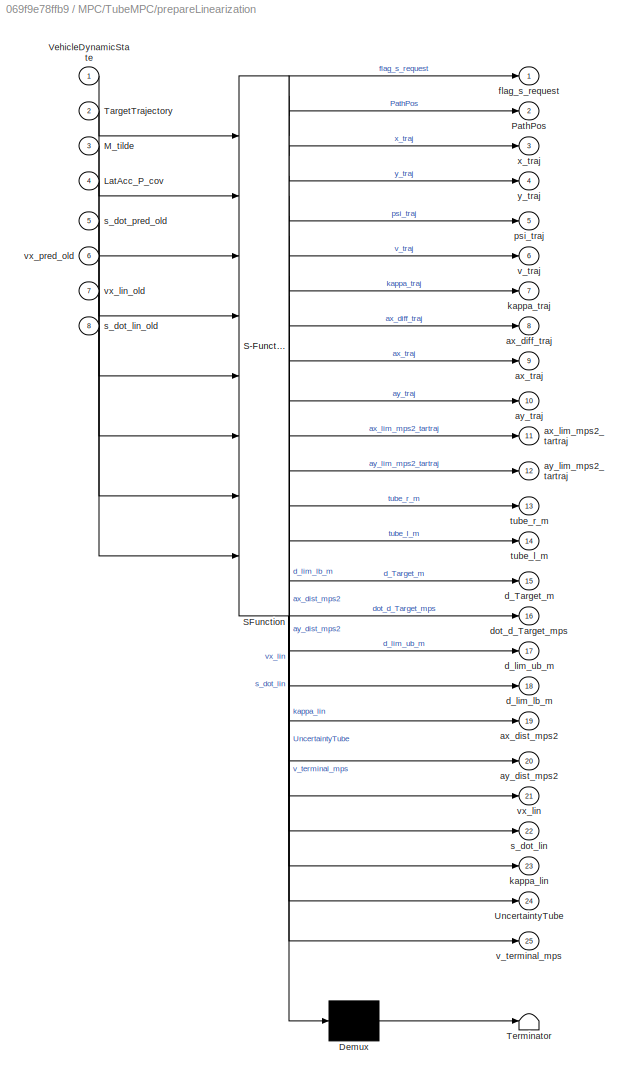
BLOCK [SubSystem] MPC/TubeMPC/prepareLinearization
  ErrorFcn = Stateflow.Translate.translate
  PermitHierarchicalResolution = ExplicitOnly
  Ports = [8, 25]
  RequestExecContextInheritance = off
  SFBlockType = MATLAB Function
  TreatAsAtomicUnit = on
BLOCK [Demux] MPC/TubeMPC/prepareLinearization/ Demux 
  Outputs = 1
  Ports = [1, 1]
BLOCK [S-Function] MPC/TubeMPC/prepareLinearization/ SFunction 
  EnableBusSupport = on
  FunctionName = sf_sfun
  Parameters = P_VDC_ControlMargin_ax_mps2,P_VDC_ControlMargin_ay_mps2,P_VDC_IncreaseUncertaintyPerStep_perc,P_VDC_MinVelSlipCalc_mps,P_VDC_RTISQP_alpha_old,P_VDC_RTISQP_alpha_target,P_VDC_TerminalSetBrakeTime_s,P_VDC_TuneTerminalSet_mps,P_VDC_VirtualController,acc_control_learning,drag_coefficient,roh_air,sys,vehiclemass_kg
  PortCounts = [8 26]
  Ports = [8, 26]
  SFcnIsStateOwnerBlock = off
  SFunctionDeploymentMode = off
  Tag = Stateflow S-Function mvdc_mpc 4
BLOCK [Terminator] MPC/TubeMPC/prepareLinearization/ Terminator 
BLOCK [Inport] MPC/TubeMPC/prepareLinearization/LatAcc_P_cov
  IconDisplay = Port number
  Port = 4
BLOCK [Inport] MPC/TubeMPC/prepareLinearization/M_tilde
  IconDisplay = Port number
  Port = 3
BLOCK [Outport] MPC/TubeMPC/prepareLinearization/PathPos
  IconDisplay = Port number
  Port = 2
BLOCK [Inport] MPC/TubeMPC/prepareLinearization/TargetTrajectory
  IconDisplay = Port number
  Port = 2
BLOCK [Outport] MPC/TubeMPC/prepareLinearization/UncertaintyTube
  IconDisplay = Port number
  Port = 24
BLOCK [Inport] MPC/TubeMPC/prepareLinearization/VehicleDynamicState
  IconDisplay = Port number
BLOCK [Outport] MPC/TubeMPC/prepareLinearization/ax_diff_traj
  IconDisplay = Port number
  Port = 8
BLOCK [Outport] MPC/TubeMPC/prepareLinearization/ax_dist_mps2
  IconDisplay = Port number
  Port = 19
BLOCK [Outport] MPC/TubeMPC/prepareLinearization/ax_lim_mps2_tartraj
  IconDisplay = Port number
  Port = 11
BLOCK [Outport] MPC/TubeMPC/prepareLinearization/ax_traj
  IconDisplay = Port number
  Port = 9
BLOCK [Outport] MPC/TubeMPC/prepareLinearization/ay_dist_mps2
  IconDisplay = Port number
  Port = 20
BLOCK [Outport] MPC/TubeMPC/prepareLinearization/ay_lim_mps2_tartraj
  IconDisplay = Port number
  Port = 12
BLOCK [Outport] MPC/TubeMPC/prepareLinearization/ay_traj
  IconDisplay = Port number
  Port = 10
BLOCK [Outport] MPC/TubeMPC/prepareLinearization/d_Target_m
  IconDisplay = Port number
  Port = 15
BLOCK [Outport] MPC/TubeMPC/prepareLinearization/d_lim_lb_m
  IconDisplay = Port number
  Port = 18
BLOCK [Outport] MPC/TubeMPC/prepareLinearization/d_lim_ub_m
  IconDisplay = Port number
  Port = 17
BLOCK [Outport] MPC/TubeMPC/prepareLinearization/dot_d_Target_mps
  IconDisplay = Port number
  Port = 16
BLOCK [Outport] MPC/TubeMPC/prepareLinearization/flag_s_request
  IconDisplay = Port number
BLOCK [Outport] MPC/TubeMPC/prepareLinearization/kappa_lin
  IconDisplay = Port number
  Port = 23
BLOCK [Outport] MPC/TubeMPC/prepareLinearization/kappa_traj
  IconDisplay = Port number
  Port = 7
BLOCK [Outport] MPC/TubeMPC/prepareLinearization/psi_traj
  IconDisplay = Port number
  Port = 5
BLOCK [Outport] MPC/TubeMPC/prepareLinearization/s_dot_lin
  IconDisplay = Port number
  Port = 22
BLOCK [Inport] MPC/TubeMPC/prepareLinearization/s_dot_lin_old
  IconDisplay = Port number
  Port = 8
BLOCK [Inport] MPC/TubeMPC/prepareLinearization/s_dot_pred_old
  IconDisplay = Port number
  Port = 5
BLOCK [Outport] MPC/TubeMPC/prepareLinearization/tube_l_m
  IconDisplay = Port number
  Port = 14
BLOCK [Outport] MPC/TubeMPC/prepareLinearization/tube_r_m
  IconDisplay = Port number
  Port = 13
BLOCK [Outport] MPC/TubeMPC/prepareLinearization/v_terminal_mps
  IconDisplay = Port number
  Port = 25
BLOCK [Outport] MPC/TubeMPC/prepareLinearization/v_traj
  IconDisplay = Port number
  Port = 6
BLOCK [Outport] MPC/TubeMPC/prepareLinearization/vx_lin
  IconDisplay = Port number
  Port = 21
BLOCK [Inport] MPC/TubeMPC/prepareLinearization/vx_lin_old
  IconDisplay = Port number
  Port = 7
BLOCK [Inport] MPC/TubeMPC/prepareLinearization/vx_pred_old
  IconDisplay = Port number
  Port = 6
BLOCK [Outport] MPC/TubeMPC/prepareLinearization/x_traj
  IconDisplay = Port number
  Port = 3
BLOCK [Outport] MPC/TubeMPC/prepareLinearization/y_traj
  IconDisplay = Port number
  Port = 4
BLOCK [SubSystem] MPC/TubeMPC/prepareOptimizationProblem
  ErrorFcn = Stateflow.Translate.translate
  PermitHierarchicalResolution = ExplicitOnly
  Ports = [20, 8]
  RequestExecContextInheritance = off
  SFBlockType = MATLAB Function
  TreatAsAtomicUnit = on
BLOCK [Demux] MPC/TubeMPC/prepareOptimizationProblem/ Demux 
  Outputs = 1
  Ports = [1, 1]
BLOCK [S-Function] MPC/TubeMPC/prepareOptimizationProblem/ SFunction 
  EnableBusSupport = on
  FunctionName = sf_sfun
  Parameters = P_VDC_EnableNumLatErrorDer_b,P_VDC_MaxTightening,P_VDC_MinVelSlipCalc_mps,P_VDC_PositiveAxLimScale,P_VDC_VirtualController,drag_coefficient,roh_air,sys,vehiclemass_kg
  PortCounts = [20 9]
  Ports = [20, 9]
  SFcnIsStateOwnerBlock = off
  SFunctionDeploymentMode = off
  Tag = Stateflow S-Function mvdc_mpc 2
BLOCK [Terminator] MPC/TubeMPC/prepareOptimizationProblem/ Terminator 
BLOCK [Outport] MPC/TubeMPC/prepareOptimizationProblem/A_x
  IconDisplay = Port number
  Port = 4
BLOCK [Inport] MPC/TubeMPC/prepareOptimizationProblem/PathPos
  IconDisplay = Port number
  Port = 3
BLOCK [Inport] MPC/TubeMPC/prepareOptimizationProblem/UncertaintyTube
  IconDisplay = Port number
  Port = 16
BLOCK [Inport] MPC/TubeMPC/prepareOptimizationProblem/VehicleDynamicState
  IconDisplay = Port number
BLOCK [Inport] MPC/TubeMPC/prepareOptimizationProblem/ax_diff_traj
  IconDisplay = Port number
  Port = 5
BLOCK [Inport] MPC/TubeMPC/prepareOptimizationProblem/ax_lim_mps2
  IconDisplay = Port number
  Port = 8
BLOCK [Inport] MPC/TubeMPC/prepareOptimizationProblem/ax_traj
  IconDisplay = Port number
  Port = 6
BLOCK [Inport] MPC/TubeMPC/prepareOptimizationProblem/ax_traj_old
  IconDisplay = Port number
  Port = 18
BLOCK [Inport] MPC/TubeMPC/prepareOptimizationProblem/ay_lim_mps2
  IconDisplay = Port number
  Port = 9
BLOCK [Inport] MPC/TubeMPC/prepareOptimizationProblem/ay_traj
  IconDisplay = Port number
  Port = 7
BLOCK [Inport] MPC/TubeMPC/prepareOptimizationProblem/ay_traj_old
  IconDisplay = Port number
  Port = 19
BLOCK [Outport] MPC/TubeMPC/prepareOptimizationProblem/be_l_abs
  IconDisplay = Port number
  Port = 6
BLOCK [Outport] MPC/TubeMPC/prepareOptimizationProblem/be_u_abs
  IconDisplay = Port number
  Port = 5
BLOCK [Inport] MPC/TubeMPC/prepareOptimizationProblem/d_Target_m
  IconDisplay = Port number
  Port = 12
BLOCK [Inport] MPC/TubeMPC/prepareOptimizationProblem/dot_d_Target_mps
  IconDisplay = Port number
  Port = 13
BLOCK [Inport] MPC/TubeMPC/prepareOptimizationProblem/dot_d_numerical
  IconDisplay = Port number
  Port = 2
BLOCK [Outport] MPC/TubeMPC/prepareOptimizationProblem/error_state
  IconDisplay = Port number
  Port = 8
BLOCK [Outport] MPC/TubeMPC/prepareOptimizationProblem/f
  IconDisplay = Port number
BLOCK [Inport] MPC/TubeMPC/prepareOptimizationProblem/kappa_lin
  IconDisplay = Port number
  Port = 15
BLOCK [Outport] MPC/TubeMPC/prepareOptimizationProblem/lb
  IconDisplay = Port number
  Port = 2
BLOCK [Outport] MPC/TubeMPC/prepareOptimizationProblem/s_current_m
  IconDisplay = Port number
  Port = 7
BLOCK [Inport] MPC/TubeMPC/prepareOptimizationProblem/solution_old
  IconDisplay = Port number
  Port = 20
BLOCK [Inport] MPC/TubeMPC/prepareOptimizationProblem/tube_l_m
  IconDisplay = Port number
  Port = 11
BLOCK [Inport] MPC/TubeMPC/prepareOptimizationProblem/tube_r_m
  IconDisplay = Port number
  Port = 10
BLOCK [Outport] MPC/TubeMPC/prepareOptimizationProblem/ub
  IconDisplay = Port number
  Port = 3
BLOCK [Inport] MPC/TubeMPC/prepareOptimizationProblem/v_terminal_mps
  IconDisplay = Port number
  Port = 17
BLOCK [Inport] MPC/TubeMPC/prepareOptimizationProblem/v_traj
  IconDisplay = Port number
  Port = 4
BLOCK [Inport] MPC/TubeMPC/prepareOptimizationProblem/vx_lin
  IconDisplay = Port number
  Port = 14
BLOCK [Outport] MPC/TubeMPC/solver_details
  IconDisplay = Port number
  Port = 3
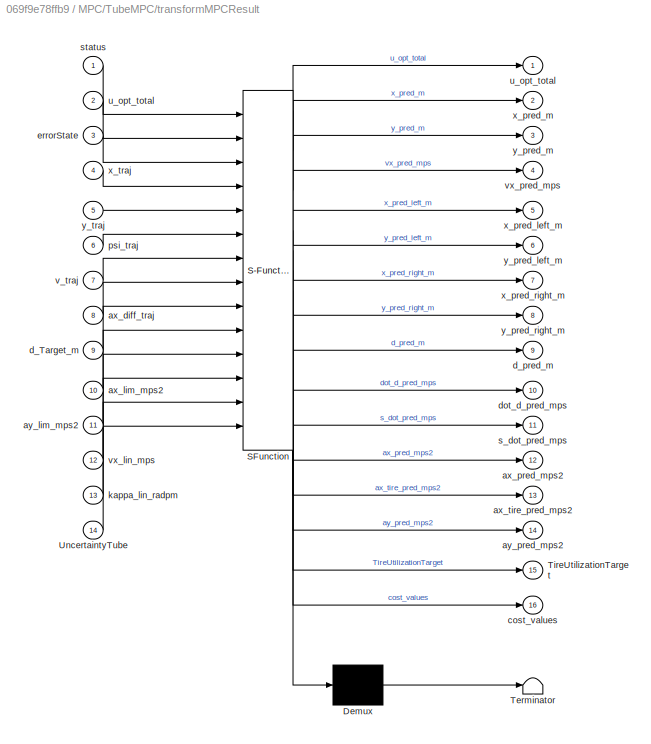
BLOCK [SubSystem] MPC/TubeMPC/transformMPCResult
  ErrorFcn = Stateflow.Translate.translate
  PermitHierarchicalResolution = ExplicitOnly
  Ports = [14, 16]
  RequestExecContextInheritance = off
  SFBlockType = MATLAB Function
  TreatAsAtomicUnit = on
BLOCK [Demux] MPC/TubeMPC/transformMPCResult/ Demux 
  Outputs = 1
  Ports = [1, 1]
BLOCK [S-Function] MPC/TubeMPC/transformMPCResult/ SFunction 
  EnableBusSupport = on
  FunctionName = sf_sfun
  Parameters = P_VDC_PositiveAxLimScale,drag_coefficient,roh_air,sys,vehiclemass_kg
  PortCounts = [14 17]
  Ports = [14, 17]
  SFcnIsStateOwnerBlock = off
  SFunctionDeploymentMode = off
  Tag = Stateflow S-Function mvdc_mpc 1
BLOCK [Terminator] MPC/TubeMPC/transformMPCResult/ Terminator 
BLOCK [Outport] MPC/TubeMPC/transformMPCResult/TireUtilizationTarget
  IconDisplay = Port number
  Port = 15
BLOCK [Inport] MPC/TubeMPC/transformMPCResult/UncertaintyTube
  IconDisplay = Port number
  Port = 14
BLOCK [Inport] MPC/TubeMPC/transformMPCResult/ax_diff_traj
  IconDisplay = Port number
  Port = 8
BLOCK [Inport] MPC/TubeMPC/transformMPCResult/ax_lim_mps2
  IconDisplay = Port number
  Port = 10
BLOCK [Outport] MPC/TubeMPC/transformMPCResult/ax_pred_mps2
  IconDisplay = Port number
  Port = 12
BLOCK [Outport] MPC/TubeMPC/transformMPCResult/ax_tire_pred_mps2
  IconDisplay = Port number
  Port = 13
BLOCK [Inport] MPC/TubeMPC/transformMPCResult/ay_lim_mps2
  IconDisplay = Port number
  Port = 11
BLOCK [Outport] MPC/TubeMPC/transformMPCResult/ay_pred_mps2
  IconDisplay = Port number
  Port = 14
BLOCK [Outport] MPC/TubeMPC/transformMPCResult/cost_values
  IconDisplay = Port number
  Port = 16
BLOCK [Inport] MPC/TubeMPC/transformMPCResult/d_Target_m
  IconDisplay = Port number
  Port = 9
BLOCK [Outport] MPC/TubeMPC/transformMPCResult/d_pred_m
  IconDisplay = Port number
  Port = 9
BLOCK [Outport] MPC/TubeMPC/transformMPCResult/dot_d_pred_mps
  IconDisplay = Port number
  Port = 10
BLOCK [Inport] MPC/TubeMPC/transformMPCResult/errorState
  IconDisplay = Port number
  Port = 3
BLOCK [Inport] MPC/TubeMPC/transformMPCResult/kappa_lin_radpm
  IconDisplay = Port number
  Port = 13
BLOCK [Inport] MPC/TubeMPC/transformMPCResult/psi_traj
  IconDisplay = Port number
  Port = 6
BLOCK [Outport] MPC/TubeMPC/transformMPCResult/s_dot_pred_mps
  IconDisplay = Port number
  Port = 11
BLOCK [Inport] MPC/TubeMPC/transformMPCResult/status
  IconDisplay = Port number
BLOCK [Outport] MPC/TubeMPC/transformMPCResult/u_opt_total
  IconDisplay = Port number
BLOCK [Inport] MPC/TubeMPC/transformMPCResult/u_opt_total 
  IconDisplay = Port number
  Port = 2
BLOCK [Inport] MPC/TubeMPC/transformMPCResult/v_traj
  IconDisplay = Port number
  Port = 7
BLOCK [Inport] MPC/TubeMPC/transformMPCResult/vx_lin_mps
  IconDisplay = Port number
  Port = 12
BLOCK [Outport] MPC/TubeMPC/transformMPCResult/vx_pred_mps
  IconDisplay = Port number
  Port = 4
BLOCK [Outport] MPC/TubeMPC/transformMPCResult/x_pred_left_m
  IconDisplay = Port number
  Port = 5
BLOCK [Outport] MPC/TubeMPC/transformMPCResult/x_pred_m
  IconDisplay = Port number
  Port = 2
BLOCK [Outport] MPC/TubeMPC/transformMPCResult/x_pred_right_m
  IconDisplay = Port number
  Port = 7
BLOCK [Inport] MPC/TubeMPC/transformMPCResult/x_traj
  IconDisplay = Port number
  Port = 4
BLOCK [Outport] MPC/TubeMPC/transformMPCResult/y_pred_left_m
  IconDisplay = Port number
  Port = 6
BLOCK [Outport] MPC/TubeMPC/transformMPCResult/y_pred_m
  IconDisplay = Port number
  Port = 3
BLOCK [Outport] MPC/TubeMPC/transformMPCResult/y_pred_right_m
  IconDisplay = Port number
  Port = 8
BLOCK [Inport] MPC/TubeMPC/transformMPCResult/y_traj
  IconDisplay = Port number
  Port = 5
BLOCK [Inport] MPC/VehicleDynamicState
  IconDisplay = Port number
  OutDataTypeStr = Bus: VehicleDynamicState
  Port = 2
BLOCK [SubSystem] MPC/VehicleReadyForTMPC
  Ports = [3, 2]
  RequestExecContextInheritance = off
BLOCK [BusSelector] MPC/VehicleReadyForTMPC/Bus Selector2
  OutputAsBus = off
  OutputSignals = SE_Status
  Ports = [1, 1]
BLOCK [BusSelector] MPC/VehicleReadyForTMPC/Bus Selector3
  OutputAsBus = off
  OutputSignals = TrajCnt
  Ports = [1, 1]
BLOCK [Reference] MPC/VehicleReadyForTMPC/Compare To Constant1  REF=simulink/Logic and Bit
Operations/Compare
To Constant
  Ports = [1, 1]
  SourceBlock = simulink/Logic and Bit\nOperations/Compare\nTo Constant
  SourceProductBaseCode = SL
  SourceProductName = Simulink
  SourceType = Compare To Constant
BLOCK [Reference] MPC/VehicleReadyForTMPC/Compare To Constant2  REF=simulink/Logic and Bit
Operations/Compare
To Constant
  Ports = [1, 1]
  SourceBlock = simulink/Logic and Bit\nOperations/Compare\nTo Constant
  SourceProductBaseCode = SL
  SourceProductName = Simulink
  SourceType = Compare To Constant
BLOCK [Constant] MPC/VehicleReadyForTMPC/Constant
  Value = P_VDC_EnableTubeMPC
BLOCK [Inport] MPC/VehicleReadyForTMPC/EnableDrivingController
  IconDisplay = Port number
  OutDataTypeStr = boolean
  Port = 3
  SampleTime = tS
BLOCK [Logic] MPC/VehicleReadyForTMPC/Logical Operator
  AllPortsSameDT = off
  Inputs = 3
  OutDataTypeStr = boolean
  Ports = [3, 1]
BLOCK [Logic] MPC/VehicleReadyForTMPC/Logical Operator1
  AllPortsSameDT = off
  OutDataTypeStr = boolean
  Ports = [2, 1]
BLOCK [Outport] MPC/VehicleReadyForTMPC/StartTMPC
  IconDisplay = Port number
  Port = 2
BLOCK [Inport] MPC/VehicleReadyForTMPC/TargetTrajectory
  IconDisplay = Port number
  Port = 2
BLOCK [Inport] MPC/VehicleReadyForTMPC/VehicleDynamicState
  IconDisplay = Port number
BLOCK [Outport] MPC/VehicleReadyForTMPC/VehicleReadyForTMPC
  IconDisplay = Port number
BLOCK [Outport] MPC/ax_control
  IconDisplay = Port number
BLOCK [Outport] MPC/ay_control
  IconDisplay = Port number
  Port = 2
BLOCK [Outport] MPC/mvdc_tube_mpc_debug
  IconDisplay = Port number
  OutDataTypeStr = Bus: mvdc_tube_mpc_debug
  Port = 4
BLOCK [Memory] Memory
BLOCK [Outport] RequestLongForce_N
  IconDisplay = Port number
  Port = 2
  SampleTime = tS
BLOCK [Outport] RequestSteeringAngle_rad
  IconDisplay = Port number
  SampleTime = tS
BLOCK [Inport] TargetTrajectory
  BusOutputAsStruct = on
  IconDisplay = Port number
  OutDataTypeStr = Bus: Trajectory
  Port = 2
  SampleTime = tS
BLOCK [Terminator] Terminator2
BLOCK [Outport] TubeMPCStatus
  IconDisplay = Port number
  OutDataTypeStr = Enum: TUMHealthStatus
  Port = 3
  SampleTime = tS
BLOCK [SubSystem] UpdateDynamicConstraints
  Ports = [3, 1]
  RequestExecContextInheritance = off
BLOCK [Inport] UpdateDynamicConstraints/ActuatorLimitations
  BusOutputAsStruct = on
  IconDisplay = Port number
  OutDataTypeStr = Bus: ActuatorLimitations
  Port = 3
BLOCK [BusAssignment] UpdateDynamicConstraints/Bus Assignment
  AssignedSignals = ax_lim_mps2,ay_lim_mps2
  Ports = [3, 1]
BLOCK [BusSelector] UpdateDynamicConstraints/Bus Selector
  OutputAsBus = off
  OutputSignals = SteeringAngleMax_rad
  Ports = [1, 1]
BLOCK [BusSelector] UpdateDynamicConstraints/Bus Selector1
  OutputAsBus = off
  OutputSignals = v_mps
  Ports = [1, 1]
BLOCK [BusSelector] UpdateDynamicConstraints/Bus Selector2
  OutputAsBus = off
  OutputSignals = ay_lim_mps2
  Ports = [1, 1]
BLOCK [BusSelector] UpdateDynamicConstraints/Bus Selector3
  OutputAsBus = off
  OutputSignals = ax_lim_mps2
  Ports = [1, 1]
BLOCK [Constant] UpdateDynamicConstraints/Constant
  Value = P_VDC_MinVelSlipCalc_mps
BLOCK [Gain] UpdateDynamicConstraints/Gain
  Gain = 1/(l_front_m+l_rear_m)
  OutDataTypeStr = Inherit: Inherit via internal rule
  ParamDataTypeStr = Inherit: Inherit via internal rule
  SaturateOnIntegerOverflow = off
BLOCK [Gain] UpdateDynamicConstraints/Gain1
  Gain = 1/3
  OutDataTypeStr = Inherit: Inherit via internal rule
  ParamDataTypeStr = Inherit: Inherit via internal rule
  SaturateOnIntegerOverflow = off
BLOCK [MinMax] UpdateDynamicConstraints/Min
  InputSameDT = off
  Inputs = 2
  Ports = [2, 1]
  SaturateOnIntegerOverflow = off
BLOCK [MinMax] UpdateDynamicConstraints/Min1
  Function = max
  InputSameDT = off
  Inputs = 2
  Ports = [2, 1]
  SaturateOnIntegerOverflow = off
BLOCK [Product] UpdateDynamicConstraints/Multiply
  InputSameDT = off
  OutDataTypeStr = Inherit: Inherit via internal rule
  Ports = [2, 1]
  RndMeth = Floor
  SaturateOnIntegerOverflow = off
BLOCK [Math] UpdateDynamicConstraints/Square
  Operator = square
  Ports = [1, 1]
BLOCK [Switch] UpdateDynamicConstraints/Switch
  Criteria = u2 > Threshold
  InputSameDT = off
  SaturateOnIntegerOverflow = off
  Threshold = P_VDC_MinVelSlipCalc_mps
BLOCK [Inport] UpdateDynamicConstraints/TargetTarjectory
  IconDisplay = Port number
  Port = 2
BLOCK [Outport] UpdateDynamicConstraints/TargetTrajectory_upd
  IconDisplay = Port number
BLOCK [Inport] UpdateDynamicConstraints/VehicleDynamicState
  IconDisplay = Port number
  OutDataTypeStr = Bus: VehicleDynamicState
  SampleTime = tS
BLOCK [Inport] VehicleDynamicState
  IconDisplay = Port number
  OutDataTypeStr = Bus: VehicleDynamicState
  Port = 3
  SampleTime = tS
BLOCK [SubSystem] debug
  Ports = [3, 2]
  RequestExecContextInheritance = off
BLOCK [BusAssignment] debug/Bus Assignment
  AssignedSignals = LongAcc_FFweights,LatAcc_FFweights,LatAcc_mean_debug,LatAcc_cov_debug
  Ports = [5, 1]
BLOCK [BusCreator] debug/Bus Creator
  DisplayOption = bar
  InheritFromInputs = on
  Inputs = 39
  Ports = [39, 1]
BLOCK [BusSelector] debug/Bus Selector
  OutputAsBus = off
  OutputSignals = LatAcc_bank_mps2,LatAcc_FB_Dist_rad,LatAcc_FB_ay_rad,LatAcc_FB_Delta_rad,LatAcc_FFss_rad,LatAcc_FFdyn_rad,LatAcc_Control_rad,LatAcc_Target_mps2,LatAcc_VirtualAccTarget_mps2,LatAcc_VirtualSteeringTarget_rad,LatAcc_FFLearned_rad,LatAcc_DiffToNeutralSteer_rad,LatAcc_FBStabilizer_rad
  Ports = [1, 13]
BLOCK [BusSelector] debug/Bus Selector1
  OutputAsBus = off
  OutputSignals = LongAcc_FB_N,LongAcc_FFax_N,LongAcc_FFdist_N,LongAcc_Control_N,LongAcc_Target_mps2,LongAcc_TargetFF_mps2,LongAcc_FFLearned_N
  Ports = [1, 7]
BLOCK [BusSelector] debug/Bus Selector2
  OutputAsBus = off
  OutputSignals = cost_values,solver_iteration,solver_state,solver_runTime_s,solver_pri_res,solver_dua_res,tmpc_cnt,TireUtilizationTarget,ax_LearnedBound_mps2,ax_DataCoverage_perc,ax_Uncertainty_mps2,ay_LearnedBound_mps2,ay_DataCoverage_perc,ay_Uncertainty_mps2,dot_d_analytical_mps,dot_d_numerical_mps
  Ports = [1, 16]
BLOCK [BusSelector] debug/Bus Selector3
  OutputAsBus = off
  OutputSignals = LatAcc_FFweights,LatAcc_mean_debug,LatAcc_cov_debug
  Ports = [1, 3]
BLOCK [BusSelector] debug/Bus Selector4
  OutputAsBus = off
  OutputSignals = LongAcc_FFweights
  Ports = [1, 1]
BLOCK [Demux] debug/Demux
  DisplayOption = bar
  Ports = [1, 4]
BLOCK [SignalConversion] debug/Signal Copy2
  OverrideOpt = off
BLOCK [SignalConversion] debug/Signal Copy3
  OverrideOpt = off
BLOCK [SignalConversion] debug/Signal Copy4
  OverrideOpt = off
BLOCK [SignalConversion] debug/Signal Copy5
  OverrideOpt = off
BLOCK [Inport] debug/debug_lateral
  IconDisplay = Port number
BLOCK [Inport] debug/debug_longitudinal
  IconDisplay = Port number
  Port = 2
BLOCK [Inport] debug/debug_tmpc
  IconDisplay = Port number
  Port = 3
BLOCK [Outport] debug/mvdc_tmpc_fast_debug
  IconDisplay = Port number
BLOCK [Outport] debug/mvdc_tube_mpc_debug
  IconDisplay = Port number
  OutDataTypeStr = Bus: mvdc_tube_mpc_debug
  Port = 2
  SampleTime = tS
BLOCK [Outport] mvdc_tmpc_fast_debug
  IconDisplay = Port number
  OutDataTypeStr = Bus: mvdc_tmpc_fast_debug
  Port = 5
  SampleTime = tS
BLOCK [Outport] mvdc_tube_mpc_debug
  IconDisplay = Port number
  OutDataTypeStr = Bus: mvdc_tube_mpc_debug
  Port = 4
  SampleTime = tS
ANNOTATION (root): Author: Alexander Wischnewski (<email>) Chair of Automatic Control at TU Munich Description: Inputs: VehicleDynamicState Fused vehicle state vector ( position, velocities, accelerations, etc.) EnableDrivingController Vehicle motion controller is active from state machine TargetTrajectory Current target trajectory set by the trajectory planner EnableEmergency Emergency braking is activated from sta...<+286ch>
ANNOTATION AccelerationControllers: These controllers add small correction signal to the requested steering angle and longitudinal force to counteract small uncertainties in the request characteristics. They do not interfer with the constraint satisfaction generated by the TMPC controller as it is assumed that the measured accelerations are correct and therefore the controller only compensates errors in the request characteristic.
ANNOTATION AccelerationControllers/LateralController: used to disable throttle in case stabilizer kicks in
ANNOTATION AccelerationControllers/LateralController/Feedback: The yaw rate added during the dynamic feedforward to compensate for the required changes in side slip angle is removed from this controller to prevent them working against each other.
ANNOTATION AccelerationControllers/LateralController/Feedback: This speed dependent gain helps to maintain stability very high speeds. It ensures that the steering to acceleration gain remains roughly constant.
ANNOTATION AccelerationControllers/LateralController/Feedback: disable all feedback action in case lateral acceleration is not valid anymore. This is required since the controller tuning might be invalid otherwise.
ANNOTATION AccelerationControllers/LateralController/Feedback: only activate stabilizing feedback above certain slip angle thresholds where vehicle is skidding side-ways
ANNOTATION AccelerationControllers/LateralController/Feedback: this function should be replaced with a more reliable solution
ANNOTATION AccelerationControllers/LateralController/Feedforward_InverseModel: The learned part and the neutral steer part have their own inverse models to enable proper separation of the generated signals for debug purposes.
ANNOTATION AccelerationControllers/LateralController/Feedforward_InverseModel: This subsystem calculates an exact inverse to the assumed behavior of the steering actuator. The resulting signal might be very aggressive so it is smoothed. It is operated at the sampling rate of the MPC controller to match its assumptions.
ANNOTATION AccelerationControllers/LateralController/Feedforward_InverseModel: feedforward based on estimated change rate of the side slip angle. Estimation is done via the steady-state relation between lateral acceleration and side slip angle: side slip angle = P_VDC_LatAcc_BetaGain*LatAcc Using the derivative of the curvature its possible to estimate the change rate of the side slip angle. Using inverse of the relation yaw rate = SteeringWheelAngle/Wheelbase * Velocity we ...<+81ch>
ANNOTATION AccelerationControllers/LateralController/Feedforward_InverseModel/Subsystem1: Model Inversion
ANNOTATION AccelerationControllers/LateralController/Feedforward_InverseModel/Subsystem1: Steering Actuator Forward Simulation
ANNOTATION AccelerationControllers/LateralController/Feedforward_InverseModel/Subsystem2: Model Inversion
ANNOTATION AccelerationControllers/LateralController/Feedforward_InverseModel/Subsystem2: Steering Actuator Forward Simulation
ANNOTATION AccelerationControllers/LateralController/Feedforward_InverseModel/Subsystem3: Model Inversion
ANNOTATION AccelerationControllers/LateralController/Feedforward_InverseModel/Subsystem3: Steering Actuator Forward Simulation
ANNOTATION AccelerationControllers/LateralController/Feedforward_Learning: evaluates the radial basis functions centered at bf_vx_mps and bf_ay_req_mps2
ANNOTATION AccelerationControllers/LateralController/Feedforward_Learning: only learn corrective actions of the controller. Low-pass is used to compensate time-delay between corrective steering actions and acceleration response.
ANNOTATION AccelerationControllers/LateralController/Feedforward_Learning: only update if speed is high enough
ANNOTATION AccelerationControllers/LongitudinalController: disable feedback when IMU data is not valid
ANNOTATION AccelerationControllers/LongitudinalController/Feedforward_Learning: sum of force requests which lead to a measurable acceleration
ANNOTATION AccelerationControllers/LongitudinalController/Feedforward_Learning: This update rule is implemented based on the LMS estimator update rule.
ANNOTATION AccelerationControllers/LongitudinalController/Feedforward_Learning: calculates the difference between the requested force and the measured force estimated from the current acceleration --> we only estimate an error model
ANNOTATION AccelerationControllers/LongitudinalController/Feedforward_Learning: only update if speed is high enough
ANNOTATION AccelerationControllers/LongitudinalController/Feedforward_LongAcc: The upper path uses an exponentially weighted look-ahead of the acceleration calculated by the TMPC to generate appropriate feedforward commands and deal with actuator delay and neglected vehicle dynamics. The lower path uses only the current value.
ANNOTATION MPC/DelayCompensation: This subsystem predicts the current vehicle state over one sample time. With this, the obtained control output matches the time when the calculation is done and not when its started.
ANNOTATION MPC/DisturbanceEstimation: select first element of prediction vector as it reflects the target acceleration
ANNOTATION MPC/DisturbanceEstimation/UncertaintyModelLearning_ax: only consider absolute value as TMPC can only consider equal uncertainty for positive and negative values.
ANNOTATION MPC/DisturbanceEstimation/UncertaintyModelLearning_ax: start learning after the buffer has been fully updated
ANNOTATION MPC/DisturbanceEstimation/UncertaintyModelLearning_ay: only consider absolute value as TMPC can only consider equal uncertainty for positive and negative values.
ANNOTATION MPC/DisturbanceEstimation/UncertaintyModelLearning_ay: start learning after the buffer has been fully updated
ANNOTATION MPC/TubeMPC: Checks if the solver terminated correctly. Otherwise label trajectory as invalid.
ANNOTATION MPC/TubeMPC/Subsystem: parse solver status 1 --> osqp_solved --> alright 2 --> osqp_max_iter_reached --> we use iterations to limit execution time, therefore also alright -1 --> osqp_solved_inaccurate --> also alright to tolerate not so good solutions
ANNOTATION MPC/VehicleReadyForTMPC: TMPC calculations are allowed once - The state estimation is valid - The target trajectory is valid
ANNOTATION UpdateDynamicConstraints: calculates the maximum possible lateral acceleration at low speeds and checks whether the steering angle limits the achievable lateral acceleration.
ANNOTATION UpdateDynamicConstraints: reduce the max. long acceleration at standstill to prevent excessive wheelspin at the start.
ANNOTATION debug: the tmpc_cnt enables sync between different logging rates
LINE AccelerationControllers/ActualTrajectoryPoint:1 -> AccelerationControllers/LateralController:3
LINE AccelerationControllers/ActualVehicleControl:1 -> AccelerationControllers/Terminator:1
LINE AccelerationControllers/LateralController/Abs:1 -> AccelerationControllers/LateralController/Compare To Constant:1
NET AccelerationControllers/LateralController/ActualTrajectoryPoint:1 -> AccelerationControllers/LateralController/Bus Selector:1, AccelerationControllers/LateralController/Feedforward_InverseModel:5
LINE AccelerationControllers/LateralController/Add1:1 -> AccelerationControllers/LateralController/Unit Delay1:1
NET AccelerationControllers/LateralController/Add:1 -> AccelerationControllers/LateralController/Bus Creator:11, AccelerationControllers/LateralController/RequestSteeringAngle_rad:1
LINE AccelerationControllers/LateralController/Bus Creator:1 -> AccelerationControllers/LateralController/debug:1
NET AccelerationControllers/LateralController/Bus Selector1:1 -> AccelerationControllers/LateralController/Feedback:1, AccelerationControllers/LateralController/Feedforward_InverseModel:1
LINE AccelerationControllers/LateralController/Bus Selector1:2 -> AccelerationControllers/LateralController/Feedback:2
LINE AccelerationControllers/LateralController/Bus Selector1:3 -> AccelerationControllers/LateralController/Feedback:3
LINE AccelerationControllers/LateralController/Bus Selector1:4 -> AccelerationControllers/LateralController/Feedback:4
LINE AccelerationControllers/LateralController/Bus Selector1:5 -> AccelerationControllers/LateralController/Feedback:5
NET AccelerationControllers/LateralController/Bus Selector1:6 -> AccelerationControllers/LateralController/Feedback:6, AccelerationControllers/LateralController/Feedforward_Learning:2
NET AccelerationControllers/LateralController/Bus Selector1:7 -> AccelerationControllers/LateralController/Feedback:7, AccelerationControllers/LateralController/Feedforward_InverseModel:3, AccelerationControllers/LateralController/Feedforward_Learning:1
LINE AccelerationControllers/LateralController/Bus Selector:1 -> AccelerationControllers/LateralController/Feedback:8
LINE AccelerationControllers/LateralController/Compare To Constant:1 -> AccelerationControllers/LateralController/StabilizerActive:1
LINE AccelerationControllers/LateralController/Constant:1 -> AccelerationControllers/LateralController/Bus Creator:8
LINE AccelerationControllers/LateralController/Feedback/Abs2:1 -> AccelerationControllers/LateralController/Feedback/Compare To Constant1:1
LINE AccelerationControllers/LateralController/Feedback/Abs:1 -> AccelerationControllers/LateralController/Feedback/Max1:2
LINE AccelerationControllers/LateralController/Feedback/Compare To Constant1:1 -> AccelerationControllers/LateralController/Feedback/Switch2:2
LINE AccelerationControllers/LateralController/Feedback/Compare To Constant2:1 -> AccelerationControllers/LateralController/Feedback/Discrete-Time Integrator:2
LINE AccelerationControllers/LateralController/Feedback/Constant10:1 -> AccelerationControllers/LateralController/Feedback/Switch8:3
LINE AccelerationControllers/LateralController/Feedback/Constant1:1 -> AccelerationControllers/LateralController/Feedback/Switch:2
LINE AccelerationControllers/LateralController/Feedback/Constant2:1 -> AccelerationControllers/LateralController/Feedback/Max:1
LINE AccelerationControllers/LateralController/Feedback/Constant3:1 -> AccelerationControllers/LateralController/Feedback/Math Function:2
LINE AccelerationControllers/LateralController/Feedback/Constant4:1 -> AccelerationControllers/LateralController/Feedback/Max1:1
LINE AccelerationControllers/LateralController/Feedback/Constant5:1 -> AccelerationControllers/LateralController/Feedback/Switch2:3
LINE AccelerationControllers/LateralController/Feedback/Constant6:1 -> AccelerationControllers/LateralController/Feedback/Switch3:3
LINE AccelerationControllers/LateralController/Feedback/Constant7:1 -> AccelerationControllers/LateralController/Feedback/Switch4:3
NET AccelerationControllers/LateralController/Feedback/Constant8:1 -> AccelerationControllers/LateralController/Feedback/Switch5:3, AccelerationControllers/LateralController/Feedback/Switch7:3
LINE AccelerationControllers/LateralController/Feedback/Constant9:1 -> AccelerationControllers/LateralController/Feedback/Switch6:3
LINE AccelerationControllers/LateralController/Feedback/Constant:1 -> AccelerationControllers/LateralController/Feedback/Switch1:3
LINE AccelerationControllers/LateralController/Feedback/DeltaWheel_rad:1 -> AccelerationControllers/LateralController/Feedback/Sum1:2
NET AccelerationControllers/LateralController/Feedback/Discrete-Time Integrator:1 -> AccelerationControllers/LateralController/Feedback/Divide2:1, AccelerationControllers/LateralController/Feedback/Divide:1
LINE AccelerationControllers/LateralController/Feedback/Divide1:1 -> AccelerationControllers/LateralController/Feedback/Switch6:1
LINE AccelerationControllers/LateralController/Feedback/Divide2:1 -> AccelerationControllers/LateralController/Feedback/Switch7:1
LINE AccelerationControllers/LateralController/Feedback/Divide:1 -> AccelerationControllers/LateralController/Feedback/Math Function:1
LINE AccelerationControllers/LateralController/Feedback/Gain1:1 -> AccelerationControllers/LateralController/Feedback/Switch1:1
LINE AccelerationControllers/LateralController/Feedback/Gain2:1 -> AccelerationControllers/LateralController/Feedback/Discrete-Time Integrator:1
LINE AccelerationControllers/LateralController/Feedback/Gain3:1 -> AccelerationControllers/LateralController/Feedback/Divide1:1
LINE AccelerationControllers/LateralController/Feedback/Gain4:1 -> AccelerationControllers/LateralController/Feedback/Divide:2
NET AccelerationControllers/LateralController/Feedback/Gain:1 -> AccelerationControllers/LateralController/Feedback/Abs2:1, AccelerationControllers/LateralController/Feedback/Saturation:1, AccelerationControllers/LateralController/Feedback/Sum4:1
LINE AccelerationControllers/LateralController/Feedback/LatAcc_Limit_mps2:1 -> AccelerationControllers/LateralController/Feedback/Abs:1
LINE AccelerationControllers/LateralController/Feedback/LatAcc_VirtualSteeringTarget_rad:1 -> AccelerationControllers/LateralController/Feedback/Sum1:1
LINE AccelerationControllers/LateralController/Feedback/LatAcc_VirtualTarget_mps2:1 -> AccelerationControllers/LateralController/Feedback/Sum2:1
LINE AccelerationControllers/LateralController/Feedback/Math Function:1 -> AccelerationControllers/LateralController/Feedback/Sum3:2
LINE AccelerationControllers/LateralController/Feedback/Max1:1 -> AccelerationControllers/LateralController/Feedback/Gain4:1
LINE AccelerationControllers/LateralController/Feedback/Max:1 -> AccelerationControllers/LateralController/Feedback/Square:1
LINE AccelerationControllers/LateralController/Feedback/Multiply:1 -> AccelerationControllers/LateralController/Feedback/Switch:1
LINE AccelerationControllers/LateralController/Feedback/Saturation:1 -> AccelerationControllers/LateralController/Feedback/Sum4:2
LINE AccelerationControllers/LateralController/Feedback/SideSlipCompensation_YawRate_radps:1 -> AccelerationControllers/LateralController/Feedback/Sum:2
NET AccelerationControllers/LateralController/Feedback/Square:1 -> AccelerationControllers/LateralController/Feedback/Divide1:2, AccelerationControllers/LateralController/Feedback/Divide2:2
LINE AccelerationControllers/LateralController/Feedback/Sum1:1 -> AccelerationControllers/LateralController/Feedback/Gain1:1
NET AccelerationControllers/LateralController/Feedback/Sum2:1 -> AccelerationControllers/LateralController/Feedback/Gain3:1, AccelerationControllers/LateralController/Feedback/Sum3:1
LINE AccelerationControllers/LateralController/Feedback/Sum3:1 -> AccelerationControllers/LateralController/Feedback/Switch8:1
LINE AccelerationControllers/LateralController/Feedback/Sum4:1 -> AccelerationControllers/LateralController/Feedback/Switch2:1
LINE AccelerationControllers/LateralController/Feedback/Sum5:1 -> AccelerationControllers/LateralController/Feedback/Gain:1
LINE AccelerationControllers/LateralController/Feedback/Sum:1 -> AccelerationControllers/LateralController/Feedback/Multiply:1
LINE AccelerationControllers/LateralController/Feedback/Switch1:1 -> AccelerationControllers/LateralController/Feedback/Switch4:1
LINE AccelerationControllers/LateralController/Feedback/Switch2:1 -> AccelerationControllers/LateralController/Feedback/Switch3:1
LINE AccelerationControllers/LateralController/Feedback/Switch3:1 -> AccelerationControllers/LateralController/Feedback/LatAcc_FBStabilizer_rad:1
LINE AccelerationControllers/LateralController/Feedback/Switch4:1 -> AccelerationControllers/LateralController/Feedback/LatAcc_FB_Delta_rad:1
LINE AccelerationControllers/LateralController/Feedback/Switch5:1 -> AccelerationControllers/LateralController/Feedback/LatAcc_FB_Dist_rad:1
LINE AccelerationControllers/LateralController/Feedback/Switch6:1 -> AccelerationControllers/LateralController/Feedback/LatAcc_FB_ay_rad:1
LINE AccelerationControllers/LateralController/Feedback/Switch7:1 -> AccelerationControllers/LateralController/Feedback/Switch5:1
LINE AccelerationControllers/LateralController/Feedback/Switch8:1 -> AccelerationControllers/LateralController/Feedback/Gain2:1
LINE AccelerationControllers/LateralController/Feedback/Switch:1 -> AccelerationControllers/LateralController/Feedback/Sum2:2
LINE AccelerationControllers/LateralController/Feedback/alphaRL_rad:1 -> AccelerationControllers/LateralController/Feedback/Sum5:1
LINE AccelerationControllers/LateralController/Feedback/alphaRR_rad:1 -> AccelerationControllers/LateralController/Feedback/Sum5:2
LINE AccelerationControllers/LateralController/Feedback/ay_mps2:1 -> AccelerationControllers/LateralController/Feedback/Switch:3
LINE AccelerationControllers/LateralController/Feedback/dPsi_radps:1 -> AccelerationControllers/LateralController/Feedback/Sum:1
NET AccelerationControllers/LateralController/Feedback/v_mps:1 -> AccelerationControllers/LateralController/Feedback/Compare To Constant2:1, AccelerationControllers/LateralController/Feedback/Max:2, AccelerationControllers/LateralController/Feedback/Multiply:2, AccelerationControllers/LateralController/Feedback/Switch1:2, AccelerationControllers/LateralController/Feedback/Switch7:2, AccelerationControllers/LateralController/Feedback/Switch8:2
NET AccelerationControllers/LateralController/Feedback/valid_IMU_b:1 -> AccelerationControllers/LateralController/Feedback/Switch3:2, AccelerationControllers/LateralController/Feedback/Switch4:2, AccelerationControllers/LateralController/Feedback/Switch5:2, AccelerationControllers/LateralController/Feedback/Switch6:2
NET AccelerationControllers/LateralController/Feedback:1 -> AccelerationControllers/LateralController/Abs:1, AccelerationControllers/LateralController/Add1:4, AccelerationControllers/LateralController/Add:7, AccelerationControllers/LateralController/Bus Creator:1
NET AccelerationControllers/LateralController/Feedback:2 -> AccelerationControllers/LateralController/Add1:3, AccelerationControllers/LateralController/Add:1, AccelerationControllers/LateralController/Bus Creator:2
NET AccelerationControllers/LateralController/Feedback:3 -> AccelerationControllers/LateralController/Add1:2, AccelerationControllers/LateralController/Add:2, AccelerationControllers/LateralController/Bus Creator:3
NET AccelerationControllers/LateralController/Feedback:4 -> AccelerationControllers/LateralController/Add1:1, AccelerationControllers/LateralController/Add:3, AccelerationControllers/LateralController/Bus Creator:4
LINE AccelerationControllers/LateralController/Feedforward_InverseModel/ActualTrajectoryPoint:1 -> AccelerationControllers/LateralController/Feedforward_InverseModel/Bus Selector:1
LINE AccelerationControllers/LateralController/Feedforward_InverseModel/Add:1 -> AccelerationControllers/LateralController/Feedforward_InverseModel/Subsystem1:1
LINE AccelerationControllers/LateralController/Feedforward_InverseModel/Bus Selector:1 -> AccelerationControllers/LateralController/Feedforward_InverseModel/Sin1:1
LINE AccelerationControllers/LateralController/Feedforward_InverseModel/Compare To Constant1:1 -> AccelerationControllers/LateralController/Feedforward_InverseModel/Logical Operator1:2
LINE AccelerationControllers/LateralController/Feedforward_InverseModel/Compare To Constant:1 -> AccelerationControllers/LateralController/Feedforward_InverseModel/Logical Operator:2
LINE AccelerationControllers/LateralController/Feedforward_InverseModel/Constant1:1 -> AccelerationControllers/LateralController/Feedforward_InverseModel/Logical Operator1:1
LINE AccelerationControllers/LateralController/Feedforward_InverseModel/Constant2:1 -> AccelerationControllers/LateralController/Feedforward_InverseModel/Logical Operator2:2
LINE AccelerationControllers/LateralController/Feedforward_InverseModel/Constant3:1 -> AccelerationControllers/LateralController/Feedforward_InverseModel/Sum4:1
LINE AccelerationControllers/LateralController/Feedforward_InverseModel/Constant4:1 -> AccelerationControllers/LateralController/Feedforward_InverseModel/Switch1:3
LINE AccelerationControllers/LateralController/Feedforward_InverseModel/Constant5:1 -> AccelerationControllers/LateralController/Feedforward_InverseModel/Logical Operator:1
LINE AccelerationControllers/LateralController/Feedforward_InverseModel/Constant6:1 -> AccelerationControllers/LateralController/Feedforward_InverseModel/Sum1:1
LINE AccelerationControllers/LateralController/Feedforward_InverseModel/Constant7:1 -> AccelerationControllers/LateralController/Feedforward_InverseModel/Sum7:1
LINE AccelerationControllers/LateralController/Feedforward_InverseModel/Constant8:1 -> AccelerationControllers/LateralController/Feedforward_InverseModel/Multiply1:1
LINE AccelerationControllers/LateralController/Feedforward_InverseModel/Constant:1 -> AccelerationControllers/LateralController/Feedforward_InverseModel/Min:1
LINE AccelerationControllers/LateralController/Feedforward_InverseModel/Divide2:1 -> AccelerationControllers/LateralController/Feedforward_InverseModel/Gain1:1
LINE AccelerationControllers/LateralController/Feedforward_InverseModel/Divide:1 -> AccelerationControllers/LateralController/Feedforward_InverseModel/Gain4:1
NET AccelerationControllers/LateralController/Feedforward_InverseModel/Dot Product:1 -> AccelerationControllers/LateralController/Feedforward_InverseModel/Add:1, AccelerationControllers/LateralController/Feedforward_InverseModel/Subsystem2:1, AccelerationControllers/LateralController/Feedforward_InverseModel/Switch2:3
LINE AccelerationControllers/LateralController/Feedforward_InverseModel/EstimateLatAccDerivative/Gain2:1 -> AccelerationControllers/LateralController/Feedforward_InverseModel/EstimateLatAccDerivative/LatAcc_Derivative_mps2:1
NET AccelerationControllers/LateralController/Feedforward_InverseModel/EstimateLatAccDerivative/LatAcc_Target_mps2:1 -> AccelerationControllers/LateralController/Feedforward_InverseModel/EstimateLatAccDerivative/Selector2:1, AccelerationControllers/LateralController/Feedforward_InverseModel/EstimateLatAccDerivative/Selector3:1
LINE AccelerationControllers/LateralController/Feedforward_InverseModel/EstimateLatAccDerivative/Selector2:1 -> AccelerationControllers/LateralController/Feedforward_InverseModel/EstimateLatAccDerivative/Sum1:1
LINE AccelerationControllers/LateralController/Feedforward_InverseModel/EstimateLatAccDerivative/Selector3:1 -> AccelerationControllers/LateralController/Feedforward_InverseModel/EstimateLatAccDerivative/Sum1:2
LINE AccelerationControllers/LateralController/Feedforward_InverseModel/EstimateLatAccDerivative/Sum1:1 -> AccelerationControllers/LateralController/Feedforward_InverseModel/EstimateLatAccDerivative/Gain2:1
LINE AccelerationControllers/LateralController/Feedforward_InverseModel/EstimateLatAccDerivative:1 -> AccelerationControllers/LateralController/Feedforward_InverseModel/Gain:1
LINE AccelerationControllers/LateralController/Feedforward_InverseModel/Exp:1 -> AccelerationControllers/LateralController/Feedforward_InverseModel/Mux:1
NET AccelerationControllers/LateralController/Feedforward_InverseModel/Gain1:1 -> AccelerationControllers/LateralController/Feedforward_InverseModel/LatAcc_FFdyn_rad:1, AccelerationControllers/LateralController/Feedforward_InverseModel/Sum2:2
LINE AccelerationControllers/LateralController/Feedforward_InverseModel/Gain2:1 -> AccelerationControllers/LateralController/Feedforward_InverseModel/Square1:1
LINE AccelerationControllers/LateralController/Feedforward_InverseModel/Gain3:1 -> AccelerationControllers/LateralController/Feedforward_InverseModel/Square2:1
LINE AccelerationControllers/LateralController/Feedforward_InverseModel/Gain4:1 -> AccelerationControllers/LateralController/Feedforward_InverseModel/Multiply2:2
LINE AccelerationControllers/LateralController/Feedforward_InverseModel/Gain:1 -> AccelerationControllers/LateralController/Feedforward_InverseModel/Transfer Fcn First Order1:1
LINE AccelerationControllers/LateralController/Feedforward_InverseModel/LatAcc_FFweights:1 -> AccelerationControllers/LateralController/Feedforward_InverseModel/Dot Product:2
NET AccelerationControllers/LateralController/Feedforward_InverseModel/LatAcc_Target_mps2:1 -> AccelerationControllers/LateralController/Feedforward_InverseModel/EstimateLatAccDerivative:1, AccelerationControllers/LateralController/Feedforward_InverseModel/Selector1:1
LINE AccelerationControllers/LateralController/Feedforward_InverseModel/Logical Operator1:1 -> AccelerationControllers/LateralController/Feedforward_InverseModel/Switch:2
LINE AccelerationControllers/LateralController/Feedforward_InverseModel/Logical Operator2:1 -> AccelerationControllers/LateralController/Feedforward_InverseModel/Switch1:2
LINE AccelerationControllers/LateralController/Feedforward_InverseModel/Logical Operator:1 -> AccelerationControllers/LateralController/Feedforward_InverseModel/Switch2:2
NET AccelerationControllers/LateralController/Feedforward_InverseModel/Min:1 -> AccelerationControllers/LateralController/Feedforward_InverseModel/Divide2:2, AccelerationControllers/LateralController/Feedforward_InverseModel/Divide:2, AccelerationControllers/LateralController/Feedforward_InverseModel/Divide:3
LINE AccelerationControllers/LateralController/Feedforward_InverseModel/Multiply1:1 -> AccelerationControllers/LateralController/Feedforward_InverseModel/Transfer Fcn First Order:1
LINE AccelerationControllers/LateralController/Feedforward_InverseModel/Multiply2:1 -> AccelerationControllers/LateralController/Feedforward_InverseModel/Sum4:2
LINE AccelerationControllers/LateralController/Feedforward_InverseModel/Mux:1 -> AccelerationControllers/LateralController/Feedforward_InverseModel/Dot Product:1
NET AccelerationControllers/LateralController/Feedforward_InverseModel/Selector1:1 -> AccelerationControllers/LateralController/Feedforward_InverseModel/Divide:1, AccelerationControllers/LateralController/Feedforward_InverseModel/LatAcc_VirtualAccTarget_mps2:1, AccelerationControllers/LateralController/Feedforward_InverseModel/Multiply1:2, AccelerationControllers/LateralController/Feedforward_InverseModel/Mux:2, AccelerationControllers/LateralController/Feedforward_InverseModel/Sum7:2
LINE AccelerationControllers/LateralController/Feedforward_InverseModel/Sin1:1 -> AccelerationControllers/LateralController/Feedforward_InverseModel/Multiply2:1
LINE AccelerationControllers/LateralController/Feedforward_InverseModel/Square1:1 -> AccelerationControllers/LateralController/Feedforward_InverseModel/Sum8:1
LINE AccelerationControllers/LateralController/Feedforward_InverseModel/Square2:1 -> AccelerationControllers/LateralController/Feedforward_InverseModel/Sum8:2
NET AccelerationControllers/LateralController/Feedforward_InverseModel/Subsystem1/Gain1:1 -> AccelerationControllers/LateralController/Feedforward_InverseModel/Subsystem1/Sum1:2, AccelerationControllers/LateralController/Feedforward_InverseModel/Subsystem1/Sum:2
LINE AccelerationControllers/LateralController/Feedforward_InverseModel/Subsystem1/Gain2:1 -> AccelerationControllers/LateralController/Feedforward_InverseModel/Subsystem1/Sum:1
NET AccelerationControllers/LateralController/Feedforward_InverseModel/Subsystem1/Gain3:1 -> AccelerationControllers/LateralController/Feedforward_InverseModel/Subsystem1/Gain2:1, AccelerationControllers/LateralController/Feedforward_InverseModel/Subsystem1/Transfer Fcn First Order1:1
LINE AccelerationControllers/LateralController/Feedforward_InverseModel/Subsystem1/Sum1:1 -> AccelerationControllers/LateralController/Feedforward_InverseModel/Subsystem1/Gain3:1
LINE AccelerationControllers/LateralController/Feedforward_InverseModel/Subsystem1/Sum:1 -> AccelerationControllers/LateralController/Feedforward_InverseModel/Subsystem1/Unit Delay:1
LINE AccelerationControllers/LateralController/Feedforward_InverseModel/Subsystem1/Target:1 -> AccelerationControllers/LateralController/Feedforward_InverseModel/Subsystem1/Sum1:1
LINE AccelerationControllers/LateralController/Feedforward_InverseModel/Subsystem1/Transfer Fcn First Order1:1 -> AccelerationControllers/LateralController/Feedforward_InverseModel/Subsystem1/FF_InverseActuatorModel:1
LINE AccelerationControllers/LateralController/Feedforward_InverseModel/Subsystem1/Unit Delay:1 -> AccelerationControllers/LateralController/Feedforward_InverseModel/Subsystem1/Gain1:1
LINE AccelerationControllers/LateralController/Feedforward_InverseModel/Subsystem1:1 -> AccelerationControllers/LateralController/Feedforward_InverseModel/Sum2:1
NET AccelerationControllers/LateralController/Feedforward_InverseModel/Subsystem2/Gain1:1 -> AccelerationControllers/LateralController/Feedforward_InverseModel/Subsystem2/Sum1:2, AccelerationControllers/LateralController/Feedforward_InverseModel/Subsystem2/Sum:2
LINE AccelerationControllers/LateralController/Feedforward_InverseModel/Subsystem2/Gain2:1 -> AccelerationControllers/LateralController/Feedforward_InverseModel/Subsystem2/Sum:1
NET AccelerationControllers/LateralController/Feedforward_InverseModel/Subsystem2/Gain3:1 -> AccelerationControllers/LateralController/Feedforward_InverseModel/Subsystem2/Gain2:1, AccelerationControllers/LateralController/Feedforward_InverseModel/Subsystem2/Transfer Fcn First Order1:1
LINE AccelerationControllers/LateralController/Feedforward_InverseModel/Subsystem2/Sum1:1 -> AccelerationControllers/LateralController/Feedforward_InverseModel/Subsystem2/Gain3:1
LINE AccelerationControllers/LateralController/Feedforward_InverseModel/Subsystem2/Sum:1 -> AccelerationControllers/LateralController/Feedforward_InverseModel/Subsystem2/Unit Delay:1
LINE AccelerationControllers/LateralController/Feedforward_InverseModel/Subsystem2/Target:1 -> AccelerationControllers/LateralController/Feedforward_InverseModel/Subsystem2/Sum1:1
LINE AccelerationControllers/LateralController/Feedforward_InverseModel/Subsystem2/Transfer Fcn First Order1:1 -> AccelerationControllers/LateralController/Feedforward_InverseModel/Subsystem2/FF_InverseActuatorModel:1
LINE AccelerationControllers/LateralController/Feedforward_InverseModel/Subsystem2/Unit Delay:1 -> AccelerationControllers/LateralController/Feedforward_InverseModel/Subsystem2/Gain1:1
LINE AccelerationControllers/LateralController/Feedforward_InverseModel/Subsystem2:1 -> AccelerationControllers/LateralController/Feedforward_InverseModel/Switch2:1
NET AccelerationControllers/LateralController/Feedforward_InverseModel/Subsystem3/Gain1:1 -> AccelerationControllers/LateralController/Feedforward_InverseModel/Subsystem3/Sum1:2, AccelerationControllers/LateralController/Feedforward_InverseModel/Subsystem3/Sum:2
LINE AccelerationControllers/LateralController/Feedforward_InverseModel/Subsystem3/Gain2:1 -> AccelerationControllers/LateralController/Feedforward_InverseModel/Subsystem3/Sum:1
NET AccelerationControllers/LateralController/Feedforward_InverseModel/Subsystem3/Gain3:1 -> AccelerationControllers/LateralController/Feedforward_InverseModel/Subsystem3/Gain2:1, AccelerationControllers/LateralController/Feedforward_InverseModel/Subsystem3/Transfer Fcn First Order1:1
LINE AccelerationControllers/LateralController/Feedforward_InverseModel/Subsystem3/Sum1:1 -> AccelerationControllers/LateralController/Feedforward_InverseModel/Subsystem3/Gain3:1
LINE AccelerationControllers/LateralController/Feedforward_InverseModel/Subsystem3/Sum:1 -> AccelerationControllers/LateralController/Feedforward_InverseModel/Subsystem3/Unit Delay:1
LINE AccelerationControllers/LateralController/Feedforward_InverseModel/Subsystem3/Target:1 -> AccelerationControllers/LateralController/Feedforward_InverseModel/Subsystem3/Sum1:1
LINE AccelerationControllers/LateralController/Feedforward_InverseModel/Subsystem3/Transfer Fcn First Order1:1 -> AccelerationControllers/LateralController/Feedforward_InverseModel/Subsystem3/FF_InverseActuatorModel:1
LINE AccelerationControllers/LateralController/Feedforward_InverseModel/Subsystem3/Unit Delay:1 -> AccelerationControllers/LateralController/Feedforward_InverseModel/Subsystem3/Gain1:1
LINE AccelerationControllers/LateralController/Feedforward_InverseModel/Subsystem3:1 -> AccelerationControllers/LateralController/Feedforward_InverseModel/Switch:1
LINE AccelerationControllers/LateralController/Feedforward_InverseModel/Sum1:1 -> AccelerationControllers/LateralController/Feedforward_InverseModel/Gain2:1
LINE AccelerationControllers/LateralController/Feedforward_InverseModel/Sum2:1 -> AccelerationControllers/LateralController/Feedforward_InverseModel/LatAcc_VirtualSteeringTarget_rad:1
NET AccelerationControllers/LateralController/Feedforward_InverseModel/Sum4:1 -> AccelerationControllers/LateralController/Feedforward_InverseModel/Add:2, AccelerationControllers/LateralController/Feedforward_InverseModel/Subsystem3:1, AccelerationControllers/LateralController/Feedforward_InverseModel/Switch:3
LINE AccelerationControllers/LateralController/Feedforward_InverseModel/Sum7:1 -> AccelerationControllers/LateralController/Feedforward_InverseModel/Gain3:1
LINE AccelerationControllers/LateralController/Feedforward_InverseModel/Sum8:1 -> AccelerationControllers/LateralController/Feedforward_InverseModel/Unary Minus:1
LINE AccelerationControllers/LateralController/Feedforward_InverseModel/Switch1:1 -> AccelerationControllers/LateralController/Feedforward_InverseModel/LatAcc_FFLearned_rad:1
LINE AccelerationControllers/LateralController/Feedforward_InverseModel/Switch2:1 -> AccelerationControllers/LateralController/Feedforward_InverseModel/Switch1:1
LINE AccelerationControllers/LateralController/Feedforward_InverseModel/Switch:1 -> AccelerationControllers/LateralController/Feedforward_InverseModel/LatAcc_FFss_rad:1
NET AccelerationControllers/LateralController/Feedforward_InverseModel/Transfer Fcn First Order1:1 -> AccelerationControllers/LateralController/Feedforward_InverseModel/Divide2:1, AccelerationControllers/LateralController/Feedforward_InverseModel/SideSlipCompensation_YawRate_radps:1
LINE AccelerationControllers/LateralController/Feedforward_InverseModel/Transfer Fcn First Order:1 -> AccelerationControllers/LateralController/Feedforward_InverseModel/Sum4:3
LINE AccelerationControllers/LateralController/Feedforward_InverseModel/Unary Minus:1 -> AccelerationControllers/LateralController/Feedforward_InverseModel/Exp:1
NET AccelerationControllers/LateralController/Feedforward_InverseModel/v_mps:1 -> AccelerationControllers/LateralController/Feedforward_InverseModel/Compare To Constant1:1, AccelerationControllers/LateralController/Feedforward_InverseModel/Compare To Constant:1, AccelerationControllers/LateralController/Feedforward_InverseModel/Min:2, AccelerationControllers/LateralController/Feedforward_InverseModel/Sum1:2
LINE AccelerationControllers/LateralController/Feedforward_InverseModel/valid_IMU_b:1 -> AccelerationControllers/LateralController/Feedforward_InverseModel/Logical Operator2:1
NET AccelerationControllers/LateralController/Feedforward_InverseModel:1 -> AccelerationControllers/LateralController/Bus Creator:5, AccelerationControllers/LateralController/Feedback:9
NET AccelerationControllers/LateralController/Feedforward_InverseModel:2 -> AccelerationControllers/LateralController/Bus Creator:6, AccelerationControllers/LateralController/Feedback:10
LINE AccelerationControllers/LateralController/Feedforward_InverseModel:3 -> AccelerationControllers/LateralController/Feedback:11
NET AccelerationControllers/LateralController/Feedforward_InverseModel:4 -> AccelerationControllers/LateralController/Add:4, AccelerationControllers/LateralController/Bus Creator:9
NET AccelerationControllers/LateralController/Feedforward_InverseModel:5 -> AccelerationControllers/LateralController/Add1:5, AccelerationControllers/LateralController/Add:5, AccelerationControllers/LateralController/Bus Creator:10
NET AccelerationControllers/LateralController/Feedforward_InverseModel:6 -> AccelerationControllers/LateralController/Add1:6, AccelerationControllers/LateralController/Add:6, AccelerationControllers/LateralController/Bus Creator:12
LINE AccelerationControllers/LateralController/Feedforward_Learning/Compare To Constant1:1 -> AccelerationControllers/LateralController/Feedforward_Learning/Logical Operator:1
LINE AccelerationControllers/LateralController/Feedforward_Learning/Compare To Constant:1 -> AccelerationControllers/LateralController/Feedforward_Learning/Logical Operator:2
LINE AccelerationControllers/LateralController/Feedforward_Learning/Constant1:1 -> AccelerationControllers/LateralController/Feedforward_Learning/Sum4:1
LINE AccelerationControllers/LateralController/Feedforward_Learning/Constant3:1 -> AccelerationControllers/LateralController/Feedforward_Learning/Switch:3
LINE AccelerationControllers/LateralController/Feedforward_Learning/Constant5:1 -> AccelerationControllers/LateralController/Feedforward_Learning/Sum5:2
LINE AccelerationControllers/LateralController/Feedforward_Learning/Constant6:1 -> AccelerationControllers/LateralController/Feedforward_Learning/Sum7:2
LINE AccelerationControllers/LateralController/Feedforward_Learning/Constant:1 -> AccelerationControllers/LateralController/Feedforward_Learning/Compare To Constant1:1
LINE AccelerationControllers/LateralController/Feedforward_Learning/DiffToNeutralSteer_rad:1 -> AccelerationControllers/LateralController/Feedforward_Learning/Transfer Fcn First Order:1
LINE AccelerationControllers/LateralController/Feedforward_Learning/Divide3:1 -> AccelerationControllers/LateralController/Feedforward_Learning/Gain9:1
LINE AccelerationControllers/LateralController/Feedforward_Learning/Dot Product1:1 -> AccelerationControllers/LateralController/Feedforward_Learning/Sum4:2
LINE AccelerationControllers/LateralController/Feedforward_Learning/Dot Product:1 -> AccelerationControllers/LateralController/Feedforward_Learning/Sum3:2
LINE AccelerationControllers/LateralController/Feedforward_Learning/Exp:1 -> AccelerationControllers/LateralController/Feedforward_Learning/Mux:1
LINE AccelerationControllers/LateralController/Feedforward_Learning/Gain1:1 -> AccelerationControllers/LateralController/Feedforward_Learning/Square2:1
LINE AccelerationControllers/LateralController/Feedforward_Learning/Gain9:1 -> AccelerationControllers/LateralController/Feedforward_Learning/Multiply:1
LINE AccelerationControllers/LateralController/Feedforward_Learning/Gain:1 -> AccelerationControllers/LateralController/Feedforward_Learning/Square1:1
LINE AccelerationControllers/LateralController/Feedforward_Learning/Logical Operator:1 -> AccelerationControllers/LateralController/Feedforward_Learning/Subsystem:enable
LINE AccelerationControllers/LateralController/Feedforward_Learning/Multiply:1 -> AccelerationControllers/LateralController/Feedforward_Learning/Switch:1
NET AccelerationControllers/LateralController/Feedforward_Learning/Mux:1 -> AccelerationControllers/LateralController/Feedforward_Learning/Dot Product1:1, AccelerationControllers/LateralController/Feedforward_Learning/Dot Product1:2, AccelerationControllers/LateralController/Feedforward_Learning/Dot Product:1, AccelerationControllers/LateralController/Feedforward_Learning/Multiply:2, AccelerationControllers/LateralController/Feedforward_Learning/Subsystem:2
LINE AccelerationControllers/LateralController/Feedforward_Learning/Square1:1 -> AccelerationControllers/LateralController/Feedforward_Learning/Sum8:1
LINE AccelerationControllers/LateralController/Feedforward_Learning/Square2:1 -> AccelerationControllers/LateralController/Feedforward_Learning/Sum8:2
NET AccelerationControllers/LateralController/Feedforward_Learning/Subsystem/MATLAB Function:1 -> AccelerationControllers/LateralController/Feedforward_Learning/Subsystem/Unit Delay2:1, AccelerationControllers/LateralController/Feedforward_Learning/Subsystem/w_upd:1
NET AccelerationControllers/LateralController/Feedforward_Learning/Subsystem/MATLAB Function:2 -> AccelerationControllers/LateralController/Feedforward_Learning/Subsystem/P_upd:1, AccelerationControllers/LateralController/Feedforward_Learning/Subsystem/Unit Delay1:1
LINE AccelerationControllers/LateralController/Feedforward_Learning/Subsystem/MATLAB Function:3 -> AccelerationControllers/LateralController/Feedforward_Learning/Subsystem/mean_debug:1
LINE AccelerationControllers/LateralController/Feedforward_Learning/Subsystem/MATLAB Function:4 -> AccelerationControllers/LateralController/Feedforward_Learning/Subsystem/cov_debug:1
LINE AccelerationControllers/LateralController/Feedforward_Learning/Subsystem/Unit Delay1:1 -> AccelerationControllers/LateralController/Feedforward_Learning/Subsystem/MATLAB Function:4
LINE AccelerationControllers/LateralController/Feedforward_Learning/Subsystem/Unit Delay2:1 -> AccelerationControllers/LateralController/Feedforward_Learning/Subsystem/MATLAB Function:3
LINE AccelerationControllers/LateralController/Feedforward_Learning/Subsystem/v_features:1 -> AccelerationControllers/LateralController/Feedforward_Learning/Subsystem/MATLAB Function:1
LINE AccelerationControllers/LateralController/Feedforward_Learning/Subsystem/y_meas:1 -> AccelerationControllers/LateralController/Feedforward_Learning/Subsystem/MATLAB Function:2
LINE AccelerationControllers/LateralController/Feedforward_Learning/Subsystem:1 -> AccelerationControllers/LateralController/Feedforward_Learning/LatAcc_FFweights:1
LINE AccelerationControllers/LateralController/Feedforward_Learning/Subsystem:2 -> AccelerationControllers/LateralController/Feedforward_Learning/LatAcc_P_cov:1
LINE AccelerationControllers/LateralController/Feedforward_Learning/Subsystem:3 -> AccelerationControllers/LateralController/Feedforward_Learning/LatAcc_mean_debug:1
LINE AccelerationControllers/LateralController/Feedforward_Learning/Subsystem:4 -> AccelerationControllers/LateralController/Feedforward_Learning/LatAcc_cov_debug:1
LINE AccelerationControllers/LateralController/Feedforward_Learning/Sum3:1 -> AccelerationControllers/LateralController/Feedforward_Learning/Divide3:1
LINE AccelerationControllers/LateralController/Feedforward_Learning/Sum4:1 -> AccelerationControllers/LateralController/Feedforward_Learning/Divide3:2
LINE AccelerationControllers/LateralController/Feedforward_Learning/Sum5:1 -> AccelerationControllers/LateralController/Feedforward_Learning/Gain:1
LINE AccelerationControllers/LateralController/Feedforward_Learning/Sum7:1 -> AccelerationControllers/LateralController/Feedforward_Learning/Gain1:1
LINE AccelerationControllers/LateralController/Feedforward_Learning/Sum8:1 -> AccelerationControllers/LateralController/Feedforward_Learning/Unary Minus:1
LINE AccelerationControllers/LateralController/Feedforward_Learning/Sum:1 -> AccelerationControllers/LateralController/Feedforward_Learning/Unit Delay:1
LINE AccelerationControllers/LateralController/Feedforward_Learning/Switch:1 -> AccelerationControllers/LateralController/Feedforward_Learning/Sum:1
NET AccelerationControllers/LateralController/Feedforward_Learning/Transfer Fcn First Order:1 -> AccelerationControllers/LateralController/Feedforward_Learning/Subsystem:1, AccelerationControllers/LateralController/Feedforward_Learning/Sum3:1
LINE AccelerationControllers/LateralController/Feedforward_Learning/Unary Minus:1 -> AccelerationControllers/LateralController/Feedforward_Learning/Exp:1
NET AccelerationControllers/LateralController/Feedforward_Learning/Unit Delay:1 -> AccelerationControllers/LateralController/Feedforward_Learning/Dot Product:2, AccelerationControllers/LateralController/Feedforward_Learning/Sum:2
NET AccelerationControllers/LateralController/Feedforward_Learning/ay_mps2:1 -> AccelerationControllers/LateralController/Feedforward_Learning/Mux:2, AccelerationControllers/LateralController/Feedforward_Learning/Sum7:1
NET AccelerationControllers/LateralController/Feedforward_Learning/v_mps:1 -> AccelerationControllers/LateralController/Feedforward_Learning/Compare To Constant:1, AccelerationControllers/LateralController/Feedforward_Learning/Sum5:1, AccelerationControllers/LateralController/Feedforward_Learning/Switch:2
NET AccelerationControllers/LateralController/Feedforward_Learning:1 -> AccelerationControllers/LateralController/Bus Creator:14, AccelerationControllers/LateralController/Feedforward_InverseModel:4
LINE AccelerationControllers/LateralController/Feedforward_Learning:2 -> AccelerationControllers/LateralController/LatAcc_P_cov:1
LINE AccelerationControllers/LateralController/Feedforward_Learning:3 -> AccelerationControllers/LateralController/Bus Creator:15
LINE AccelerationControllers/LateralController/Feedforward_Learning:4 -> AccelerationControllers/LateralController/Bus Creator:16
LINE AccelerationControllers/LateralController/Selector:1 -> AccelerationControllers/LateralController/Bus Creator:7
NET AccelerationControllers/LateralController/Target_ay_mps2:1 -> AccelerationControllers/LateralController/Feedforward_InverseModel:2, AccelerationControllers/LateralController/Selector:1
NET AccelerationControllers/LateralController/Unit Delay1:1 -> AccelerationControllers/LateralController/Bus Creator:13, AccelerationControllers/LateralController/Feedforward_Learning:3
LINE AccelerationControllers/LateralController/VehicleDynamicState:1 -> AccelerationControllers/LateralController/Bus Selector1:1
LINE AccelerationControllers/LateralController:1 -> AccelerationControllers/RequestSteeringAngle_rad:1
LINE AccelerationControllers/LateralController:2 -> AccelerationControllers/debug_lateral:1
LINE AccelerationControllers/LateralController:3 -> AccelerationControllers/LatAcc_P_cov:1
LINE AccelerationControllers/LateralController:4 -> AccelerationControllers/LongitudinalController:1
NET AccelerationControllers/LongitudinalController/Add:1 -> AccelerationControllers/LongitudinalController/Saturation1:1, AccelerationControllers/LongitudinalController/Switch:3
LINE AccelerationControllers/LongitudinalController/Bus Creator:1 -> AccelerationControllers/LongitudinalController/debug:1
LINE AccelerationControllers/LongitudinalController/Bus Selector1:1 -> AccelerationControllers/LongitudinalController/Sum1:1
LINE AccelerationControllers/LongitudinalController/Bus Selector1:2 -> AccelerationControllers/LongitudinalController/Switch1:2
LINE AccelerationControllers/LongitudinalController/Bus Selector2:1 -> AccelerationControllers/LongitudinalController/Feedforward_Aero:1
LINE AccelerationControllers/LongitudinalController/Constant:1 -> AccelerationControllers/LongitudinalController/Switch1:3
LINE AccelerationControllers/LongitudinalController/Feedforward_Aero/Gain2:1 -> AccelerationControllers/LongitudinalController/Feedforward_Aero/Gain7:1
LINE AccelerationControllers/LongitudinalController/Feedforward_Aero/Gain3:1 -> AccelerationControllers/LongitudinalController/Feedforward_Aero/Gain4:1
LINE AccelerationControllers/LongitudinalController/Feedforward_Aero/Gain4:1 -> AccelerationControllers/LongitudinalController/Feedforward_Aero/LongAcc_FFdist_N:1
LINE AccelerationControllers/LongitudinalController/Feedforward_Aero/Gain7:1 -> AccelerationControllers/LongitudinalController/Feedforward_Aero/Gain3:1
LINE AccelerationControllers/LongitudinalController/Feedforward_Aero/Product:1 -> AccelerationControllers/LongitudinalController/Feedforward_Aero/Gain2:1
NET AccelerationControllers/LongitudinalController/Feedforward_Aero/v_mps:1 -> AccelerationControllers/LongitudinalController/Feedforward_Aero/Product:1, AccelerationControllers/LongitudinalController/Feedforward_Aero/Product:2
NET AccelerationControllers/LongitudinalController/Feedforward_Aero:1 -> AccelerationControllers/LongitudinalController/Add:3, AccelerationControllers/LongitudinalController/Bus Creator:3
LINE AccelerationControllers/LongitudinalController/Feedforward_Learning/Bus Selector1:1 -> AccelerationControllers/LongitudinalController/Feedforward_Learning/Switch:2
LINE AccelerationControllers/LongitudinalController/Feedforward_Learning/Bus Selector3:1 -> AccelerationControllers/LongitudinalController/Feedforward_Learning/Gain6:1
LINE AccelerationControllers/LongitudinalController/Feedforward_Learning/Constant1:1 -> AccelerationControllers/LongitudinalController/Feedforward_Learning/Switch:3
LINE AccelerationControllers/LongitudinalController/Feedforward_Learning/Constant2:1 -> AccelerationControllers/LongitudinalController/Feedforward_Learning/Mux:1
LINE AccelerationControllers/LongitudinalController/Feedforward_Learning/Constant3:1 -> AccelerationControllers/LongitudinalController/Feedforward_Learning/Switch1:2
LINE AccelerationControllers/LongitudinalController/Feedforward_Learning/Constant4:1 -> AccelerationControllers/LongitudinalController/Feedforward_Learning/Switch1:3
LINE AccelerationControllers/LongitudinalController/Feedforward_Learning/Constant:1 -> AccelerationControllers/LongitudinalController/Feedforward_Learning/Sum3:1
LINE AccelerationControllers/LongitudinalController/Feedforward_Learning/Divide:1 -> AccelerationControllers/LongitudinalController/Feedforward_Learning/Gain9:1
LINE AccelerationControllers/LongitudinalController/Feedforward_Learning/Dot Product1:1 -> AccelerationControllers/LongitudinalController/Feedforward_Learning/Sum3:2
NET AccelerationControllers/LongitudinalController/Feedforward_Learning/Dot Product:1 -> AccelerationControllers/LongitudinalController/Feedforward_Learning/Gain10:1, AccelerationControllers/LongitudinalController/Feedforward_Learning/Sum2:2
NET AccelerationControllers/LongitudinalController/Feedforward_Learning/EffectiveForceRequest:1 -> AccelerationControllers/LongitudinalController/Feedforward_Learning/Saturation1:1, AccelerationControllers/LongitudinalController/Feedforward_Learning/Sum4:1
LINE AccelerationControllers/LongitudinalController/Feedforward_Learning/Gain10:1 -> AccelerationControllers/LongitudinalController/Feedforward_Learning/Switch1:1
LINE AccelerationControllers/LongitudinalController/Feedforward_Learning/Gain6:1 -> AccelerationControllers/LongitudinalController/Feedforward_Learning/Sum4:2
LINE AccelerationControllers/LongitudinalController/Feedforward_Learning/Gain9:1 -> AccelerationControllers/LongitudinalController/Feedforward_Learning/Multiply:1
LINE AccelerationControllers/LongitudinalController/Feedforward_Learning/Multiply:1 -> AccelerationControllers/LongitudinalController/Feedforward_Learning/Switch:1
NET AccelerationControllers/LongitudinalController/Feedforward_Learning/Mux:1 -> AccelerationControllers/LongitudinalController/Feedforward_Learning/Dot Product1:1, AccelerationControllers/LongitudinalController/Feedforward_Learning/Dot Product1:2, AccelerationControllers/LongitudinalController/Feedforward_Learning/Dot Product:1, AccelerationControllers/LongitudinalController/Feedforward_Learning/Multiply:2
LINE AccelerationControllers/LongitudinalController/Feedforward_Learning/Saturation1:1 -> AccelerationControllers/LongitudinalController/Feedforward_Learning/Mux:2
LINE AccelerationControllers/LongitudinalController/Feedforward_Learning/Sum2:1 -> AccelerationControllers/LongitudinalController/Feedforward_Learning/Divide:1
LINE AccelerationControllers/LongitudinalController/Feedforward_Learning/Sum3:1 -> AccelerationControllers/LongitudinalController/Feedforward_Learning/Divide:2
LINE AccelerationControllers/LongitudinalController/Feedforward_Learning/Sum4:1 -> AccelerationControllers/LongitudinalController/Feedforward_Learning/Sum2:1
LINE AccelerationControllers/LongitudinalController/Feedforward_Learning/Sum:1 -> AccelerationControllers/LongitudinalController/Feedforward_Learning/Unit Delay:1
LINE AccelerationControllers/LongitudinalController/Feedforward_Learning/Switch1:1 -> AccelerationControllers/LongitudinalController/Feedforward_Learning/LongAcc_FFLearned_N:1
LINE AccelerationControllers/LongitudinalController/Feedforward_Learning/Switch:1 -> AccelerationControllers/LongitudinalController/Feedforward_Learning/Sum:1
NET AccelerationControllers/LongitudinalController/Feedforward_Learning/Unit Delay:1 -> AccelerationControllers/LongitudinalController/Feedforward_Learning/Dot Product:2, AccelerationControllers/LongitudinalController/Feedforward_Learning/LongAcc_FFweights:1, AccelerationControllers/LongitudinalController/Feedforward_Learning/Sum:2
NET AccelerationControllers/LongitudinalController/Feedforward_Learning/VehicleDynamicState:1 -> AccelerationControllers/LongitudinalController/Feedforward_Learning/Bus Selector1:1, AccelerationControllers/LongitudinalController/Feedforward_Learning/Bus Selector3:1
LINE AccelerationControllers/LongitudinalController/Feedforward_Learning:1 -> AccelerationControllers/LongitudinalController/Bus Creator:8
NET AccelerationControllers/LongitudinalController/Feedforward_Learning:2 -> AccelerationControllers/LongitudinalController/Add:4, AccelerationControllers/LongitudinalController/Bus Creator:7, AccelerationControllers/LongitudinalController/Sum5:3
LINE AccelerationControllers/LongitudinalController/Feedforward_LongAcc/Constant1:1 -> AccelerationControllers/LongitudinalController/Feedforward_LongAcc/Switch:2
LINE AccelerationControllers/LongitudinalController/Feedforward_LongAcc/Gain1:1 -> AccelerationControllers/LongitudinalController/Feedforward_LongAcc/LongAcc_FFax_N:1
LINE AccelerationControllers/LongitudinalController/Feedforward_LongAcc/Gain:1 -> AccelerationControllers/LongitudinalController/Feedforward_LongAcc/Switch:1
NET AccelerationControllers/LongitudinalController/Feedforward_LongAcc/LongAcc_Target_mps2:1 -> AccelerationControllers/LongitudinalController/Feedforward_LongAcc/Gain:1, AccelerationControllers/LongitudinalController/Feedforward_LongAcc/Selector1:1
LINE AccelerationControllers/LongitudinalController/Feedforward_LongAcc/Selector1:1 -> AccelerationControllers/LongitudinalController/Feedforward_LongAcc/Switch:3
NET AccelerationControllers/LongitudinalController/Feedforward_LongAcc/Switch:1 -> AccelerationControllers/LongitudinalController/Feedforward_LongAcc/Gain1:1, AccelerationControllers/LongitudinalController/Feedforward_LongAcc/LongAcc_TargetFF_mps2:1
LINE AccelerationControllers/LongitudinalController/Feedforward_LongAcc:1 -> AccelerationControllers/LongitudinalController/Bus Creator:6
NET AccelerationControllers/LongitudinalController/Feedforward_LongAcc:2 -> AccelerationControllers/LongitudinalController/Add:2, AccelerationControllers/LongitudinalController/Bus Creator:2, AccelerationControllers/LongitudinalController/Sum5:2
LINE AccelerationControllers/LongitudinalController/Gain:1 -> AccelerationControllers/LongitudinalController/Switch1:1
LINE AccelerationControllers/LongitudinalController/Saturation1:1 -> AccelerationControllers/LongitudinalController/Switch:1
LINE AccelerationControllers/LongitudinalController/Saturation:1 -> AccelerationControllers/LongitudinalController/Transfer Fcn First Order:1
NET AccelerationControllers/LongitudinalController/Selector:1 -> AccelerationControllers/LongitudinalController/Bus Creator:5, AccelerationControllers/LongitudinalController/Sum1:2
LINE AccelerationControllers/LongitudinalController/StabilizerActive:1 -> AccelerationControllers/LongitudinalController/Switch:2
LINE AccelerationControllers/LongitudinalController/Sum1:1 -> AccelerationControllers/LongitudinalController/Gain:1
LINE AccelerationControllers/LongitudinalController/Sum5:1 -> AccelerationControllers/LongitudinalController/Unit Delay1:1
LINE AccelerationControllers/LongitudinalController/Switch1:1 -> AccelerationControllers/LongitudinalController/Saturation:1
NET AccelerationControllers/LongitudinalController/Switch:1 -> AccelerationControllers/LongitudinalController/Bus Creator:4, AccelerationControllers/LongitudinalController/RequestLongForce_N:1
NET AccelerationControllers/LongitudinalController/Target_ax_mps2:1 -> AccelerationControllers/LongitudinalController/Feedforward_LongAcc:1, AccelerationControllers/LongitudinalController/Selector:1
NET AccelerationControllers/LongitudinalController/Transfer Fcn First Order:1 -> AccelerationControllers/LongitudinalController/Add:1, AccelerationControllers/LongitudinalController/Bus Creator:1, AccelerationControllers/LongitudinalController/Sum5:1
LINE AccelerationControllers/LongitudinalController/Unit Delay1:1 -> AccelerationControllers/LongitudinalController/Feedforward_Learning:1
NET AccelerationControllers/LongitudinalController/VehicleDynamicState:1 -> AccelerationControllers/LongitudinalController/Bus Selector1:1, AccelerationControllers/LongitudinalController/Bus Selector2:1, AccelerationControllers/LongitudinalController/Feedforward_Learning:2
LINE AccelerationControllers/LongitudinalController:1 -> AccelerationControllers/RequestLongForce_N:1
LINE AccelerationControllers/LongitudinalController:2 -> AccelerationControllers/debug_long:1
NET AccelerationControllers/VehicleDynamicState:1 -> AccelerationControllers/LateralController:1, AccelerationControllers/LongitudinalController:2
LINE AccelerationControllers/ax_control:1 -> AccelerationControllers/LongitudinalController:3
LINE AccelerationControllers/ay_control:1 -> AccelerationControllers/LateralController:2
LINE AccelerationControllers:1 -> Memory:1
LINE AccelerationControllers:2 -> RequestSteeringAngle_rad:1
LINE AccelerationControllers:3 -> RequestLongForce_N:1
LINE AccelerationControllers:4 -> debug:1
LINE AccelerationControllers:5 -> debug:2
LINE ActualTrajectoryPoint:1 -> AccelerationControllers:2
LINE ActualVehicleControl:1 -> AccelerationControllers:1
LINE ActuatorLimitations:1 -> UpdateDynamicConstraints:3
LINE Diagnosis/Constant1:1 -> Diagnosis/Switch:3
LINE Diagnosis/Constant:1 -> Diagnosis/Switch:1
LINE Diagnosis/OptimizerStatus:1 -> Diagnosis/Switch:2
LINE Diagnosis/Switch:1 -> Diagnosis/TubeMPCStatus:1
LINE Diagnosis:1 -> TubeMPCStatus:1
LINE EnableDrivingController:1 -> MPC:4
LINE EnableEmergency:1 -> Terminator2:1
NET MPC/Bus Selector:1 -> MPC/Memory:1, MPC/ax_control:1
NET MPC/Bus Selector:2 -> MPC/Memory1:1, MPC/ay_control:1
LINE MPC/Debug/Bus Creator:1 -> MPC/Debug/mvdc_tube_mpc_debug:1
LINE MPC/Debug/Bus Selector1:1 -> MPC/Debug/Signal Conversion16:1
LINE MPC/Debug/Bus Selector1:2 -> MPC/Debug/Signal Conversion17:1
LINE MPC/Debug/Bus Selector1:3 -> MPC/Debug/Signal Conversion48:1
LINE MPC/Debug/Bus Selector1:4 -> MPC/Debug/Signal Conversion18:1
LINE MPC/Debug/Bus Selector1:5 -> MPC/Debug/Signal Conversion19:1
LINE MPC/Debug/Bus Selector1:6 -> MPC/Debug/Signal Conversion20:1
LINE MPC/Debug/Bus Selector1:7 -> MPC/Debug/Signal Conversion49:1
LINE MPC/Debug/Bus Selector2:1 -> MPC/Debug/Bus Creator:37
LINE MPC/Debug/Bus Selector2:2 -> MPC/Debug/Bus Creator:38
LINE MPC/Debug/Bus Selector2:3 -> MPC/Debug/Bus Creator:39
LINE MPC/Debug/Bus Selector2:4 -> MPC/Debug/Bus Creator:40
LINE MPC/Debug/Bus Selector2:5 -> MPC/Debug/Bus Creator:41
LINE MPC/Debug/Bus Selector2:6 -> MPC/Debug/Bus Creator:42
LINE MPC/Debug/Bus Selector2:7 -> MPC/Debug/Bus Creator:43
LINE MPC/Debug/Bus Selector3:1 -> MPC/Debug/Bus Creator:8
LINE MPC/Debug/Bus Selector3:2 -> MPC/Debug/Bus Creator:9
LINE MPC/Debug/Bus Selector3:3 -> MPC/Debug/Bus Creator:10
LINE MPC/Debug/Bus Selector3:4 -> MPC/Debug/Bus Creator:11
LINE MPC/Debug/Bus Selector3:5 -> MPC/Debug/Bus Creator:12
LINE MPC/Debug/Bus Selector3:6 -> MPC/Debug/Bus Creator:13
LINE MPC/Debug/Bus Selector3:7 -> MPC/Debug/Bus Creator:14
LINE MPC/Debug/Bus Selector3:8 -> MPC/Debug/Bus Creator:15
LINE MPC/Debug/Bus Selector4:1 -> MPC/Debug/Bus Creator:23
LINE MPC/Debug/Bus Selector4:10 -> MPC/Debug/Bus Creator:32
LINE MPC/Debug/Bus Selector4:11 -> MPC/Debug/Bus Creator:33
LINE MPC/Debug/Bus Selector4:12 -> MPC/Debug/Bus Creator:34
LINE MPC/Debug/Bus Selector4:13 -> MPC/Debug/Bus Creator:35
LINE MPC/Debug/Bus Selector4:14 -> MPC/Debug/Bus Creator:36
LINE MPC/Debug/Bus Selector4:2 -> MPC/Debug/Bus Creator:24
LINE MPC/Debug/Bus Selector4:3 -> MPC/Debug/Bus Creator:25
LINE MPC/Debug/Bus Selector4:4 -> MPC/Debug/Bus Creator:26
LINE MPC/Debug/Bus Selector4:5 -> MPC/Debug/Bus Creator:27
LINE MPC/Debug/Bus Selector4:6 -> MPC/Debug/Bus Creator:28
LINE MPC/Debug/Bus Selector4:7 -> MPC/Debug/Bus Creator:29
LINE MPC/Debug/Bus Selector4:8 -> MPC/Debug/Bus Creator:30
LINE MPC/Debug/Bus Selector4:9 -> MPC/Debug/Bus Creator:31
LINE MPC/Debug/Bus Selector5:1 -> MPC/Debug/Bus Creator:2
LINE MPC/Debug/Bus Selector5:2 -> MPC/Debug/Bus Creator:3
LINE MPC/Debug/Bus Selector5:3 -> MPC/Debug/Bus Creator:4
LINE MPC/Debug/Bus Selector5:4 -> MPC/Debug/Bus Creator:5
LINE MPC/Debug/Bus Selector5:5 -> MPC/Debug/Bus Creator:6
LINE MPC/Debug/Bus Selector5:6 -> MPC/Debug/Bus Creator:7
LINE MPC/Debug/Bus Selector6:1 -> MPC/Debug/Bus Creator:57
LINE MPC/Debug/Bus Selector6:10 -> MPC/Debug/Bus Creator:66
LINE MPC/Debug/Bus Selector6:11 -> MPC/Debug/Bus Creator:67
LINE MPC/Debug/Bus Selector6:12 -> MPC/Debug/Bus Creator:68
LINE MPC/Debug/Bus Selector6:13 -> MPC/Debug/Bus Creator:69
LINE MPC/Debug/Bus Selector6:14 -> MPC/Debug/Bus Creator:70
LINE MPC/Debug/Bus Selector6:15 -> MPC/Debug/Bus Creator:71
LINE MPC/Debug/Bus Selector6:16 -> MPC/Debug/Bus Creator:72
LINE MPC/Debug/Bus Selector6:2 -> MPC/Debug/Bus Creator:58
LINE MPC/Debug/Bus Selector6:3 -> MPC/Debug/Bus Creator:59
LINE MPC/Debug/Bus Selector6:4 -> MPC/Debug/Bus Creator:60
LINE MPC/Debug/Bus Selector6:5 -> MPC/Debug/Bus Creator:61
LINE MPC/Debug/Bus Selector6:6 -> MPC/Debug/Bus Creator:62
LINE MPC/Debug/Bus Selector6:7 -> MPC/Debug/Bus Creator:63
LINE MPC/Debug/Bus Selector6:8 -> MPC/Debug/Bus Creator:64
LINE MPC/Debug/Bus Selector6:9 -> MPC/Debug/Bus Creator:65
LINE MPC/Debug/Bus Selector7:1 -> MPC/Debug/Signal Conversion36:1
LINE MPC/Debug/Bus Selector7:10 -> MPC/Debug/Signal Conversion45:1
LINE MPC/Debug/Bus Selector7:11 -> MPC/Debug/Signal Conversion1:1
LINE MPC/Debug/Bus Selector7:12 -> MPC/Debug/Signal Conversion2:1
LINE MPC/Debug/Bus Selector7:13 -> MPC/Debug/Signal Conversion3:1
LINE MPC/Debug/Bus Selector7:2 -> MPC/Debug/Signal Conversion37:1
LINE MPC/Debug/Bus Selector7:3 -> MPC/Debug/Signal Conversion38:1
LINE MPC/Debug/Bus Selector7:4 -> MPC/Debug/Signal Conversion39:1
LINE MPC/Debug/Bus Selector7:5 -> MPC/Debug/Signal Conversion40:1
LINE MPC/Debug/Bus Selector7:6 -> MPC/Debug/Signal Conversion41:1
LINE MPC/Debug/Bus Selector7:7 -> MPC/Debug/Signal Conversion42:1
LINE MPC/Debug/Bus Selector7:8 -> MPC/Debug/Signal Conversion43:1
LINE MPC/Debug/Bus Selector7:9 -> MPC/Debug/Signal Conversion44:1
LINE MPC/Debug/Bus Selector8:1 -> MPC/Debug/Bus Creator:73
LINE MPC/Debug/Bus Selector8:2 -> MPC/Debug/Bus Creator:74
LINE MPC/Debug/Bus Selector8:3 -> MPC/Debug/Bus Creator:75
LINE MPC/Debug/Bus Selector8:4 -> MPC/Debug/Bus Creator:76
LINE MPC/Debug/Bus Selector8:5 -> MPC/Debug/Bus Creator:77
LINE MPC/Debug/Bus Selector:1 -> MPC/Debug/Bus Creator:78
LINE MPC/Debug/Bus Selector:2 -> MPC/Debug/Bus Creator:79
LINE MPC/Debug/Bus Selector:3 -> MPC/Debug/Bus Creator:80
LINE MPC/Debug/Bus Selector:4 -> MPC/Debug/Bus Creator:81
LINE MPC/Debug/Bus Selector:5 -> MPC/Debug/Bus Creator:82
LINE MPC/Debug/Bus Selector:6 -> MPC/Debug/Bus Creator:83
LINE MPC/Debug/Constant1:1 -> MPC/Debug/Bus Creator:84
LINE MPC/Debug/Constant2:1 -> MPC/Debug/Bus Creator:86
LINE MPC/Debug/Constant3:1 -> MPC/Debug/Bus Creator:87
LINE MPC/Debug/Constant:1 -> MPC/Debug/Bus Creator:85
LINE MPC/Debug/Counter Free-Running:1 -> MPC/Debug/Data Type Conversion:1
LINE MPC/Debug/Data Type Conversion:1 -> MPC/Debug/Bus Creator:1
LINE MPC/Debug/LinearizationDebug:1 -> MPC/Debug/Bus Selector8:1
LINE MPC/Debug/MiscDebug:1 -> MPC/Debug/Bus Selector5:1
LINE MPC/Debug/PredictionDebug:1 -> MPC/Debug/Bus Selector6:1
LINE MPC/Debug/ResampledTargetTrajectory:1 -> MPC/Debug/Bus Selector4:1
LINE MPC/Debug/Signal Conversion16:1 -> MPC/Debug/Bus Creator:16
LINE MPC/Debug/Signal Conversion17:1 -> MPC/Debug/Bus Creator:17
LINE MPC/Debug/Signal Conversion18:1 -> MPC/Debug/Bus Creator:19
LINE MPC/Debug/Signal Conversion19:1 -> MPC/Debug/Bus Creator:20
LINE MPC/Debug/Signal Conversion1:1 -> MPC/Debug/Bus Creator:54
LINE MPC/Debug/Signal Conversion20:1 -> MPC/Debug/Bus Creator:21
LINE MPC/Debug/Signal Conversion2:1 -> MPC/Debug/Bus Creator:55
LINE MPC/Debug/Signal Conversion36:1 -> MPC/Debug/Bus Creator:44
LINE MPC/Debug/Signal Conversion37:1 -> MPC/Debug/Bus Creator:45
LINE MPC/Debug/Signal Conversion38:1 -> MPC/Debug/Bus Creator:46
LINE MPC/Debug/Signal Conversion39:1 -> MPC/Debug/Bus Creator:47
LINE MPC/Debug/Signal Conversion3:1 -> MPC/Debug/Bus Creator:56
LINE MPC/Debug/Signal Conversion40:1 -> MPC/Debug/Bus Creator:48
LINE MPC/Debug/Signal Conversion41:1 -> MPC/Debug/Bus Creator:49
LINE MPC/Debug/Signal Conversion42:1 -> MPC/Debug/Bus Creator:50
LINE MPC/Debug/Signal Conversion43:1 -> MPC/Debug/Bus Creator:51
LINE MPC/Debug/Signal Conversion44:1 -> MPC/Debug/Bus Creator:52
LINE MPC/Debug/Signal Conversion45:1 -> MPC/Debug/Bus Creator:53
LINE MPC/Debug/Signal Conversion48:1 -> MPC/Debug/Bus Creator:18
LINE MPC/Debug/Signal Conversion49:1 -> MPC/Debug/Bus Creator:22
LINE MPC/Debug/TargetTrajectory:1 -> MPC/Debug/Bus Selector7:1
LINE MPC/Debug/VehicleDynamicState:1 -> MPC/Debug/Bus Selector1:1
LINE MPC/Debug/debug_distLearning:1 -> MPC/Debug/Bus Selector:1
LINE MPC/Debug/exit_flags:1 -> MPC/Debug/Bus Selector2:1
LINE MPC/Debug/solver_details:1 -> MPC/Debug/Bus Selector3:1
LINE MPC/Debug:1 -> MPC/mvdc_tube_mpc_debug:1
LINE MPC/DelayCompensation/Bus Assignment:1 -> MPC/DelayCompensation/VehicleDynamicStateUpdated:1
LINE MPC/DelayCompensation/Bus Selector1:1 -> MPC/DelayCompensation/Sum:1
LINE MPC/DelayCompensation/Bus Selector1:2 -> MPC/DelayCompensation/Sum1:1
NET MPC/DelayCompensation/Bus Selector1:3 -> MPC/DelayCompensation/Sin1:1, MPC/DelayCompensation/Sin:1, MPC/DelayCompensation/Sum2:1
LINE MPC/DelayCompensation/Bus Selector1:4 -> MPC/DelayCompensation/Sum3:1
LINE MPC/DelayCompensation/Bus Selector2:1 -> MPC/DelayCompensation/Multiply2:2
LINE MPC/DelayCompensation/Bus Selector2:2 -> MPC/DelayCompensation/Multiply3:2
LINE MPC/DelayCompensation/Bus Selector3:1 -> MPC/DelayCompensation/Gain2:1
LINE MPC/DelayCompensation/Bus Selector3:2 -> MPC/DelayCompensation/Gain3:1
LINE MPC/DelayCompensation/Bus Selector:1 -> MPC/DelayCompensation/Multiply:2
LINE MPC/DelayCompensation/Bus Selector:2 -> MPC/DelayCompensation/Multiply1:2
LINE MPC/DelayCompensation/Gain1:1 -> MPC/DelayCompensation/Sum1:2
LINE MPC/DelayCompensation/Gain2:1 -> MPC/DelayCompensation/Sum2:2
LINE MPC/DelayCompensation/Gain3:1 -> MPC/DelayCompensation/Sum3:2
LINE MPC/DelayCompensation/Gain:1 -> MPC/DelayCompensation/Sum:2
LINE MPC/DelayCompensation/Multiply1:1 -> MPC/DelayCompensation/Sum4:2
LINE MPC/DelayCompensation/Multiply2:1 -> MPC/DelayCompensation/Sum5:1
LINE MPC/DelayCompensation/Multiply3:1 -> MPC/DelayCompensation/Sum5:2
LINE MPC/DelayCompensation/Multiply:1 -> MPC/DelayCompensation/Sum4:1
NET MPC/DelayCompensation/Sin1:1 -> MPC/DelayCompensation/Multiply1:1, MPC/DelayCompensation/Multiply2:1
NET MPC/DelayCompensation/Sin:1 -> MPC/DelayCompensation/Multiply3:1, MPC/DelayCompensation/Multiply:1
LINE MPC/DelayCompensation/Sum1:1 -> MPC/DelayCompensation/Bus Assignment:3
LINE MPC/DelayCompensation/Sum2:1 -> MPC/DelayCompensation/Bus Assignment:4
LINE MPC/DelayCompensation/Sum3:1 -> MPC/DelayCompensation/Bus Assignment:5
LINE MPC/DelayCompensation/Sum4:1 -> MPC/DelayCompensation/Gain:1
LINE MPC/DelayCompensation/Sum5:1 -> MPC/DelayCompensation/Gain1:1
LINE MPC/DelayCompensation/Sum:1 -> MPC/DelayCompensation/Bus Assignment:2
NET MPC/DelayCompensation/VehicleDynamicState:1 -> MPC/DelayCompensation/Bus Assignment:1, MPC/DelayCompensation/Bus Selector1:1, MPC/DelayCompensation/Bus Selector2:1, MPC/DelayCompensation/Bus Selector3:1, MPC/DelayCompensation/Bus Selector:1
NET MPC/DelayCompensation:1 -> MPC/Debug:2, MPC/TubeMPC:1
LINE MPC/DisturbanceEstimation/Abs1:1 -> MPC/DisturbanceEstimation/Bus Creator:6
LINE MPC/DisturbanceEstimation/Abs:1 -> MPC/DisturbanceEstimation/Bus Creator:3
LINE MPC/DisturbanceEstimation/Bus Creator:1 -> MPC/DisturbanceEstimation/debug:1
LINE MPC/DisturbanceEstimation/Bus Selector:1 -> MPC/DisturbanceEstimation/Sum:2
LINE MPC/DisturbanceEstimation/Bus Selector:2 -> MPC/DisturbanceEstimation/Sum1:2
NET MPC/DisturbanceEstimation/Constant1:1 -> MPC/DisturbanceEstimation/Switch:2, MPC/DisturbanceEstimation/UncertaintyModelLearning_ax:enable, MPC/DisturbanceEstimation/UncertaintyModelLearning_ay:enable
LINE MPC/DisturbanceEstimation/Constant3:1 -> MPC/DisturbanceEstimation/Mux:1
LINE MPC/DisturbanceEstimation/Constant4:1 -> MPC/DisturbanceEstimation/Mux:2
LINE MPC/DisturbanceEstimation/Mux1:1 -> MPC/DisturbanceEstimation/Switch:1
LINE MPC/DisturbanceEstimation/Mux:1 -> MPC/DisturbanceEstimation/Switch:3
LINE MPC/DisturbanceEstimation/Selector1:1 -> MPC/DisturbanceEstimation/Sum1:1
LINE MPC/DisturbanceEstimation/Selector:1 -> MPC/DisturbanceEstimation/Sum:1
NET MPC/DisturbanceEstimation/Sum1:1 -> MPC/DisturbanceEstimation/Abs1:1, MPC/DisturbanceEstimation/UncertaintyModelLearning_ay:1
NET MPC/DisturbanceEstimation/Sum:1 -> MPC/DisturbanceEstimation/Abs:1, MPC/DisturbanceEstimation/UncertaintyModelLearning_ax:1
LINE MPC/DisturbanceEstimation/Switch:1 -> MPC/DisturbanceEstimation/M_tilde:1
LINE MPC/DisturbanceEstimation/UncertaintyModelLearning_ax/Abs:1 -> MPC/DisturbanceEstimation/UncertaintyModelLearning_ax/Tapped Delay:1
LINE MPC/DisturbanceEstimation/UncertaintyModelLearning_ax/Constant4:1 -> MPC/DisturbanceEstimation/UncertaintyModelLearning_ax/Sum:1
LINE MPC/DisturbanceEstimation/UncertaintyModelLearning_ax/Constant:1 -> MPC/DisturbanceEstimation/UncertaintyModelLearning_ax/Switch:3
LINE MPC/DisturbanceEstimation/UncertaintyModelLearning_ax/Delay:1 -> MPC/DisturbanceEstimation/UncertaintyModelLearning_ax/Switch:2
LINE MPC/DisturbanceEstimation/UncertaintyModelLearning_ax/Gain1:1 -> MPC/DisturbanceEstimation/UncertaintyModelLearning_ax/Sum of Elements3:1
LINE MPC/DisturbanceEstimation/UncertaintyModelLearning_ax/Gain2:1 -> MPC/DisturbanceEstimation/UncertaintyModelLearning_ax/Switch:1
LINE MPC/DisturbanceEstimation/UncertaintyModelLearning_ax/Gain3:1 -> MPC/DisturbanceEstimation/UncertaintyModelLearning_ax/ax_DataCoverage_perc:1
LINE MPC/DisturbanceEstimation/UncertaintyModelLearning_ax/Gain5:1 -> MPC/DisturbanceEstimation/UncertaintyModelLearning_ax/Sum:2
LINE MPC/DisturbanceEstimation/UncertaintyModelLearning_ax/Gain:1 -> MPC/DisturbanceEstimation/UncertaintyModelLearning_ax/Sum of Elements2:1
LINE MPC/DisturbanceEstimation/UncertaintyModelLearning_ax/Saturation1:1 -> MPC/DisturbanceEstimation/UncertaintyModelLearning_ax/Gain1:1
NET MPC/DisturbanceEstimation/UncertaintyModelLearning_ax/Saturation:1 -> MPC/DisturbanceEstimation/UncertaintyModelLearning_ax/Gain:1, MPC/DisturbanceEstimation/UncertaintyModelLearning_ax/Sum of Elements11:1
NET MPC/DisturbanceEstimation/UncertaintyModelLearning_ax/Sign:1 -> MPC/DisturbanceEstimation/UncertaintyModelLearning_ax/Saturation1:1, MPC/DisturbanceEstimation/UncertaintyModelLearning_ax/Saturation:1
LINE MPC/DisturbanceEstimation/UncertaintyModelLearning_ax/Sum of Elements11:1 -> MPC/DisturbanceEstimation/UncertaintyModelLearning_ax/Gain5:1
LINE MPC/DisturbanceEstimation/UncertaintyModelLearning_ax/Sum of Elements2:1 -> MPC/DisturbanceEstimation/UncertaintyModelLearning_ax/Sum5:1
LINE MPC/DisturbanceEstimation/UncertaintyModelLearning_ax/Sum of Elements3:1 -> MPC/DisturbanceEstimation/UncertaintyModelLearning_ax/Sum5:2
LINE MPC/DisturbanceEstimation/UncertaintyModelLearning_ax/Sum3:1 -> MPC/DisturbanceEstimation/UncertaintyModelLearning_ax/Sign:1
LINE MPC/DisturbanceEstimation/UncertaintyModelLearning_ax/Sum5:1 -> MPC/DisturbanceEstimation/UncertaintyModelLearning_ax/Gain2:1
LINE MPC/DisturbanceEstimation/UncertaintyModelLearning_ax/Sum6:1 -> MPC/DisturbanceEstimation/UncertaintyModelLearning_ax/Unit Delay:1
LINE MPC/DisturbanceEstimation/UncertaintyModelLearning_ax/Sum:1 -> MPC/DisturbanceEstimation/UncertaintyModelLearning_ax/Gain3:1
LINE MPC/DisturbanceEstimation/UncertaintyModelLearning_ax/Switch:1 -> MPC/DisturbanceEstimation/UncertaintyModelLearning_ax/Sum6:1
LINE MPC/DisturbanceEstimation/UncertaintyModelLearning_ax/Tapped Delay:1 -> MPC/DisturbanceEstimation/UncertaintyModelLearning_ax/Sum3:1
LINE MPC/DisturbanceEstimation/UncertaintyModelLearning_ax/Uncertainty_ax_mps2:1 -> MPC/DisturbanceEstimation/UncertaintyModelLearning_ax/Abs:1
NET MPC/DisturbanceEstimation/UncertaintyModelLearning_ax/Unit Delay:1 -> MPC/DisturbanceEstimation/UncertaintyModelLearning_ax/Sum3:2, MPC/DisturbanceEstimation/UncertaintyModelLearning_ax/Sum6:2, MPC/DisturbanceEstimation/UncertaintyModelLearning_ax/ax_LearnedBound_mps2:1
LINE MPC/DisturbanceEstimation/UncertaintyModelLearning_ax/VehicleReadyForTMPC:1 -> MPC/DisturbanceEstimation/UncertaintyModelLearning_ax/Delay:1
NET MPC/DisturbanceEstimation/UncertaintyModelLearning_ax:1 -> MPC/DisturbanceEstimation/Bus Creator:1, MPC/DisturbanceEstimation/Mux1:1
LINE MPC/DisturbanceEstimation/UncertaintyModelLearning_ax:2 -> MPC/DisturbanceEstimation/Bus Creator:2
LINE MPC/DisturbanceEstimation/UncertaintyModelLearning_ay/Abs:1 -> MPC/DisturbanceEstimation/UncertaintyModelLearning_ay/Tapped Delay:1
LINE MPC/DisturbanceEstimation/UncertaintyModelLearning_ay/Constant4:1 -> MPC/DisturbanceEstimation/UncertaintyModelLearning_ay/Sum:1
LINE MPC/DisturbanceEstimation/UncertaintyModelLearning_ay/Constant:1 -> MPC/DisturbanceEstimation/UncertaintyModelLearning_ay/Switch:3
LINE MPC/DisturbanceEstimation/UncertaintyModelLearning_ay/Delay:1 -> MPC/DisturbanceEstimation/UncertaintyModelLearning_ay/Switch:2
LINE MPC/DisturbanceEstimation/UncertaintyModelLearning_ay/Gain1:1 -> MPC/DisturbanceEstimation/UncertaintyModelLearning_ay/Sum of Elements3:1
LINE MPC/DisturbanceEstimation/UncertaintyModelLearning_ay/Gain2:1 -> MPC/DisturbanceEstimation/UncertaintyModelLearning_ay/Switch:1
LINE MPC/DisturbanceEstimation/UncertaintyModelLearning_ay/Gain3:1 -> MPC/DisturbanceEstimation/UncertaintyModelLearning_ay/ay_DataCoverage_perc:1
LINE MPC/DisturbanceEstimation/UncertaintyModelLearning_ay/Gain5:1 -> MPC/DisturbanceEstimation/UncertaintyModelLearning_ay/Sum:2
LINE MPC/DisturbanceEstimation/UncertaintyModelLearning_ay/Gain:1 -> MPC/DisturbanceEstimation/UncertaintyModelLearning_ay/Sum of Elements2:1
LINE MPC/DisturbanceEstimation/UncertaintyModelLearning_ay/Saturation1:1 -> MPC/DisturbanceEstimation/UncertaintyModelLearning_ay/Gain1:1
NET MPC/DisturbanceEstimation/UncertaintyModelLearning_ay/Saturation:1 -> MPC/DisturbanceEstimation/UncertaintyModelLearning_ay/Gain:1, MPC/DisturbanceEstimation/UncertaintyModelLearning_ay/Sum of Elements11:1
NET MPC/DisturbanceEstimation/UncertaintyModelLearning_ay/Sign:1 -> MPC/DisturbanceEstimation/UncertaintyModelLearning_ay/Saturation1:1, MPC/DisturbanceEstimation/UncertaintyModelLearning_ay/Saturation:1
LINE MPC/DisturbanceEstimation/UncertaintyModelLearning_ay/Sum of Elements11:1 -> MPC/DisturbanceEstimation/UncertaintyModelLearning_ay/Gain5:1
LINE MPC/DisturbanceEstimation/UncertaintyModelLearning_ay/Sum of Elements2:1 -> MPC/DisturbanceEstimation/UncertaintyModelLearning_ay/Sum5:1
LINE MPC/DisturbanceEstimation/UncertaintyModelLearning_ay/Sum of Elements3:1 -> MPC/DisturbanceEstimation/UncertaintyModelLearning_ay/Sum5:2
LINE MPC/DisturbanceEstimation/UncertaintyModelLearning_ay/Sum3:1 -> MPC/DisturbanceEstimation/UncertaintyModelLearning_ay/Sign:1
LINE MPC/DisturbanceEstimation/UncertaintyModelLearning_ay/Sum5:1 -> MPC/DisturbanceEstimation/UncertaintyModelLearning_ay/Gain2:1
LINE MPC/DisturbanceEstimation/UncertaintyModelLearning_ay/Sum6:1 -> MPC/DisturbanceEstimation/UncertaintyModelLearning_ay/Unit Delay:1
LINE MPC/DisturbanceEstimation/UncertaintyModelLearning_ay/Sum:1 -> MPC/DisturbanceEstimation/UncertaintyModelLearning_ay/Gain3:1
LINE MPC/DisturbanceEstimation/UncertaintyModelLearning_ay/Switch:1 -> MPC/DisturbanceEstimation/UncertaintyModelLearning_ay/Sum6:1
LINE MPC/DisturbanceEstimation/UncertaintyModelLearning_ay/Tapped Delay:1 -> MPC/DisturbanceEstimation/UncertaintyModelLearning_ay/Sum3:1
LINE MPC/DisturbanceEstimation/UncertaintyModelLearning_ay/Uncertainty_ay_mps2:1 -> MPC/DisturbanceEstimation/UncertaintyModelLearning_ay/Abs:1
NET MPC/DisturbanceEstimation/UncertaintyModelLearning_ay/Unit Delay:1 -> MPC/DisturbanceEstimation/UncertaintyModelLearning_ay/Sum3:2, MPC/DisturbanceEstimation/UncertaintyModelLearning_ay/Sum6:2, MPC/DisturbanceEstimation/UncertaintyModelLearning_ay/ay_LearnedBound_mps2:1
LINE MPC/DisturbanceEstimation/UncertaintyModelLearning_ay/VehicleReadyForTMPC:1 -> MPC/DisturbanceEstimation/UncertaintyModelLearning_ay/Delay:1
NET MPC/DisturbanceEstimation/UncertaintyModelLearning_ay:1 -> MPC/DisturbanceEstimation/Bus Creator:4, MPC/DisturbanceEstimation/Mux1:2
LINE MPC/DisturbanceEstimation/UncertaintyModelLearning_ay:2 -> MPC/DisturbanceEstimation/Bus Creator:5
LINE MPC/DisturbanceEstimation/VehicleDynamicState:1 -> MPC/DisturbanceEstimation/Bus Selector:1
NET MPC/DisturbanceEstimation/VehicleReadyForTMPC:1 -> MPC/DisturbanceEstimation/UncertaintyModelLearning_ax:2, MPC/DisturbanceEstimation/UncertaintyModelLearning_ay:2
LINE MPC/DisturbanceEstimation/ax_control_mps2:1 -> MPC/DisturbanceEstimation/Selector:1
LINE MPC/DisturbanceEstimation/ay_control_mps2:1 -> MPC/DisturbanceEstimation/Selector1:1
LINE MPC/DisturbanceEstimation:1 -> MPC/Debug:1
LINE MPC/DisturbanceEstimation:2 -> MPC/TubeMPC:2
LINE MPC/EnableDrivingController:1 -> MPC/VehicleReadyForTMPC:3
LINE MPC/LatAcc_P_cov:1 -> MPC/TubeMPC:4
LINE MPC/Memory1:1 -> MPC/DisturbanceEstimation:2
LINE MPC/Memory:1 -> MPC/DisturbanceEstimation:1
NET MPC/TargetTrajectory:1 -> MPC/Debug:9, MPC/TubeMPC:5, MPC/VehicleReadyForTMPC:2
LINE MPC/TubeMPC/Bus Creator1:1 -> MPC/TubeMPC/solver_details:1
NET MPC/TubeMPC/Bus Creator2:1 -> MPC/TubeMPC/Bus Selector1:1, MPC/TubeMPC/Bus Selector3:1, MPC/TubeMPC/ResampledTargetTrajectory:1
LINE MPC/TubeMPC/Bus Creator3:1 -> MPC/TubeMPC/MiscDebug:1
NET MPC/TubeMPC/Bus Creator4:1 -> MPC/TubeMPC/Bus Selector2:1, MPC/TubeMPC/Bus Selector4:1, MPC/TubeMPC/Linearization:1
NET MPC/TubeMPC/Bus Creator5:1 -> MPC/TubeMPC/Memory4:1, MPC/TubeMPC/Prediction:1
LINE MPC/TubeMPC/Bus Creator6:1 -> MPC/TubeMPC/exitflags:1
NET MPC/TubeMPC/Bus Creator:1 -> MPC/TubeMPC/Bus Selector5:1, MPC/TubeMPC/Bus Selector:1
NET MPC/TubeMPC/Bus Selector1:1 -> MPC/TubeMPC/Subsystem1:2, MPC/TubeMPC/prepareOptimizationProblem:3
LINE MPC/TubeMPC/Bus Selector1:10 -> MPC/TubeMPC/prepareOptimizationProblem:12
LINE MPC/TubeMPC/Bus Selector1:11 -> MPC/TubeMPC/prepareOptimizationProblem:13
LINE MPC/TubeMPC/Bus Selector1:2 -> MPC/TubeMPC/prepareOptimizationProblem:4
LINE MPC/TubeMPC/Bus Selector1:3 -> MPC/TubeMPC/prepareOptimizationProblem:5
NET MPC/TubeMPC/Bus Selector1:4 -> MPC/TubeMPC/Memory2:1, MPC/TubeMPC/prepareOptimizationProblem:6
NET MPC/TubeMPC/Bus Selector1:5 -> MPC/TubeMPC/Memory3:1, MPC/TubeMPC/prepareOptimizationProblem:7
LINE MPC/TubeMPC/Bus Selector1:6 -> MPC/TubeMPC/prepareOptimizationProblem:8
LINE MPC/TubeMPC/Bus Selector1:7 -> MPC/TubeMPC/prepareOptimizationProblem:9
LINE MPC/TubeMPC/Bus Selector1:8 -> MPC/TubeMPC/prepareOptimizationProblem:10
LINE MPC/TubeMPC/Bus Selector1:9 -> MPC/TubeMPC/prepareOptimizationProblem:11
LINE MPC/TubeMPC/Bus Selector2:1 -> MPC/TubeMPC/prepareOptimizationProblem:14
LINE MPC/TubeMPC/Bus Selector2:2 -> MPC/TubeMPC/prepareOptimizationProblem:15
LINE MPC/TubeMPC/Bus Selector2:3 -> MPC/TubeMPC/prepareOptimizationProblem:16
LINE MPC/TubeMPC/Bus Selector2:4 -> MPC/TubeMPC/prepareOptimizationProblem:17
LINE MPC/TubeMPC/Bus Selector3:1 -> MPC/TubeMPC/transformMPCResult:4
LINE MPC/TubeMPC/Bus Selector3:2 -> MPC/TubeMPC/transformMPCResult:5
LINE MPC/TubeMPC/Bus Selector3:3 -> MPC/TubeMPC/transformMPCResult:6
LINE MPC/TubeMPC/Bus Selector3:4 -> MPC/TubeMPC/transformMPCResult:7
LINE MPC/TubeMPC/Bus Selector3:5 -> MPC/TubeMPC/transformMPCResult:8
LINE MPC/TubeMPC/Bus Selector3:6 -> MPC/TubeMPC/transformMPCResult:9
LINE MPC/TubeMPC/Bus Selector3:7 -> MPC/TubeMPC/transformMPCResult:10
LINE MPC/TubeMPC/Bus Selector3:8 -> MPC/TubeMPC/transformMPCResult:11
LINE MPC/TubeMPC/Bus Selector4:1 -> MPC/TubeMPC/transformMPCResult:12
LINE MPC/TubeMPC/Bus Selector4:2 -> MPC/TubeMPC/transformMPCResult:13
LINE MPC/TubeMPC/Bus Selector4:3 -> MPC/TubeMPC/transformMPCResult:14
LINE MPC/TubeMPC/Bus Selector5:1 -> MPC/TubeMPC/Bus Creator6:2
LINE MPC/TubeMPC/Bus Selector5:2 -> MPC/TubeMPC/Bus Creator6:3
LINE MPC/TubeMPC/Bus Selector5:3 -> MPC/TubeMPC/Bus Creator6:4
LINE MPC/TubeMPC/Bus Selector5:4 -> MPC/TubeMPC/Bus Creator6:5
LINE MPC/TubeMPC/Bus Selector5:5 -> MPC/TubeMPC/Bus Creator6:6
LINE MPC/TubeMPC/Bus Selector5:6 -> MPC/TubeMPC/Bus Creator6:7
LINE MPC/TubeMPC/Bus Selector6:1 -> MPC/TubeMPC/prepareLinearization:5
LINE MPC/TubeMPC/Bus Selector6:2 -> MPC/TubeMPC/prepareLinearization:6
LINE MPC/TubeMPC/Bus Selector7:1 -> MPC/TubeMPC/prepareOptimizationProblem:20
LINE MPC/TubeMPC/Bus Selector:1 -> MPC/TubeMPC/Compare To Constant7:1
LINE MPC/TubeMPC/Bus Selector:2 -> MPC/TubeMPC/Compare To Constant1:1
LINE MPC/TubeMPC/Bus Selector:3 -> MPC/TubeMPC/Compare To Constant2:1
LINE MPC/TubeMPC/Bus Selector:4 -> MPC/TubeMPC/Compare To Constant3:1
LINE MPC/TubeMPC/Bus Selector:5 -> MPC/TubeMPC/Compare To Constant4:1
LINE MPC/TubeMPC/Bus Selector:6 -> MPC/TubeMPC/Compare To Constant5:1
LINE MPC/TubeMPC/Compare To Constant1:1 -> MPC/TubeMPC/Logical Operator:3
LINE MPC/TubeMPC/Compare To Constant2:1 -> MPC/TubeMPC/Logical Operator:4
LINE MPC/TubeMPC/Compare To Constant3:1 -> MPC/TubeMPC/Logical Operator:5
LINE MPC/TubeMPC/Compare To Constant4:1 -> MPC/TubeMPC/Logical Operator:6
LINE MPC/TubeMPC/Compare To Constant5:1 -> MPC/TubeMPC/Logical Operator:7
LINE MPC/TubeMPC/Compare To Constant7:1 -> MPC/TubeMPC/Logical Operator:2
LINE MPC/TubeMPC/Data Type Conversion1:1 -> MPC/TubeMPC/S-Function_OSQP:5
LINE MPC/TubeMPC/Data Type Conversion:1 -> MPC/TubeMPC/Detect Increase:1
LINE MPC/TubeMPC/Detect Increase:1 -> MPC/TubeMPC/Data Type Conversion1:1
LINE MPC/TubeMPC/LatAcc_P_cov:1 -> MPC/TubeMPC/prepareLinearization:4
NET MPC/TubeMPC/Logical Operator:1 -> MPC/TubeMPC/OptimizerOK:1, MPC/TubeMPC/transformMPCResult:1
LINE MPC/TubeMPC/M_tilde:1 -> MPC/TubeMPC/prepareLinearization:3
LINE MPC/TubeMPC/Memory2:1 -> MPC/TubeMPC/prepareOptimizationProblem:18
LINE MPC/TubeMPC/Memory3:1 -> MPC/TubeMPC/prepareOptimizationProblem:19
NET MPC/TubeMPC/Memory4:1 -> MPC/TubeMPC/Bus Selector6:1, MPC/TubeMPC/Bus Selector7:1
LINE MPC/TubeMPC/Memory6:1 -> MPC/TubeMPC/prepareLinearization:7
LINE MPC/TubeMPC/Memory7:1 -> MPC/TubeMPC/prepareLinearization:8
LINE MPC/TubeMPC/S-Function_OSQP:1 -> MPC/TubeMPC/transformMPCResult:2
LINE MPC/TubeMPC/S-Function_OSQP:10 -> MPC/TubeMPC/Bus Creator1:8
LINE MPC/TubeMPC/S-Function_OSQP:11 -> MPC/TubeMPC/Terminator5:1
LINE MPC/TubeMPC/S-Function_OSQP:12 -> MPC/TubeMPC/Bus Creator:1
LINE MPC/TubeMPC/S-Function_OSQP:13 -> MPC/TubeMPC/Bus Creator:2
LINE MPC/TubeMPC/S-Function_OSQP:14 -> MPC/TubeMPC/Bus Creator:3
LINE MPC/TubeMPC/S-Function_OSQP:15 -> MPC/TubeMPC/Bus Creator:4
LINE MPC/TubeMPC/S-Function_OSQP:16 -> MPC/TubeMPC/Bus Creator:5
LINE MPC/TubeMPC/S-Function_OSQP:17 -> MPC/TubeMPC/Bus Creator:6
LINE MPC/TubeMPC/S-Function_OSQP:18 -> MPC/TubeMPC/Terminator1:1
LINE MPC/TubeMPC/S-Function_OSQP:19 -> MPC/TubeMPC/Terminator2:1
LINE MPC/TubeMPC/S-Function_OSQP:2 -> MPC/TubeMPC/Terminator4:1
LINE MPC/TubeMPC/S-Function_OSQP:20 -> MPC/TubeMPC/Terminator3:1
LINE MPC/TubeMPC/S-Function_OSQP:3 -> MPC/TubeMPC/Bus Creator1:1
LINE MPC/TubeMPC/S-Function_OSQP:4 -> MPC/TubeMPC/Bus Creator1:2
NET MPC/TubeMPC/S-Function_OSQP:5 -> MPC/TubeMPC/Bus Creator1:3, MPC/TubeMPC/Subsystem:1
LINE MPC/TubeMPC/S-Function_OSQP:6 -> MPC/TubeMPC/Bus Creator1:4
LINE MPC/TubeMPC/S-Function_OSQP:7 -> MPC/TubeMPC/Bus Creator1:5
LINE MPC/TubeMPC/S-Function_OSQP:8 -> MPC/TubeMPC/Bus Creator1:6
LINE MPC/TubeMPC/S-Function_OSQP:9 -> MPC/TubeMPC/Bus Creator1:7
LINE MPC/TubeMPC/StartTMPC:1 -> MPC/TubeMPC/Data Type Conversion:1
LINE MPC/TubeMPC/Subsystem/Compare To Constant1:1 -> MPC/TubeMPC/Subsystem/Logical Operator:2
LINE MPC/TubeMPC/Subsystem/Compare To Constant2:1 -> MPC/TubeMPC/Subsystem/Logical Operator:3
LINE MPC/TubeMPC/Subsystem/Compare To Constant:1 -> MPC/TubeMPC/Subsystem/Logical Operator:1
LINE MPC/TubeMPC/Subsystem/Logical Operator:1 -> MPC/TubeMPC/Subsystem/solver_ok:1
NET MPC/TubeMPC/Subsystem/status:1 -> MPC/TubeMPC/Subsystem/Compare To Constant1:1, MPC/TubeMPC/Subsystem/Compare To Constant2:1, MPC/TubeMPC/Subsystem/Compare To Constant:1
LINE MPC/TubeMPC/Subsystem1/Bus Selector1:1 -> MPC/TubeMPC/Subsystem1/Sum:2
LINE MPC/TubeMPC/Subsystem1/Bus Selector1:2 -> MPC/TubeMPC/Subsystem1/Multiply:2
LINE MPC/TubeMPC/Subsystem1/Bus Selector2:1 -> MPC/TubeMPC/Subsystem1/Discrete Derivative:1
LINE MPC/TubeMPC/Subsystem1/Bus Selector:1 -> MPC/TubeMPC/Subsystem1/Sum:1
LINE MPC/TubeMPC/Subsystem1/Discrete Derivative:1 -> MPC/TubeMPC/Subsystem1/Transfer Fcn First Order:1
LINE MPC/TubeMPC/Subsystem1/Multiply:1 -> MPC/TubeMPC/Subsystem1/dot_d_analytical_mps:1
NET MPC/TubeMPC/Subsystem1/PathPos:1 -> MPC/TubeMPC/Subsystem1/Bus Selector2:1, MPC/TubeMPC/Subsystem1/Bus Selector:1
LINE MPC/TubeMPC/Subsystem1/Sin:1 -> MPC/TubeMPC/Subsystem1/Multiply:1
LINE MPC/TubeMPC/Subsystem1/Sum:1 -> MPC/TubeMPC/Subsystem1/Sin:1
LINE MPC/TubeMPC/Subsystem1/Transfer Fcn First Order:1 -> MPC/TubeMPC/Subsystem1/dot_d_numerical_mps:1
LINE MPC/TubeMPC/Subsystem1/VehicleDynamicState:1 -> MPC/TubeMPC/Subsystem1/Bus Selector1:1
LINE MPC/TubeMPC/Subsystem1:1 -> MPC/TubeMPC/Bus Creator3:1
NET MPC/TubeMPC/Subsystem1:2 -> MPC/TubeMPC/Bus Creator3:2, MPC/TubeMPC/prepareOptimizationProblem:2
LINE MPC/TubeMPC/Subsystem:1 -> MPC/TubeMPC/Logical Operator:1
LINE MPC/TubeMPC/TargetTrajectory:1 -> MPC/TubeMPC/prepareLinearization:2
NET MPC/TubeMPC/VehicleDynamicState:1 -> MPC/TubeMPC/Subsystem1:1, MPC/TubeMPC/prepareLinearization:1, MPC/TubeMPC/prepareOptimizationProblem:1
LINE MPC/TubeMPC/prepareLinearization:1 -> MPC/TubeMPC/Bus Creator6:1
LINE MPC/TubeMPC/prepareLinearization:10 -> MPC/TubeMPC/Bus Creator2:9
LINE MPC/TubeMPC/prepareLinearization:11 -> MPC/TubeMPC/Bus Creator2:10
LINE MPC/TubeMPC/prepareLinearization:12 -> MPC/TubeMPC/Bus Creator2:11
LINE MPC/TubeMPC/prepareLinearization:13 -> MPC/TubeMPC/Bus Creator2:12
LINE MPC/TubeMPC/prepareLinearization:14 -> MPC/TubeMPC/Bus Creator2:13
LINE MPC/TubeMPC/prepareLinearization:15 -> MPC/TubeMPC/Bus Creator2:14
LINE MPC/TubeMPC/prepareLinearization:16 -> MPC/TubeMPC/Bus Creator2:15
LINE MPC/TubeMPC/prepareLinearization:17 -> MPC/TubeMPC/Bus Creator2:16
LINE MPC/TubeMPC/prepareLinearization:18 -> MPC/TubeMPC/Bus Creator2:17
LINE MPC/TubeMPC/prepareLinearization:19 -> MPC/TubeMPC/Bus Creator4:1
LINE MPC/TubeMPC/prepareLinearization:2 -> MPC/TubeMPC/Bus Creator2:1
LINE MPC/TubeMPC/prepareLinearization:20 -> MPC/TubeMPC/Bus Creator4:2
NET MPC/TubeMPC/prepareLinearization:21 -> MPC/TubeMPC/Bus Creator4:3, MPC/TubeMPC/Memory6:1
NET MPC/TubeMPC/prepareLinearization:22 -> MPC/TubeMPC/Bus Creator4:4, MPC/TubeMPC/Memory7:1
LINE MPC/TubeMPC/prepareLinearization:23 -> MPC/TubeMPC/Bus Creator4:5
LINE MPC/TubeMPC/prepareLinearization:24 -> MPC/TubeMPC/Bus Creator4:6
LINE MPC/TubeMPC/prepareLinearization:25 -> MPC/TubeMPC/Bus Creator4:7
LINE MPC/TubeMPC/prepareLinearization:3 -> MPC/TubeMPC/Bus Creator2:2
LINE MPC/TubeMPC/prepareLinearization:4 -> MPC/TubeMPC/Bus Creator2:3
LINE MPC/TubeMPC/prepareLinearization:5 -> MPC/TubeMPC/Bus Creator2:4
LINE MPC/TubeMPC/prepareLinearization:6 -> MPC/TubeMPC/Bus Creator2:5
LINE MPC/TubeMPC/prepareLinearization:7 -> MPC/TubeMPC/Bus Creator2:6
LINE MPC/TubeMPC/prepareLinearization:8 -> MPC/TubeMPC/Bus Creator2:7
LINE MPC/TubeMPC/prepareLinearization:9 -> MPC/TubeMPC/Bus Creator2:8
LINE MPC/TubeMPC/prepareOptimizationProblem:1 -> MPC/TubeMPC/S-Function_OSQP:1
LINE MPC/TubeMPC/prepareOptimizationProblem:2 -> MPC/TubeMPC/S-Function_OSQP:2
LINE MPC/TubeMPC/prepareOptimizationProblem:3 -> MPC/TubeMPC/S-Function_OSQP:3
LINE MPC/TubeMPC/prepareOptimizationProblem:4 -> MPC/TubeMPC/S-Function_OSQP:4
LINE MPC/TubeMPC/prepareOptimizationProblem:5 -> MPC/TubeMPC/Bus Creator3:3
LINE MPC/TubeMPC/prepareOptimizationProblem:6 -> MPC/TubeMPC/Bus Creator3:4
LINE MPC/TubeMPC/prepareOptimizationProblem:7 -> MPC/TubeMPC/Bus Creator3:5
NET MPC/TubeMPC/prepareOptimizationProblem:8 -> MPC/TubeMPC/Bus Creator3:6, MPC/TubeMPC/transformMPCResult:3
LINE MPC/TubeMPC/transformMPCResult:1 -> MPC/TubeMPC/Bus Creator5:1
LINE MPC/TubeMPC/transformMPCResult:10 -> MPC/TubeMPC/Bus Creator5:10
LINE MPC/TubeMPC/transformMPCResult:11 -> MPC/TubeMPC/Bus Creator5:11
LINE MPC/TubeMPC/transformMPCResult:12 -> MPC/TubeMPC/Bus Creator5:12
LINE MPC/TubeMPC/transformMPCResult:13 -> MPC/TubeMPC/Bus Creator5:13
LINE MPC/TubeMPC/transformMPCResult:14 -> MPC/TubeMPC/Bus Creator5:14
LINE MPC/TubeMPC/transformMPCResult:15 -> MPC/TubeMPC/Bus Creator5:15
LINE MPC/TubeMPC/transformMPCResult:16 -> MPC/TubeMPC/Bus Creator5:16
LINE MPC/TubeMPC/transformMPCResult:2 -> MPC/TubeMPC/Bus Creator5:2
LINE MPC/TubeMPC/transformMPCResult:3 -> MPC/TubeMPC/Bus Creator5:3
LINE MPC/TubeMPC/transformMPCResult:4 -> MPC/TubeMPC/Bus Creator5:4
LINE MPC/TubeMPC/transformMPCResult:5 -> MPC/TubeMPC/Bus Creator5:5
LINE MPC/TubeMPC/transformMPCResult:6 -> MPC/TubeMPC/Bus Creator5:6
LINE MPC/TubeMPC/transformMPCResult:7 -> MPC/TubeMPC/Bus Creator5:7
LINE MPC/TubeMPC/transformMPCResult:8 -> MPC/TubeMPC/Bus Creator5:8
LINE MPC/TubeMPC/transformMPCResult:9 -> MPC/TubeMPC/Bus Creator5:9
LINE MPC/TubeMPC:1 -> MPC/OptimizerOK:1
LINE MPC/TubeMPC:2 -> MPC/Debug:3
LINE MPC/TubeMPC:3 -> MPC/Debug:4
LINE MPC/TubeMPC:4 -> MPC/Debug:5
LINE MPC/TubeMPC:5 -> MPC/Debug:6
NET MPC/TubeMPC:6 -> MPC/Bus Selector:1, MPC/Debug:7
LINE MPC/TubeMPC:7 -> MPC/Debug:8
NET MPC/VehicleDynamicState:1 -> MPC/DelayCompensation:1, MPC/DisturbanceEstimation:3, MPC/VehicleReadyForTMPC:1
LINE MPC/VehicleReadyForTMPC/Bus Selector2:1 -> MPC/VehicleReadyForTMPC/Compare To Constant1:1
LINE MPC/VehicleReadyForTMPC/Bus Selector3:1 -> MPC/VehicleReadyForTMPC/Compare To Constant2:1
LINE MPC/VehicleReadyForTMPC/Compare To Constant1:1 -> MPC/VehicleReadyForTMPC/Logical Operator:2
LINE MPC/VehicleReadyForTMPC/Compare To Constant2:1 -> MPC/VehicleReadyForTMPC/Logical Operator:3
LINE MPC/VehicleReadyForTMPC/Constant:1 -> MPC/VehicleReadyForTMPC/Logical Operator:1
LINE MPC/VehicleReadyForTMPC/EnableDrivingController:1 -> MPC/VehicleReadyForTMPC/Logical Operator1:2
LINE MPC/VehicleReadyForTMPC/Logical Operator1:1 -> MPC/VehicleReadyForTMPC/StartTMPC:1
NET MPC/VehicleReadyForTMPC/Logical Operator:1 -> MPC/VehicleReadyForTMPC/Logical Operator1:1, MPC/VehicleReadyForTMPC/VehicleReadyForTMPC:1
LINE MPC/VehicleReadyForTMPC/TargetTrajectory:1 -> MPC/VehicleReadyForTMPC/Bus Selector3:1
LINE MPC/VehicleReadyForTMPC/VehicleDynamicState:1 -> MPC/VehicleReadyForTMPC/Bus Selector2:1
NET MPC/VehicleReadyForTMPC:1 -> MPC/DisturbanceEstimation:4, MPC/TubeMPC:enable
LINE MPC/VehicleReadyForTMPC:2 -> MPC/TubeMPC:3
LINE MPC:1 -> AccelerationControllers:4
LINE MPC:2 -> AccelerationControllers:5
LINE MPC:3 -> Diagnosis:1
LINE MPC:4 -> debug:3
LINE Memory:1 -> MPC:1
LINE TargetTrajectory:1 -> UpdateDynamicConstraints:2
LINE UpdateDynamicConstraints/ActuatorLimitations:1 -> UpdateDynamicConstraints/Bus Selector:1
LINE UpdateDynamicConstraints/Bus Assignment:1 -> UpdateDynamicConstraints/TargetTrajectory_upd:1
NET UpdateDynamicConstraints/Bus Selector1:1 -> UpdateDynamicConstraints/Min1:1, UpdateDynamicConstraints/Switch:2
LINE UpdateDynamicConstraints/Bus Selector2:1 -> UpdateDynamicConstraints/Min:1
NET UpdateDynamicConstraints/Bus Selector3:1 -> UpdateDynamicConstraints/Gain1:1, UpdateDynamicConstraints/Switch:1
LINE UpdateDynamicConstraints/Bus Selector:1 -> UpdateDynamicConstraints/Gain:1
LINE UpdateDynamicConstraints/Constant:1 -> UpdateDynamicConstraints/Min1:2
LINE UpdateDynamicConstraints/Gain1:1 -> UpdateDynamicConstraints/Switch:3
LINE UpdateDynamicConstraints/Gain:1 -> UpdateDynamicConstraints/Multiply:1
LINE UpdateDynamicConstraints/Min1:1 -> UpdateDynamicConstraints/Square:1
LINE UpdateDynamicConstraints/Min:1 -> UpdateDynamicConstraints/Bus Assignment:3
LINE UpdateDynamicConstraints/Multiply:1 -> UpdateDynamicConstraints/Min:2
LINE UpdateDynamicConstraints/Square:1 -> UpdateDynamicConstraints/Multiply:2
LINE UpdateDynamicConstraints/Switch:1 -> UpdateDynamicConstraints/Bus Assignment:2
NET UpdateDynamicConstraints/TargetTarjectory:1 -> UpdateDynamicConstraints/Bus Assignment:1, UpdateDynamicConstraints/Bus Selector2:1, UpdateDynamicConstraints/Bus Selector3:1
LINE UpdateDynamicConstraints/VehicleDynamicState:1 -> UpdateDynamicConstraints/Bus Selector1:1
LINE UpdateDynamicConstraints:1 -> MPC:3
NET VehicleDynamicState:1 -> AccelerationControllers:3, MPC:2, UpdateDynamicConstraints:1
LINE debug/Bus Assignment:1 -> debug/mvdc_tube_mpc_debug:1
LINE debug/Bus Creator:1 -> debug/mvdc_tmpc_fast_debug:1
LINE debug/Bus Selector1:1 -> debug/Bus Creator:14
LINE debug/Bus Selector1:2 -> debug/Bus Creator:15
LINE debug/Bus Selector1:3 -> debug/Bus Creator:16
LINE debug/Bus Selector1:4 -> debug/Bus Creator:17
LINE debug/Bus Selector1:5 -> debug/Bus Creator:18
LINE debug/Bus Selector1:6 -> debug/Bus Creator:19
LINE debug/Bus Selector1:7 -> debug/Bus Creator:20
LINE debug/Bus Selector2:1 -> debug/Demux:1
LINE debug/Bus Selector2:10 -> debug/Bus Creator:33
LINE debug/Bus Selector2:11 -> debug/Bus Creator:34
LINE debug/Bus Selector2:12 -> debug/Bus Creator:35
LINE debug/Bus Selector2:13 -> debug/Bus Creator:36
LINE debug/Bus Selector2:14 -> debug/Bus Creator:37
LINE debug/Bus Selector2:15 -> debug/Bus Creator:38
LINE debug/Bus Selector2:16 -> debug/Bus Creator:39
LINE debug/Bus Selector2:2 -> debug/Bus Creator:25
LINE debug/Bus Selector2:3 -> debug/Bus Creator:26
LINE debug/Bus Selector2:4 -> debug/Bus Creator:27
LINE debug/Bus Selector2:5 -> debug/Bus Creator:28
LINE debug/Bus Selector2:6 -> debug/Bus Creator:29
LINE debug/Bus Selector2:7 -> debug/Bus Creator:30
LINE debug/Bus Selector2:8 -> debug/Bus Creator:31
LINE debug/Bus Selector2:9 -> debug/Bus Creator:32
LINE debug/Bus Selector3:1 -> debug/Bus Assignment:3
LINE debug/Bus Selector3:2 -> debug/Bus Assignment:4
LINE debug/Bus Selector3:3 -> debug/Bus Assignment:5
LINE debug/Bus Selector4:1 -> debug/Bus Assignment:2
LINE debug/Bus Selector:1 -> debug/Bus Creator:1
LINE debug/Bus Selector:10 -> debug/Bus Creator:10
LINE debug/Bus Selector:11 -> debug/Bus Creator:11
LINE debug/Bus Selector:12 -> debug/Bus Creator:12
LINE debug/Bus Selector:13 -> debug/Bus Creator:13
LINE debug/Bus Selector:2 -> debug/Bus Creator:2
LINE debug/Bus Selector:3 -> debug/Bus Creator:3
LINE debug/Bus Selector:4 -> debug/Bus Creator:4
LINE debug/Bus Selector:5 -> debug/Bus Creator:5
LINE debug/Bus Selector:6 -> debug/Bus Creator:6
LINE debug/Bus Selector:7 -> debug/Bus Creator:7
LINE debug/Bus Selector:8 -> debug/Bus Creator:8
LINE debug/Bus Selector:9 -> debug/Bus Creator:9
LINE debug/Demux:1 -> debug/Signal Copy2:1
LINE debug/Demux:2 -> debug/Signal Copy3:1
LINE debug/Demux:3 -> debug/Signal Copy4:1
LINE debug/Demux:4 -> debug/Signal Copy5:1
LINE debug/Signal Copy2:1 -> debug/Bus Creator:21
LINE debug/Signal Copy3:1 -> debug/Bus Creator:22
LINE debug/Signal Copy4:1 -> debug/Bus Creator:23
LINE debug/Signal Copy5:1 -> debug/Bus Creator:24
NET debug/debug_lateral:1 -> debug/Bus Selector3:1, debug/Bus Selector:1
NET debug/debug_longitudinal:1 -> debug/Bus Selector1:1, debug/Bus Selector4:1
NET debug/debug_tmpc:1 -> debug/Bus Assignment:1, debug/Bus Selector2:1
LINE debug:1 -> mvdc_tmpc_fast_debug:1
LINE debug:2 -> mvdc_tube_mpc_debug:1
note: NET lines group one-source signal fan-out (src -> all destinations, sorted); 1:1 wires keep LINE
CHART MPC/TubeMPC/transformMPCResult states=1 transitions=1
  STATE_LABEL 'eML_blk_kernel()'
  STATE_LABEL 'SCRIPT:\nfunction [u_opt_total, x_pred_m, y_pred_m, vx_pred_mps, ...\n    x_pred_left_m, y_pred_left_m, x_pred_right_m, y_pred_right_m,...\n    d_pred_m, dot_d_pred_mps, s_dot_pred_mps, ...\n    ax_pred_mps2, ax_tire_pred_mps2, ay_pred_mps2, TireUtilizationTarget, cost_values]  = ...\n    transformMPCResult(status, u_opt_total, errorState, x_traj, y_traj, ...\n    psi_traj, v_traj, ax_diff_traj, d_Targe...<+717ch>'
CHART MPC/TubeMPC/prepareOptimizationProblem states=1 transitions=1
  STATE_LABEL 'eML_blk_kernel()'
  STATE_LABEL 'SCRIPT:\nfunction [f, lb, ub, A_x, be_u_abs, be_l_abs, s_current_m, error_state]  = ...\n    prepareOptimizationProblem(VehicleDynamicState, dot_d_numerical, PathPos, v_traj, ...\n    ax_diff_traj, ax_traj, ay_traj, ax_lim_mps2, ay_lim_mps2, ...\n    tube_r_m, tube_l_m, d_Target_m, dot_d_Target_mps, ...\n    vx_lin, kappa_lin, UncertaintyTube, v_terminal_mps, ax_traj_old, ay_traj_old, solution_old, ......<+781ch>'
CHART AccelerationControllers/LateralController/Feedforward_Learning/Subsystem/MATLAB Function states=1 transitions=1
  STATE_LABEL 'eML_blk_kernel()'
  STATE_LABEL 'SCRIPT:\nfunction [w_upd, P_upd, mean_debug, cov_debug] = learnRLSModel(v, y_meas, w_old, P_old, acc_control_learning)\n    [w_upd, P_upd, mean_debug, cov_debug] = learnRLSModel(v, y_meas, w_old, P_old, acc_control_learning);'
CHART MPC/TubeMPC/prepareLinearization states=1 transitions=1
  STATE_LABEL 'eML_blk_kernel()'
  STATE_LABEL 'SCRIPT:\nfunction [flag_s_request, PathPos, x_traj, y_traj, psi_traj, v_traj, kappa_traj, ...\n    ax_diff_traj, ax_traj, ay_traj, ax_lim_mps2_tartraj, ay_lim_mps2_tartraj, ...\n    tube_r_m, tube_l_m, d_Target_m, dot_d_Target_mps, ...\n    d_lim_ub_m, d_lim_lb_m, ax_dist_mps2, ay_dist_mps2, ...\n    vx_lin, s_dot_lin, kappa_lin, UncertaintyTube, v_terminal_mps] = ...\n    prepareLinearization(VehicleDy...<+1342ch>'
